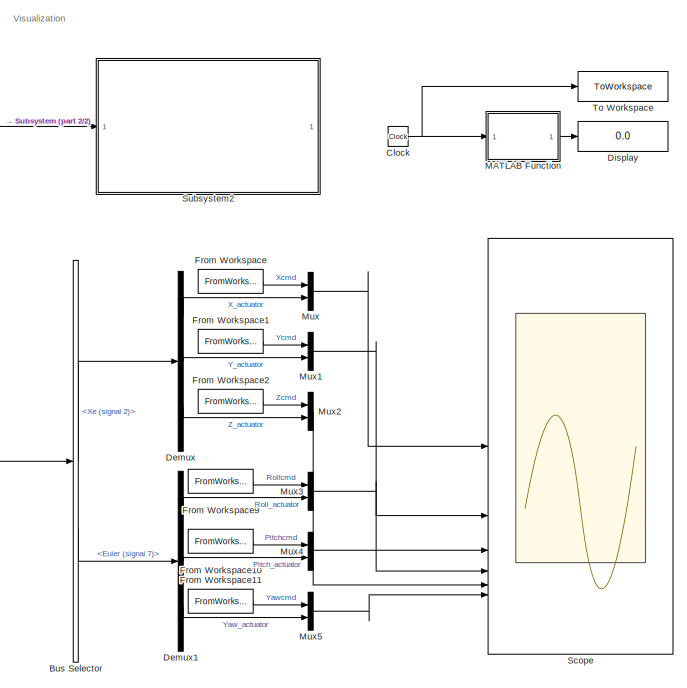
[diagram: root canvas - part 1/2, right side, full height]
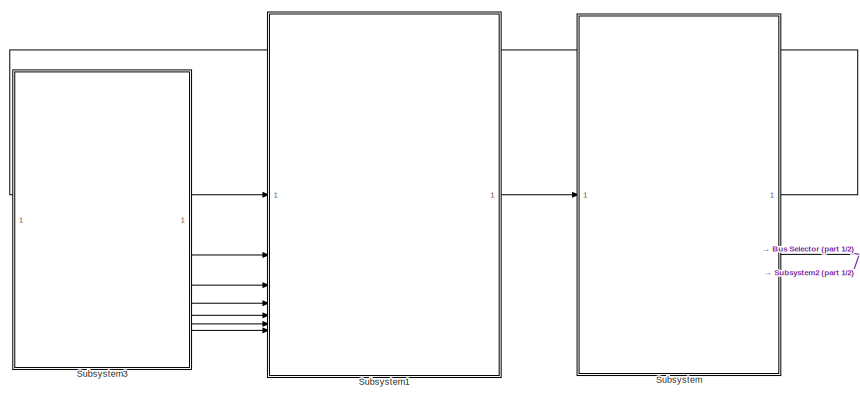
[diagram: root canvas - part 2/2, middle left region]
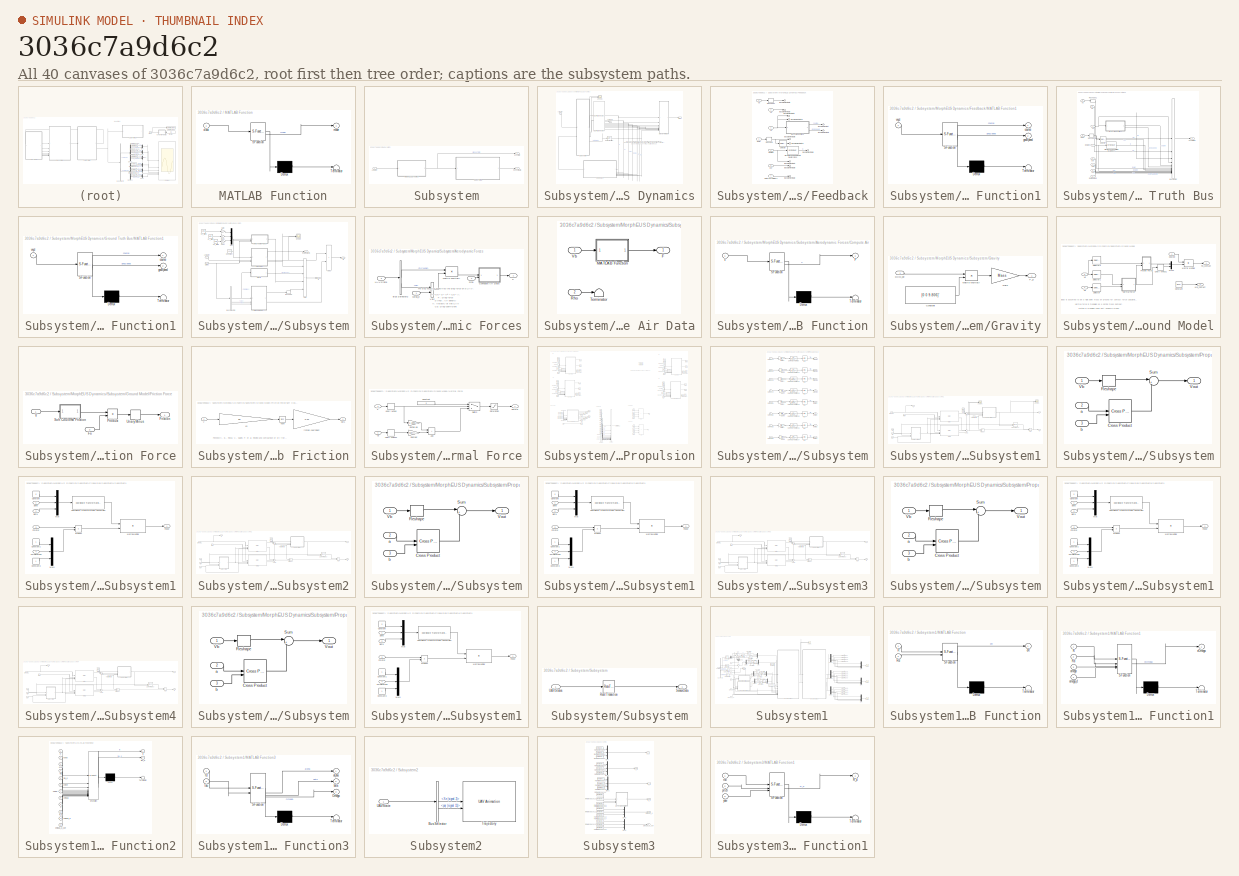
[diagram: thumbnail index - all 40 canvases of the model, root first then tree order]
MODEL slx_3036c7a9d6c2
KIND model
CONFIG AbsTol = auto
CONFIG EnableMultiTasking = off
CONFIG FixedStep = auto
CONFIG MaxStep = auto
CONFIG MinStep = auto
CONFIG RelTol = 1e-3
CONFIG SampleTimeConstraint = Unconstrained
CONFIG SolverName = VariableStepAuto
CONFIG StartTime = 0.0
CONFIG StopTime = Tfinal
BLOCK [BusSelector] Bus Selector
  OutputSignals = Xe (signal 2),Euler (signal 7)
BLOCK [Clock] Clock
BLOCK [Demux] Demux
  Outputs = 3
BLOCK [Demux] Demux1
  Outputs = 3
BLOCK [Display] Display
  Decimation = 1
BLOCK [FromWorkspace] From Workspace
  VariableName = Xcmd
BLOCK [FromWorkspace] From Workspace1
  VariableName = Ycmd
BLOCK [FromWorkspace] From Workspace10
  VariableName = pitchcmd
BLOCK [FromWorkspace] From Workspace11
  VariableName = yawcmd
BLOCK [FromWorkspace] From Workspace2
  VariableName = Zcmd
BLOCK [FromWorkspace] From Workspace9
  VariableName = rollcmd
BLOCK [SubSystem] MATLAB Function
  ErrorFcn = Stateflow.Translate.translate
  PermitHierarchicalResolution = ExplicitOnly
  SFBlockType = MATLAB Function
  TreatAsAtomicUnit = on
BLOCK [Demux] MATLAB Function/ Demux 
  Outputs = 1
BLOCK [S-Function] MATLAB Function/ SFunction 
  EnableBusSupport = off
  FunctionName = sf_sfun
  PortCounts = [1 2]
  SFcnIsStateOwnerBlock = off
  SFunctionDeploymentMode = off
  Tag = Stateflow S-Function 8
BLOCK [Terminator] MATLAB Function/ Terminator 
BLOCK [Inport] MATLAB Function/clock
BLOCK [Outport] MATLAB Function/mode
BLOCK [Mux] Mux
  DisplayOption = bar
  Inputs = 2
BLOCK [Mux] Mux1
  DisplayOption = bar
  Inputs = 2
BLOCK [Mux] Mux2
  DisplayOption = bar
  Inputs = 2
BLOCK [Mux] Mux3
  DisplayOption = bar
  Inputs = 2
BLOCK [Mux] Mux4
  DisplayOption = bar
  Inputs = 2
BLOCK [Mux] Mux5
  DisplayOption = bar
  Inputs = 2
BLOCK [Scope] Scope
  ActiveDisplayString = 6
  ActiveDisplayYMaximum = 3.9267942649879166
  ActiveDisplayYMinimum = -3.9263493767728805
  ContainerLayout = {"WindowBounds":[-8,-8,1936,1048],"gridDimensions":{"w":1,"h":1},"tileCount":1,"tileCoverage":1,"columnWeights":1,"rowWeights":1,"tileOccupancy":{"children":[{"id":"/Scope"},{"id":"/Subsystem1/Scope"},{"id":"/Subsystem1/Scope1"},{"id":"/Subsystem1/Scope2"}]}}  <repeated x4 — deduplicated; at blocks: Scope, Scope1, Scope2>
  Floating = off
  GraphicalSettings = {"Style":{"BackgroundColor":[1,1,1],"AxesColor":[1,1,1],"LabelsColor":[0,0,0],"PreserveColors":false,"Visible":[true,true,true,true,true,true,true,true,true,true,true,true],"LineStyle":["-","-","-","-","-","-","-","-","-","-","-","-"],"LineWidth":[2,2,2,1.5,2,2,2,2,2,2,2,1.5],"BarWidth":[0.9,0.9,0.9,0.9,0.9,0.9,0.9,0.9,0.9,0.9,0.9,0.9],"LineColor":[[1,0,0],"auto",[1,0,0],"auto",[1,0,0],"auto",[1,0...<+4496ch>
  LayoutDimensionsString = [3 2]
  MultipleDisplayCache = [{"MaxYLimMag":2.4999790094298571,"MaxYLimReal":2.4998681571143537,"MinYLimMag":0,"MinYLimReal":-2.4999790094298571,"PlotAsMagnitudePhase":false,"ShowGrid":true,"ShowLegend":true,"Title":"State X","YLabel":"X(m)"},{"MaxYLimMag":4.50040217144426,"MaxYLimReal":4.50040217144426,"MinYLimMag":0,"MinYLimReal":-0.50432637357149857,"PlotAsMagnitudePhase":false,"ShowGrid":true,"ShowLegend":true,"Title":"St...<+900ch>
  NumInputPorts = 6
  ScopeFrameLocation = container
  ShowLegend = on
  ShowTimeAxisLabel = on
  Title = State Yaw
  Visible = on
  WasSavedAsWebScope = on
  WindowPosition = [1.000000,49.000000,1920.000000,1009.000000,]
  YLabel = Yaw(rad)
BLOCK [SubSystem] Subsystem
BLOCK [Inport] Subsystem/Actuator
BLOCK [SubSystem] Subsystem/MorphEUS Dynamics
BLOCK [Reference] Subsystem/MorphEUS Dynamics/6DOF (Euler Angles)  REF=aerolibobsolete/6DOF (Euler Angles)
  SourceBlock = aerolibobsolete/6DOF (Euler Angles)
  SourceType = 6DOF EoM (Body Axis)
BLOCK [Inport] Subsystem/MorphEUS Dynamics/Actuator
BLOCK [SubSystem] Subsystem/MorphEUS Dynamics/Feedback
BLOCK [Outport] Subsystem/MorphEUS Dynamics/Feedback/Bus Element Out
BLOCK [Outport] Subsystem/MorphEUS Dynamics/Feedback/Bus Element Out1
BLOCK [Outport] Subsystem/MorphEUS Dynamics/Feedback/Bus Element Out13
BLOCK [Outport] Subsystem/MorphEUS Dynamics/Feedback/Bus Element Out14
BLOCK [Outport] Subsystem/MorphEUS Dynamics/Feedback/Bus Element Out2
BLOCK [Outport] Subsystem/MorphEUS Dynamics/Feedback/Bus Element Out3
BLOCK [Outport] Subsystem/MorphEUS Dynamics/Feedback/Bus Element Out4
BLOCK [Outport] Subsystem/MorphEUS Dynamics/Feedback/Bus Element Out5
BLOCK [Outport] Subsystem/MorphEUS Dynamics/Feedback/Bus Element Out6
BLOCK [Outport] Subsystem/MorphEUS Dynamics/Feedback/Bus Element Out7
BLOCK [Outport] Subsystem/MorphEUS Dynamics/Feedback/Bus Element Out8
BLOCK [Outport] Subsystem/MorphEUS Dynamics/Feedback/Bus Element Out9
BLOCK [Inport] Subsystem/MorphEUS Dynamics/Feedback/DCMbe
  Port = 4
BLOCK [Dcm2Quat] Subsystem/MorphEUS Dynamics/Feedback/Direction Cosine Matrix to Quaternions
BLOCK [Inport] Subsystem/MorphEUS Dynamics/Feedback/Euler
  Port = 3
BLOCK [SubSystem] Subsystem/MorphEUS Dynamics/Feedback/MATLAB Function1
  ErrorFcn = Stateflow.Translate.translate
  PermitHierarchicalResolution = ExplicitOnly
  SFBlockType = MATLAB Function
  TreatAsAtomicUnit = on
BLOCK [Demux] Subsystem/MorphEUS Dynamics/Feedback/MATLAB Function1/ Demux 
  Outputs = 1
BLOCK [S-Function] Subsystem/MorphEUS Dynamics/Feedback/MATLAB Function1/ SFunction 
  EnableBusSupport = off
  FunctionName = sf_sfun
  PortCounts = [1 3]
  SFcnIsStateOwnerBlock = off
  SFunctionDeploymentMode = off
  Tag = Stateflow S-Function 1
BLOCK [Terminator] Subsystem/MorphEUS Dynamics/Feedback/MATLAB Function1/ Terminator 
BLOCK [Outport] Subsystem/MorphEUS Dynamics/Feedback/MATLAB Function1/course
BLOCK [Outport] Subsystem/MorphEUS Dynamics/Feedback/MATLAB Function1/gndSpeed
  Port = 2
BLOCK [Inport] Subsystem/MorphEUS Dynamics/Feedback/MATLAB Function1/vxyz
BLOCK [Reshape] Subsystem/MorphEUS Dynamics/Feedback/Reshape
  OutputDimensionality = Column vector (2-D)
BLOCK [Reshape] Subsystem/MorphEUS Dynamics/Feedback/Reshape1
  OutputDimensionality = Row vector (2-D)
BLOCK [Inport] Subsystem/MorphEUS Dynamics/Feedback/RotorParameters
  Port = 7
BLOCK [Selector] Subsystem/MorphEUS Dynamics/Feedback/Selector
  IndexOptions = Index vector (dialog)
  Indices = [3 2 1]
  InputPortWidth = 3
  OutputSizes = 1
BLOCK [Inport] Subsystem/MorphEUS Dynamics/Feedback/Vb
  Port = 5
BLOCK [Inport] Subsystem/MorphEUS Dynamics/Feedback/Ve
BLOCK [Inport] Subsystem/MorphEUS Dynamics/Feedback/Xe
  Port = 2
BLOCK [Inport] Subsystem/MorphEUS Dynamics/Feedback/pqr
  Port = 6
BLOCK [SubSystem] Subsystem/MorphEUS Dynamics/Ground Truth Bus
BLOCK [Inport] Subsystem/MorphEUS Dynamics/Ground Truth Bus/Abb
  Port = 7
BLOCK [Inport] Subsystem/MorphEUS Dynamics/Ground Truth Bus/Abe
  Port = 8
BLOCK [BusCreator] Subsystem/MorphEUS Dynamics/Ground Truth Bus/Bus Creator
  DisplayOption = bar
  InheritFromInputs = on
  Inputs = 14
BLOCK [Inport] Subsystem/MorphEUS Dynamics/Ground Truth Bus/DCMbe
  Port = 4
BLOCK [Dcm2Quat] Subsystem/MorphEUS Dynamics/Ground Truth Bus/Direction Cosine Matrix to Quaternions
BLOCK [Inport] Subsystem/MorphEUS Dynamics/Ground Truth Bus/Euler
  Port = 3
BLOCK [SubSystem] Subsystem/MorphEUS Dynamics/Ground Truth Bus/MATLAB Function1
  ErrorFcn = Stateflow.Translate.translate
  PermitHierarchicalResolution = ExplicitOnly
  SFBlockType = MATLAB Function
  TreatAsAtomicUnit = on
BLOCK [Demux] Subsystem/MorphEUS Dynamics/Ground Truth Bus/MATLAB Function1/ Demux 
  Outputs = 1
BLOCK [S-Function] Subsystem/MorphEUS Dynamics/Ground Truth Bus/MATLAB Function1/ SFunction 
  EnableBusSupport = off
  FunctionName = sf_sfun
  PortCounts = [1 3]
  SFcnIsStateOwnerBlock = off
  SFunctionDeploymentMode = off
  Tag = Stateflow S-Function 3
BLOCK [Terminator] Subsystem/MorphEUS Dynamics/Ground Truth Bus/MATLAB Function1/ Terminator 
BLOCK [Outport] Subsystem/MorphEUS Dynamics/Ground Truth Bus/MATLAB Function1/course
BLOCK [Outport] Subsystem/MorphEUS Dynamics/Ground Truth Bus/MATLAB Function1/gndSpeed
  Port = 2
BLOCK [Inport] Subsystem/MorphEUS Dynamics/Ground Truth Bus/MATLAB Function1/vxyz
BLOCK [Reshape] Subsystem/MorphEUS Dynamics/Ground Truth Bus/Reshape
  OutputDimensionality = Column vector (2-D)
BLOCK [Reshape] Subsystem/MorphEUS Dynamics/Ground Truth Bus/Reshape1
  OutputDimensionality = Row vector (2-D)
BLOCK [Inport] Subsystem/MorphEUS Dynamics/Ground Truth Bus/RotorParams
  Port = 9
BLOCK [Selector] Subsystem/MorphEUS Dynamics/Ground Truth Bus/Selector
  IndexOptions = Index vector (dialog)
  Indices = [3 2 1]
  InputPortWidth = 3
  OutputSizes = 1
BLOCK [Outport] Subsystem/MorphEUS Dynamics/Ground Truth Bus/UAV States
BLOCK [Inport] Subsystem/MorphEUS Dynamics/Ground Truth Bus/Vb
  Port = 5
BLOCK [Inport] Subsystem/MorphEUS Dynamics/Ground Truth Bus/Ve
BLOCK [Inport] Subsystem/MorphEUS Dynamics/Ground Truth Bus/Xe
  Port = 2
BLOCK [Inport] Subsystem/MorphEUS Dynamics/Ground Truth Bus/pqr
  Port = 6
BLOCK [RateTransition] Subsystem/MorphEUS Dynamics/Rate Transition
  OutPortSampleTime = tss
BLOCK [Scope] Subsystem/MorphEUS Dynamics/Scope3
  ActiveDisplayYMaximum = 56.313042282221495
  ActiveDisplayYMinimum = -22.322186564104424
  DataLoggingVariableName = ScopeData5
  Floating = off
  GraphicalSettings = {"Style":{"BackgroundColor":[0.12941176470588237,0.12941176470588237,0.12941176470588237],"AxesColor":[0.07058823529411765,0.07058823529411765,0.07058823529411765],"LabelsColor":[0.8509803921568627,0.8509803921568627,0.8509803921568627],"PreserveColors":false,"Visible":[true,true,true,true,true,true],"LineStyle":["-","-","-","-","-","-"],"LineWidth":[1.5,1.5,1.5,1.5,1.5,1.5],"BarWidth":[0.9,0.9,0....<+2962ch>
  LayoutDimensionsString = [2,1]
  MultipleDisplayCache = [{"MaxYLimMag":56.313042282221495,"MaxYLimReal":56.313042282221495,"MinYLimMag":0,"MinYLimReal":-22.322186564104424,"PlotAsMagnitudePhase":false,"ShowGrid":true,"ShowLegend":false,"Title":"%<SignalLabel>","YLabel":""},{"MaxYLimMag":0.7651287570324663,"MaxYLimReal":0.7651287570324663,"MinYLimMag":0,"MinYLimReal":-0.15756800250020014,"PlotAsMagnitudePhase":false,"ShowGrid":true,"ShowLegend":false,"T...<+36ch>
  NumInputPorts = 2
  ScopeFrameLocation = window
  WasSavedAsWebScope = on
  WindowPosition = [680.000000,330.000000,560.000000,420.000000,]
BLOCK [Outport] Subsystem/MorphEUS Dynamics/States
BLOCK [SubSystem] Subsystem/MorphEUS Dynamics/Subsystem
BLOCK [Inport] Subsystem/MorphEUS Dynamics/Subsystem/Actuator
BLOCK [Sum] Subsystem/MorphEUS Dynamics/Subsystem/Add
  IconShape = rectangular
  Inputs = ++++
BLOCK [Sum] Subsystem/MorphEUS Dynamics/Subsystem/Add1
  IconShape = rectangular
BLOCK [SubSystem] Subsystem/MorphEUS Dynamics/Subsystem/Aerodynamic Forces
BLOCK [BusSelector] Subsystem/MorphEUS Dynamics/Subsystem/Aerodynamic Forces/Bus Selector2
  OutputSignals = DCMbe,Ve
BLOCK [SubSystem] Subsystem/MorphEUS Dynamics/Subsystem/Aerodynamic Forces/Compute Air Data
  TreatAsAtomicUnit = on
  VariantControl = use_aerospace_blocks == 1
BLOCK [Outport] Subsystem/MorphEUS Dynamics/Subsystem/Aerodynamic Forces/Compute Air Data/F
BLOCK [SubSystem] Subsystem/MorphEUS Dynamics/Subsystem/Aerodynamic Forces/Compute Air Data/MATLAB Function
  ErrorFcn = Stateflow.Translate.translate
  PermitHierarchicalResolution = ExplicitOnly
  SFBlockType = MATLAB Function
  TreatAsAtomicUnit = on
BLOCK [Demux] Subsystem/MorphEUS Dynamics/Subsystem/Aerodynamic Forces/Compute Air Data/MATLAB Function/ Demux 
  Outputs = 1
BLOCK [S-Function] Subsystem/MorphEUS Dynamics/Subsystem/Aerodynamic Forces/Compute Air Data/MATLAB Function/ SFunction 
  EnableBusSupport = off
  FunctionName = sf_sfun
  PortCounts = [1 2]
  SFcnIsStateOwnerBlock = off
  SFunctionDeploymentMode = off
  Tag = Stateflow S-Function 2
BLOCK [Terminator] Subsystem/MorphEUS Dynamics/Subsystem/Aerodynamic Forces/Compute Air Data/MATLAB Function/ Terminator 
BLOCK [Outport] Subsystem/MorphEUS Dynamics/Subsystem/Aerodynamic Forces/Compute Air Data/MATLAB Function/F
BLOCK [Inport] Subsystem/MorphEUS Dynamics/Subsystem/Aerodynamic Forces/Compute Air Data/MATLAB Function/v
BLOCK [Inport] Subsystem/MorphEUS Dynamics/Subsystem/Aerodynamic Forces/Compute Air Data/Rho
  Port = 2
BLOCK [Terminator] Subsystem/MorphEUS Dynamics/Subsystem/Aerodynamic Forces/Compute Air Data/Terminator
BLOCK [Inport] Subsystem/MorphEUS Dynamics/Subsystem/Aerodynamic Forces/Compute Air Data/Vb
  PortDimensions = 3
  VarSizeSig = No
BLOCK [Outport] Subsystem/MorphEUS Dynamics/Subsystem/Aerodynamic Forces/F
BLOCK [Product] Subsystem/MorphEUS Dynamics/Subsystem/Aerodynamic Forces/Matrix Multiply
  Multiplication = Matrix(*)
BLOCK [Inport] Subsystem/MorphEUS Dynamics/Subsystem/Aerodynamic Forces/Rho
  Port = 2
BLOCK [Inport] Subsystem/MorphEUS Dynamics/Subsystem/Aerodynamic Forces/UAVState
  Port = 3
BLOCK [Sum] Subsystem/MorphEUS Dynamics/Subsystem/Aerodynamic Forces/Vair
  IconShape = rectangular
  InputSameDT = on
  Inputs = +-
  OutDataTypeStr = Inherit: Same as first input
  SaturateOnIntegerOverflow = on
BLOCK [Inport] Subsystem/MorphEUS Dynamics/Subsystem/Aerodynamic Forces/Wind_e
BLOCK [BusSelector] Subsystem/MorphEUS Dynamics/Subsystem/Bus Selector1
  OutputSignals = DCMbe,Xe,Ve
BLOCK [Constant] Subsystem/MorphEUS Dynamics/Subsystem/Constant
  Value = 1.225
BLOCK [Outport] Subsystem/MorphEUS Dynamics/Subsystem/F
BLOCK [Gain] Subsystem/MorphEUS Dynamics/Subsystem/Gain
  Gain = 0
BLOCK [Gain] Subsystem/MorphEUS Dynamics/Subsystem/Gain1
  Gain = 0
BLOCK [Gain] Subsystem/MorphEUS Dynamics/Subsystem/Gain2
  Gain = 0
BLOCK [SubSystem] Subsystem/MorphEUS Dynamics/Subsystem/Gravity
BLOCK [Constant] Subsystem/MorphEUS Dynamics/Subsystem/Gravity/Constant
  Value = [0 0 9.806]'
BLOCK [Inport] Subsystem/MorphEUS Dynamics/Subsystem/Gravity/DCM_be
BLOCK [Outport] Subsystem/MorphEUS Dynamics/Subsystem/Gravity/F_g
BLOCK [Gain] Subsystem/MorphEUS Dynamics/Subsystem/Gravity/Gain
  Gain = Mass
BLOCK [Product] Subsystem/MorphEUS Dynamics/Subsystem/Gravity/Matrix Multiply
  Multiplication = Matrix(*)
BLOCK [SubSystem] Subsystem/MorphEUS Dynamics/Subsystem/Ground Model
  VariantControl = Groundon==1
BLOCK [Constant] Subsystem/MorphEUS Dynamics/Subsystem/Ground Model/Constant
  SampleTime = -1
  Value = [0 0 0]
BLOCK [Inport] Subsystem/MorphEUS Dynamics/Subsystem/Ground Model/DCMbe
BLOCK [Outport] Subsystem/MorphEUS Dynamics/Subsystem/Ground Model/Fb_contact
BLOCK [SubSystem] Subsystem/MorphEUS Dynamics/Subsystem/Ground Model/Friction Force
BLOCK [Inport] Subsystem/MorphEUS Dynamics/Subsystem/Ground Model/Friction Force/Fn
  Port = 2
BLOCK [Outport] Subsystem/MorphEUS Dynamics/Subsystem/Ground Model/Friction Force/Friction
BLOCK [Product] Subsystem/MorphEUS Dynamics/Subsystem/Ground Model/Friction Force/Product
BLOCK [SubSystem] Subsystem/MorphEUS Dynamics/Subsystem/Ground Model/Friction Force/Soft Coulomb Friction
BLOCK [Outport] Subsystem/MorphEUS Dynamics/Subsystem/Ground Model/Friction Force/Soft Coulomb Friction/Out1
BLOCK [Trigonometry] Subsystem/MorphEUS Dynamics/Subsystem/Ground Model/Friction Force/Soft Coulomb Friction/Tanh
  Operator = tanh
BLOCK [Inport] Subsystem/MorphEUS Dynamics/Subsystem/Ground Model/Friction Force/Soft Coulomb Friction/V
BLOCK [Gain] Subsystem/MorphEUS Dynamics/Subsystem/Ground Model/Friction Force/Soft Coulomb Friction/friction coefficient
  Gain = 0.24
BLOCK [Gain] Subsystem/MorphEUS Dynamics/Subsystem/Ground Model/Friction Force/Soft Coulomb Friction/vd
  Gain = 50
BLOCK [UnaryMinus] Subsystem/MorphEUS Dynamics/Subsystem/Ground Model/Friction Force/Unary Minus
BLOCK [Inport] Subsystem/MorphEUS Dynamics/Subsystem/Ground Model/Friction Force/V
BLOCK [Product] Subsystem/MorphEUS Dynamics/Subsystem/Ground Model/Matrix Multiply
  Multiplication = Matrix(*)
BLOCK [Outport] Subsystem/MorphEUS Dynamics/Subsystem/Ground Model/Mb_contact
  Port = 2
BLOCK [Mux] Subsystem/MorphEUS Dynamics/Subsystem/Ground Model/Mux1
  DisplayOption = bar
  Inputs = 2
BLOCK [SubSystem] Subsystem/MorphEUS Dynamics/Subsystem/Ground Model/Normal Force
BLOCK [Sum] Subsystem/MorphEUS Dynamics/Subsystem/Ground Model/Normal Force/Add
  IconShape = rectangular
BLOCK [Constant] Subsystem/MorphEUS Dynamics/Subsystem/Ground Model/Normal Force/Constant
  SampleTime = -1
  Value = 0
BLOCK [Gain] Subsystem/MorphEUS Dynamics/Subsystem/Ground Model/Normal Force/Damper
  Gain = -sqrt((1.2893e+05)*Mass)
BLOCK [Outport] Subsystem/MorphEUS Dynamics/Subsystem/Ground Model/Normal Force/Normal
BLOCK [Saturate] Subsystem/MorphEUS Dynamics/Subsystem/Ground Model/Normal Force/Saturation
  LowerLimit = 0
  UpperLimit = inf
  ZeroCross = off
BLOCK [Gain] Subsystem/MorphEUS Dynamics/Subsystem/Ground Model/Normal Force/Spring Kp
  Gain = -1.2893e+05
BLOCK [Switch] Subsystem/MorphEUS Dynamics/Subsystem/Ground Model/Normal Force/Switch
  Criteria = u2 > Threshold
  InputSameDT = off
  SaturateOnIntegerOverflow = off
BLOCK [UnaryMinus] Subsystem/MorphEUS Dynamics/Subsystem/Ground Model/Normal Force/Unary Minus
BLOCK [UnaryMinus] Subsystem/MorphEUS Dynamics/Subsystem/Ground Model/Normal Force/Unary Minus1
BLOCK [Inport] Subsystem/MorphEUS Dynamics/Subsystem/Ground Model/Normal Force/Vz
BLOCK [Inport] Subsystem/MorphEUS Dynamics/Subsystem/Ground Model/Normal Force/Z
  Port = 2
BLOCK [Selector] Subsystem/MorphEUS Dynamics/Subsystem/Ground Model/Selector
  IndexOptions = Index vector (dialog)
  Indices = [3]
  InputPortWidth = 3
  OutputSizes = 1
BLOCK [Selector] Subsystem/MorphEUS Dynamics/Subsystem/Ground Model/Selector1
  IndexOptions = Index vector (dialog)
  Indices = [3]
  InputPortWidth = 3
  OutputSizes = 1
BLOCK [Selector] Subsystem/MorphEUS Dynamics/Subsystem/Ground Model/Selector2
  IndexOptions = Index vector (dialog)
  Indices = [1,2]
  InputPortWidth = 3
  OutputSizes = 1
BLOCK [UnaryMinus] Subsystem/MorphEUS Dynamics/Subsystem/Ground Model/Unary Minus1
BLOCK [Inport] Subsystem/MorphEUS Dynamics/Subsystem/Ground Model/Ve
  Port = 3
BLOCK [Inport] Subsystem/MorphEUS Dynamics/Subsystem/Ground Model/Xe
  Port = 2
BLOCK [Outport] Subsystem/MorphEUS Dynamics/Subsystem/M
  Port = 2
BLOCK [Mux] Subsystem/MorphEUS Dynamics/Subsystem/Mux
  DisplayOption = bar
  Inputs = 3
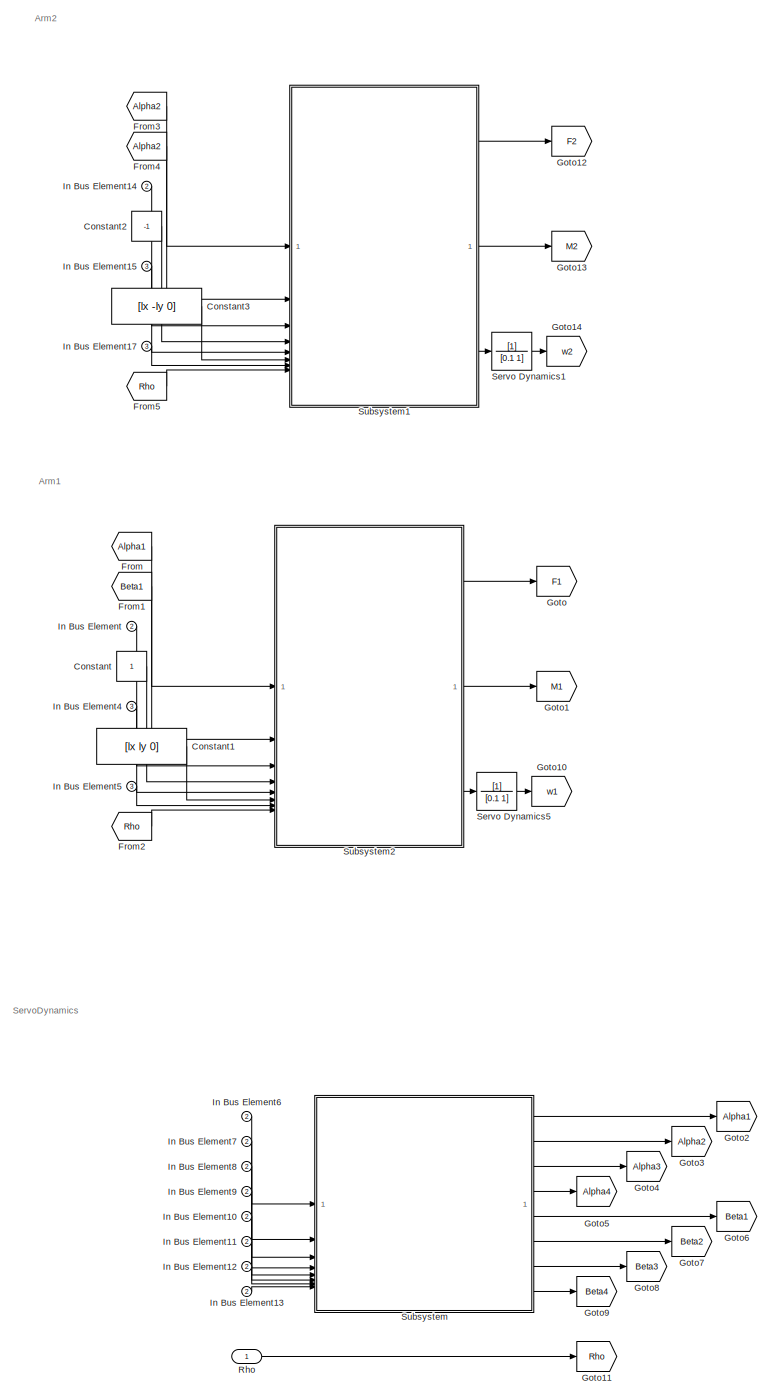
[diagram: Subsystem/MorphEUS Dynamics/Subsystem/Propulsion - part 1/3, left side, full height]
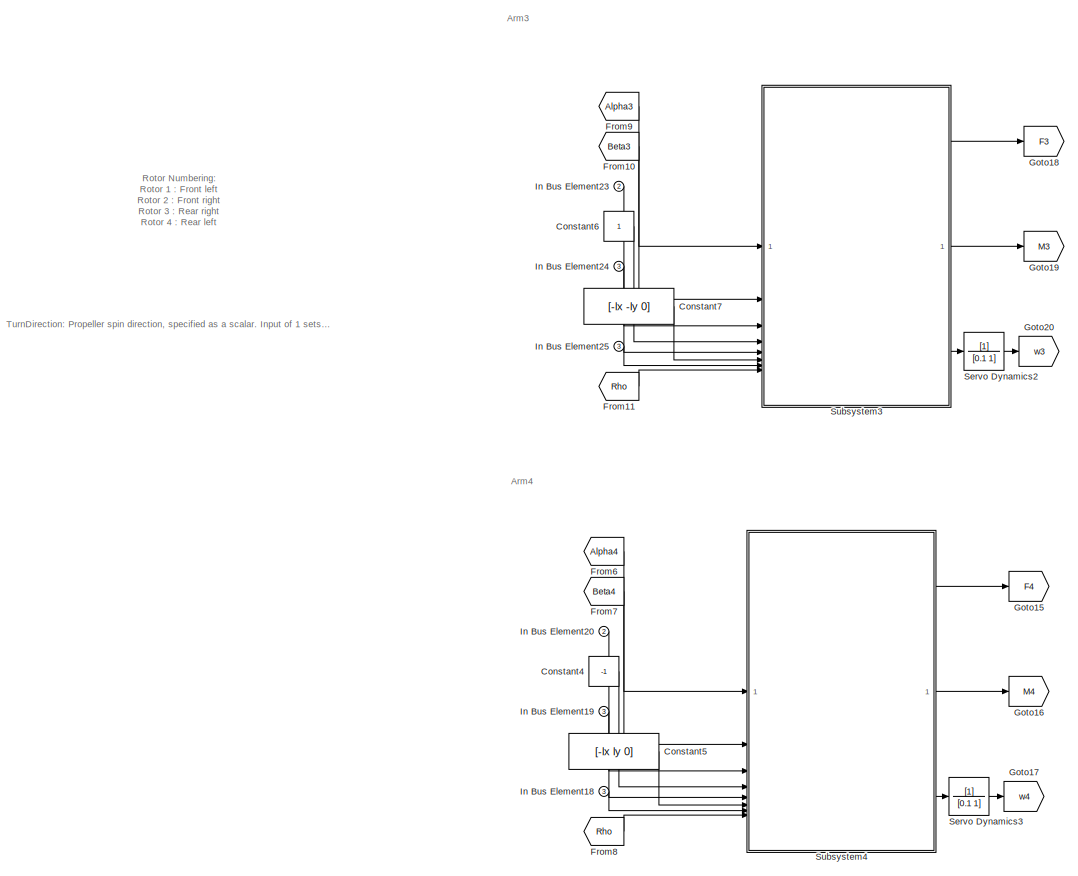
[diagram: Subsystem/MorphEUS Dynamics/Subsystem/Propulsion - part 2/3, top right region]
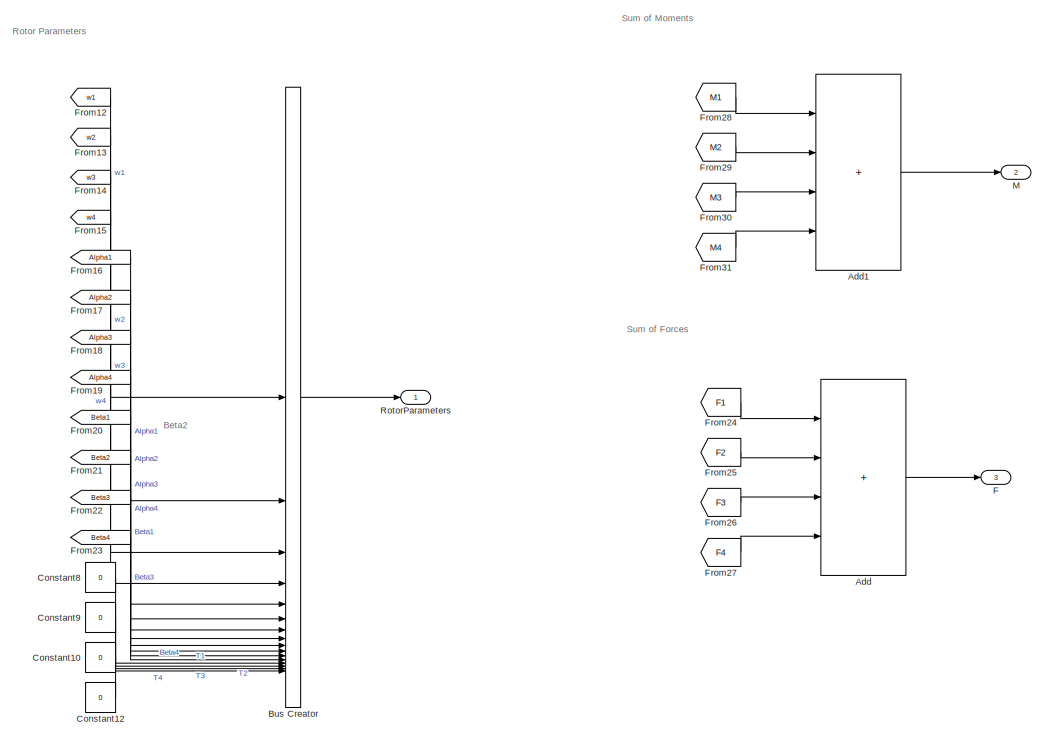
[diagram: Subsystem/MorphEUS Dynamics/Subsystem/Propulsion - part 3/3, bottom center region]
BLOCK [SubSystem] Subsystem/MorphEUS Dynamics/Subsystem/Propulsion
BLOCK [Sum] Subsystem/MorphEUS Dynamics/Subsystem/Propulsion/Add
  IconShape = rectangular
  Inputs = ++++
BLOCK [Sum] Subsystem/MorphEUS Dynamics/Subsystem/Propulsion/Add1
  IconShape = rectangular
  Inputs = ++++
BLOCK [BusCreator] Subsystem/MorphEUS Dynamics/Subsystem/Propulsion/Bus Creator
  DisplayOption = bar
  InheritFromInputs = on
  Inputs = 16
BLOCK [Constant] Subsystem/MorphEUS Dynamics/Subsystem/Propulsion/Constant
BLOCK [Constant] Subsystem/MorphEUS Dynamics/Subsystem/Propulsion/Constant1
  Value = [lx ly 0]
BLOCK [Constant] Subsystem/MorphEUS Dynamics/Subsystem/Propulsion/Constant10
  Value = 0
BLOCK [Constant] Subsystem/MorphEUS Dynamics/Subsystem/Propulsion/Constant12
  Value = 0
BLOCK [Constant] Subsystem/MorphEUS Dynamics/Subsystem/Propulsion/Constant2
  Value = -1
BLOCK [Constant] Subsystem/MorphEUS Dynamics/Subsystem/Propulsion/Constant3
  Value = [lx -ly 0]
BLOCK [Constant] Subsystem/MorphEUS Dynamics/Subsystem/Propulsion/Constant4
  Value = -1
BLOCK [Constant] Subsystem/MorphEUS Dynamics/Subsystem/Propulsion/Constant5
  Value = [-lx ly 0]
BLOCK [Constant] Subsystem/MorphEUS Dynamics/Subsystem/Propulsion/Constant6
BLOCK [Constant] Subsystem/MorphEUS Dynamics/Subsystem/Propulsion/Constant7
  Value = [-lx -ly 0]
BLOCK [Constant] Subsystem/MorphEUS Dynamics/Subsystem/Propulsion/Constant8
  Value = 0
BLOCK [Constant] Subsystem/MorphEUS Dynamics/Subsystem/Propulsion/Constant9
  Value = 0
BLOCK [Outport] Subsystem/MorphEUS Dynamics/Subsystem/Propulsion/F
  Port = 3
BLOCK [From] Subsystem/MorphEUS Dynamics/Subsystem/Propulsion/From
  GotoTag = Alpha1
BLOCK [From] Subsystem/MorphEUS Dynamics/Subsystem/Propulsion/From1
  GotoTag = Beta1
BLOCK [From] Subsystem/MorphEUS Dynamics/Subsystem/Propulsion/From10
  GotoTag = Beta3
BLOCK [From] Subsystem/MorphEUS Dynamics/Subsystem/Propulsion/From11
  GotoTag = Rho
BLOCK [From] Subsystem/MorphEUS Dynamics/Subsystem/Propulsion/From12
  GotoTag = w1
BLOCK [From] Subsystem/MorphEUS Dynamics/Subsystem/Propulsion/From13
  GotoTag = w2
BLOCK [From] Subsystem/MorphEUS Dynamics/Subsystem/Propulsion/From14
  GotoTag = w3
BLOCK [From] Subsystem/MorphEUS Dynamics/Subsystem/Propulsion/From15
  GotoTag = w4
BLOCK [From] Subsystem/MorphEUS Dynamics/Subsystem/Propulsion/From16
  GotoTag = Alpha1
BLOCK [From] Subsystem/MorphEUS Dynamics/Subsystem/Propulsion/From17
  GotoTag = Alpha2
BLOCK [From] Subsystem/MorphEUS Dynamics/Subsystem/Propulsion/From18
  GotoTag = Alpha3
BLOCK [From] Subsystem/MorphEUS Dynamics/Subsystem/Propulsion/From19
  GotoTag = Alpha4
BLOCK [From] Subsystem/MorphEUS Dynamics/Subsystem/Propulsion/From2
  GotoTag = Rho
BLOCK [From] Subsystem/MorphEUS Dynamics/Subsystem/Propulsion/From20
  GotoTag = Beta1
BLOCK [From] Subsystem/MorphEUS Dynamics/Subsystem/Propulsion/From21
  GotoTag = Beta2
BLOCK [From] Subsystem/MorphEUS Dynamics/Subsystem/Propulsion/From22
  GotoTag = Beta3
BLOCK [From] Subsystem/MorphEUS Dynamics/Subsystem/Propulsion/From23
  GotoTag = Beta4
BLOCK [From] Subsystem/MorphEUS Dynamics/Subsystem/Propulsion/From24
  GotoTag = F1
BLOCK [From] Subsystem/MorphEUS Dynamics/Subsystem/Propulsion/From25
  GotoTag = F2
BLOCK [From] Subsystem/MorphEUS Dynamics/Subsystem/Propulsion/From26
  GotoTag = F3
BLOCK [From] Subsystem/MorphEUS Dynamics/Subsystem/Propulsion/From27
  GotoTag = F4
BLOCK [From] Subsystem/MorphEUS Dynamics/Subsystem/Propulsion/From28
  GotoTag = M1
BLOCK [From] Subsystem/MorphEUS Dynamics/Subsystem/Propulsion/From29
  GotoTag = M2
BLOCK [From] Subsystem/MorphEUS Dynamics/Subsystem/Propulsion/From3
  GotoTag = Alpha2
BLOCK [From] Subsystem/MorphEUS Dynamics/Subsystem/Propulsion/From30
  GotoTag = M3
BLOCK [From] Subsystem/MorphEUS Dynamics/Subsystem/Propulsion/From31
  GotoTag = M4
BLOCK [From] Subsystem/MorphEUS Dynamics/Subsystem/Propulsion/From4
  GotoTag = Alpha2
BLOCK [From] Subsystem/MorphEUS Dynamics/Subsystem/Propulsion/From5
  GotoTag = Rho
BLOCK [From] Subsystem/MorphEUS Dynamics/Subsystem/Propulsion/From6
  GotoTag = Alpha4
BLOCK [From] Subsystem/MorphEUS Dynamics/Subsystem/Propulsion/From7
  GotoTag = Beta4
BLOCK [From] Subsystem/MorphEUS Dynamics/Subsystem/Propulsion/From8
  GotoTag = Rho
BLOCK [From] Subsystem/MorphEUS Dynamics/Subsystem/Propulsion/From9
  GotoTag = Alpha3
BLOCK [Goto] Subsystem/MorphEUS Dynamics/Subsystem/Propulsion/Goto
  GotoTag = F1
BLOCK [Goto] Subsystem/MorphEUS Dynamics/Subsystem/Propulsion/Goto1
  GotoTag = M1
BLOCK [Goto] Subsystem/MorphEUS Dynamics/Subsystem/Propulsion/Goto10
  GotoTag = w1
BLOCK [Goto] Subsystem/MorphEUS Dynamics/Subsystem/Propulsion/Goto11
  GotoTag = Rho
BLOCK [Goto] Subsystem/MorphEUS Dynamics/Subsystem/Propulsion/Goto12
  GotoTag = F2
BLOCK [Goto] Subsystem/MorphEUS Dynamics/Subsystem/Propulsion/Goto13
  GotoTag = M2
BLOCK [Goto] Subsystem/MorphEUS Dynamics/Subsystem/Propulsion/Goto14
  GotoTag = w2
BLOCK [Goto] Subsystem/MorphEUS Dynamics/Subsystem/Propulsion/Goto15
  GotoTag = F4
BLOCK [Goto] Subsystem/MorphEUS Dynamics/Subsystem/Propulsion/Goto16
  GotoTag = M4
BLOCK [Goto] Subsystem/MorphEUS Dynamics/Subsystem/Propulsion/Goto17
  GotoTag = w4
BLOCK [Goto] Subsystem/MorphEUS Dynamics/Subsystem/Propulsion/Goto18
  GotoTag = F3
BLOCK [Goto] Subsystem/MorphEUS Dynamics/Subsystem/Propulsion/Goto19
  GotoTag = M3
BLOCK [Goto] Subsystem/MorphEUS Dynamics/Subsystem/Propulsion/Goto2
  GotoTag = Alpha1
BLOCK [Goto] Subsystem/MorphEUS Dynamics/Subsystem/Propulsion/Goto20
  GotoTag = w3
BLOCK [Goto] Subsystem/MorphEUS Dynamics/Subsystem/Propulsion/Goto3
  GotoTag = Alpha2
BLOCK [Goto] Subsystem/MorphEUS Dynamics/Subsystem/Propulsion/Goto4
  GotoTag = Alpha3
BLOCK [Goto] Subsystem/MorphEUS Dynamics/Subsystem/Propulsion/Goto5
  GotoTag = Alpha4
BLOCK [Goto] Subsystem/MorphEUS Dynamics/Subsystem/Propulsion/Goto6
  GotoTag = Beta1
BLOCK [Goto] Subsystem/MorphEUS Dynamics/Subsystem/Propulsion/Goto7
  GotoTag = Beta2
BLOCK [Goto] Subsystem/MorphEUS Dynamics/Subsystem/Propulsion/Goto8
  GotoTag = Beta3
BLOCK [Goto] Subsystem/MorphEUS Dynamics/Subsystem/Propulsion/Goto9
  GotoTag = Beta4
BLOCK [Inport] Subsystem/MorphEUS Dynamics/Subsystem/Propulsion/In Bus Element
  Port = 2
BLOCK [Inport] Subsystem/MorphEUS Dynamics/Subsystem/Propulsion/In Bus Element10
  Port = 2
BLOCK [Inport] Subsystem/MorphEUS Dynamics/Subsystem/Propulsion/In Bus Element11
  Port = 2
BLOCK [Inport] Subsystem/MorphEUS Dynamics/Subsystem/Propulsion/In Bus Element12
  Port = 2
BLOCK [Inport] Subsystem/MorphEUS Dynamics/Subsystem/Propulsion/In Bus Element13
  Port = 2
BLOCK [Inport] Subsystem/MorphEUS Dynamics/Subsystem/Propulsion/In Bus Element14
  Port = 2
BLOCK [Inport] Subsystem/MorphEUS Dynamics/Subsystem/Propulsion/In Bus Element15
  Port = 3
BLOCK [Inport] Subsystem/MorphEUS Dynamics/Subsystem/Propulsion/In Bus Element17
  Port = 3
BLOCK [Inport] Subsystem/MorphEUS Dynamics/Subsystem/Propulsion/In Bus Element18
  Port = 3
BLOCK [Inport] Subsystem/MorphEUS Dynamics/Subsystem/Propulsion/In Bus Element19
  Port = 3
BLOCK [Inport] Subsystem/MorphEUS Dynamics/Subsystem/Propulsion/In Bus Element20
  Port = 2
BLOCK [Inport] Subsystem/MorphEUS Dynamics/Subsystem/Propulsion/In Bus Element23
  Port = 2
BLOCK [Inport] Subsystem/MorphEUS Dynamics/Subsystem/Propulsion/In Bus Element24
  Port = 3
BLOCK [Inport] Subsystem/MorphEUS Dynamics/Subsystem/Propulsion/In Bus Element25
  Port = 3
BLOCK [Inport] Subsystem/MorphEUS Dynamics/Subsystem/Propulsion/In Bus Element4
  Port = 3
BLOCK [Inport] Subsystem/MorphEUS Dynamics/Subsystem/Propulsion/In Bus Element5
  Port = 3
BLOCK [Inport] Subsystem/MorphEUS Dynamics/Subsystem/Propulsion/In Bus Element6
  Port = 2
BLOCK [Inport] Subsystem/MorphEUS Dynamics/Subsystem/Propulsion/In Bus Element7
  Port = 2
BLOCK [Inport] Subsystem/MorphEUS Dynamics/Subsystem/Propulsion/In Bus Element8
  Port = 2
BLOCK [Inport] Subsystem/MorphEUS Dynamics/Subsystem/Propulsion/In Bus Element9
  Port = 2
BLOCK [Outport] Subsystem/MorphEUS Dynamics/Subsystem/Propulsion/M
  Port = 2
BLOCK [Inport] Subsystem/MorphEUS Dynamics/Subsystem/Propulsion/Rho
BLOCK [Outport] Subsystem/MorphEUS Dynamics/Subsystem/Propulsion/RotorParameters
BLOCK [TransferFcn] Subsystem/MorphEUS Dynamics/Subsystem/Propulsion/Servo Dynamics1
  Denominator = [0.1 1]
BLOCK [TransferFcn] Subsystem/MorphEUS Dynamics/Subsystem/Propulsion/Servo Dynamics2
  Denominator = [0.1 1]
BLOCK [TransferFcn] Subsystem/MorphEUS Dynamics/Subsystem/Propulsion/Servo Dynamics3
  Denominator = [0.1 1]
BLOCK [TransferFcn] Subsystem/MorphEUS Dynamics/Subsystem/Propulsion/Servo Dynamics5
  Denominator = [0.1 1]
BLOCK [SubSystem] Subsystem/MorphEUS Dynamics/Subsystem/Propulsion/Subsystem
BLOCK [Outport] Subsystem/MorphEUS Dynamics/Subsystem/Propulsion/Subsystem/Alpha1
BLOCK [Outport] Subsystem/MorphEUS Dynamics/Subsystem/Propulsion/Subsystem/Alpha2
  Port = 2
BLOCK [Outport] Subsystem/MorphEUS Dynamics/Subsystem/Propulsion/Subsystem/Alpha3
  Port = 3
BLOCK [Outport] Subsystem/MorphEUS Dynamics/Subsystem/Propulsion/Subsystem/Alpha4
  Port = 4
BLOCK [Outport] Subsystem/MorphEUS Dynamics/Subsystem/Propulsion/Subsystem/Beta1
  Port = 5
BLOCK [Outport] Subsystem/MorphEUS Dynamics/Subsystem/Propulsion/Subsystem/Beta2
  Port = 6
BLOCK [Outport] Subsystem/MorphEUS Dynamics/Subsystem/Propulsion/Subsystem/Beta3
  Port = 7
BLOCK [Outport] Subsystem/MorphEUS Dynamics/Subsystem/Propulsion/Subsystem/Beta4
  Port = 8
BLOCK [Gain] Subsystem/MorphEUS Dynamics/Subsystem/Propulsion/Subsystem/Gain1
  Gain = pi/2
BLOCK [Gain] Subsystem/MorphEUS Dynamics/Subsystem/Propulsion/Subsystem/Gain2
  Gain = pi/2
BLOCK [Gain] Subsystem/MorphEUS Dynamics/Subsystem/Propulsion/Subsystem/Gain3
  Gain = pi/2
BLOCK [Gain] Subsystem/MorphEUS Dynamics/Subsystem/Propulsion/Subsystem/Gain4
  Gain = pi/2
BLOCK [Gain] Subsystem/MorphEUS Dynamics/Subsystem/Propulsion/Subsystem/Gain5
  Gain = pi/2
BLOCK [Gain] Subsystem/MorphEUS Dynamics/Subsystem/Propulsion/Subsystem/Gain6
  Gain = pi/2
BLOCK [Gain] Subsystem/MorphEUS Dynamics/Subsystem/Propulsion/Subsystem/Gain7
  Gain = pi/2
BLOCK [Gain] Subsystem/MorphEUS Dynamics/Subsystem/Propulsion/Subsystem/Gain8
  Gain = pi/2
BLOCK [InitialCondition] Subsystem/MorphEUS Dynamics/Subsystem/Propulsion/Subsystem/IC
  Value = 0
BLOCK [InitialCondition] Subsystem/MorphEUS Dynamics/Subsystem/Propulsion/Subsystem/IC1
  Value = 0
BLOCK [InitialCondition] Subsystem/MorphEUS Dynamics/Subsystem/Propulsion/Subsystem/IC2
  Value = 0
BLOCK [InitialCondition] Subsystem/MorphEUS Dynamics/Subsystem/Propulsion/Subsystem/IC3
  Value = 0
BLOCK [InitialCondition] Subsystem/MorphEUS Dynamics/Subsystem/Propulsion/Subsystem/IC4
  Value = 0
BLOCK [InitialCondition] Subsystem/MorphEUS Dynamics/Subsystem/Propulsion/Subsystem/IC5
  Value = 0
BLOCK [InitialCondition] Subsystem/MorphEUS Dynamics/Subsystem/Propulsion/Subsystem/IC6
  Value = 0
BLOCK [InitialCondition] Subsystem/MorphEUS Dynamics/Subsystem/Propulsion/Subsystem/IC7
  Value = 0
BLOCK [TransferFcn] Subsystem/MorphEUS Dynamics/Subsystem/Propulsion/Subsystem/Servo Dynamics
  Denominator = [0.1 1]
BLOCK [TransferFcn] Subsystem/MorphEUS Dynamics/Subsystem/Propulsion/Subsystem/Servo Dynamics1
  Denominator = [0.1 1]
BLOCK [TransferFcn] Subsystem/MorphEUS Dynamics/Subsystem/Propulsion/Subsystem/Servo Dynamics2
  Denominator = [0.1 1]
BLOCK [TransferFcn] Subsystem/MorphEUS Dynamics/Subsystem/Propulsion/Subsystem/Servo Dynamics3
  Denominator = [0.1 1]
BLOCK [TransferFcn] Subsystem/MorphEUS Dynamics/Subsystem/Propulsion/Subsystem/Servo Dynamics4
  Denominator = [0.1 1]
BLOCK [TransferFcn] Subsystem/MorphEUS Dynamics/Subsystem/Propulsion/Subsystem/Servo Dynamics5
  Denominator = [0.1 1]
BLOCK [TransferFcn] Subsystem/MorphEUS Dynamics/Subsystem/Propulsion/Subsystem/Servo Dynamics6
  Denominator = [0.1 1]
BLOCK [TransferFcn] Subsystem/MorphEUS Dynamics/Subsystem/Propulsion/Subsystem/Servo Dynamics7
  Denominator = [0.1 1]
BLOCK [Inport] Subsystem/MorphEUS Dynamics/Subsystem/Propulsion/Subsystem/ServoA1
BLOCK [Inport] Subsystem/MorphEUS Dynamics/Subsystem/Propulsion/Subsystem/ServoA2
  Port = 2
BLOCK [Inport] Subsystem/MorphEUS Dynamics/Subsystem/Propulsion/Subsystem/ServoA3
  Port = 3
BLOCK [Inport] Subsystem/MorphEUS Dynamics/Subsystem/Propulsion/Subsystem/ServoA4
  Port = 4
BLOCK [Inport] Subsystem/MorphEUS Dynamics/Subsystem/Propulsion/Subsystem/ServoB1
  Port = 5
BLOCK [Inport] Subsystem/MorphEUS Dynamics/Subsystem/Propulsion/Subsystem/ServoB2
  Port = 6
BLOCK [Inport] Subsystem/MorphEUS Dynamics/Subsystem/Propulsion/Subsystem/ServoB3
  Port = 7
BLOCK [Inport] Subsystem/MorphEUS Dynamics/Subsystem/Propulsion/Subsystem/ServoB4
  Port = 8
BLOCK [SubSystem] Subsystem/MorphEUS Dynamics/Subsystem/Propulsion/Subsystem1
BLOCK [Sum] Subsystem/MorphEUS Dynamics/Subsystem/Propulsion/Subsystem1/Add
  IconShape = rectangular
BLOCK [Inport] Subsystem/MorphEUS Dynamics/Subsystem/Propulsion/Subsystem1/Alpha
BLOCK [Inport] Subsystem/MorphEUS Dynamics/Subsystem/Propulsion/Subsystem1/Arm
  Port = 6
BLOCK [Inport] Subsystem/MorphEUS Dynamics/Subsystem/Propulsion/Subsystem1/Beta 
  Port = 2
BLOCK [Reference] Subsystem/MorphEUS Dynamics/Subsystem/Propulsion/Subsystem1/Cross Product  REF=matrix_library/Cross Product
  LibrarySourceBlock = simulink/Matrix\nOperations/Cross Product
  SourceBlock = matrix_library/Cross Product
  SourceType = CrossProduct
BLOCK [Outport] Subsystem/MorphEUS Dynamics/Subsystem/Propulsion/Subsystem1/F
BLOCK [Outport] Subsystem/MorphEUS Dynamics/Subsystem/Propulsion/Subsystem1/M
  Port = 2
BLOCK [Inport] Subsystem/MorphEUS Dynamics/Subsystem/Propulsion/Subsystem1/Omega1
  Port = 3
BLOCK [Product] Subsystem/MorphEUS Dynamics/Subsystem/Propulsion/Subsystem1/Product
BLOCK [Inport] Subsystem/MorphEUS Dynamics/Subsystem/Propulsion/Subsystem1/Rho
  Port = 8
BLOCK [Rotor] Subsystem/MorphEUS Dynamics/Subsystem/Propulsion/Subsystem1/Rotor
  CQ = Cq
  CT = Ct
  Nb = 3
  modelMode = With flap effects
  radius = 0.1016
BLOCK [Rotor] Subsystem/MorphEUS Dynamics/Subsystem/Propulsion/Subsystem1/Rotor1
  CQ = Cq
  CT = Ct
  Nb = 3
  modelMode = With flap effects
  radius = 0.1016
BLOCK [Scope] Subsystem/MorphEUS Dynamics/Subsystem/Propulsion/Subsystem1/Scope1
  ActiveDisplayYMaximum = 441.60601467017381
  ActiveDisplayYMinimum = -81.492397193731165
  DataLoggingVariableName = ScopeData7
  Floating = off
  GraphicalSettings = {"Style":{"BackgroundColor":[0.12941176470588237,0.12941176470588237,0.12941176470588237],"AxesColor":[0.07058823529411765,0.07058823529411765,0.07058823529411765],"LabelsColor":[0.8509803921568627,0.8509803921568627,0.8509803921568627],"PreserveColors":false,"Visible":[true,true,true,true,true,true],"LineStyle":["-","-","-","-","-","-"],"LineWidth":[1.5,1.5,1.5,1.5,1.5,1.5],"BarWidth":[0.9,0.9,0....<+2960ch>
  LayoutDimensionsString = [2,1]
  MultipleDisplayCache = [{"MaxYLimMag":10,"MaxYLimReal":441.60601467017381,"MinYLimMag":0,"MinYLimReal":-81.492397193731165,"PlotAsMagnitudePhase":false,"ShowGrid":true,"ShowLegend":false,"Title":"%<SignalLabel>","YLabel":""},{"MaxYLimMag":10,"MaxYLimReal":10,"MinYLimMag":0,"MinYLimReal":-10,"PlotAsMagnitudePhase":false,"ShowGrid":true,"ShowLegend":false,"Title":"%<SignalLabel>","YLabel":""}]
  NumInputPorts = 2
  ScopeFrameLocation = window
  WasSavedAsWebScope = on
  WindowPosition = [680.000000,330.000000,560.000000,420.000000,]
BLOCK [Scope] Subsystem/MorphEUS Dynamics/Subsystem/Propulsion/Subsystem1/Scope3
  ActiveDisplayYMaximum = 0.28912180524433123
  ActiveDisplayYMinimum = -0.22545658245074657
  DataLoggingVariableName = ScopeData6
  Floating = off
  GraphicalSettings = {"AxesScalingProperties":{"AlignXAxis":"Center","AlignYAxis":"Center","AutoScaleXAxisLimits":false,"AxesScaling":"Manual","AxesScalingNumUpdates":10,"ExpandOnly":true,"ScaleAxesLimitsAtStop":false,"XAxisDataRange":100,"YAxisDataRange":80},"DisplayProperties":{"ColorOrder":["auto","auto","auto","auto","auto","auto","auto","auto","auto","auto","auto","auto","auto","auto","auto","auto","auto","auto",...<+2857ch>
  LayoutDimensionsString = [2,1]
  MultipleDisplayCache = [{"MaxYLimMag":0.083959256467358578,"MaxYLimReal":0.28912180524433123,"MinYLimMag":0,"MinYLimReal":-0.22545658245074657,"PlotAsMagnitudePhase":false,"ShowGrid":true,"ShowLegend":true,"Title":"%<SignalLabel>","YLabel":""},{"MaxYLimMag":1,"MaxYLimReal":0.99737274220032834,"MinYLimMag":0,"MinYLimReal":-1.0026272577996718,"PlotAsMagnitudePhase":false,"ShowGrid":true,"ShowLegend":true,"Title":"%<Signal...<+21ch>
  NumInputPorts = 2
  ScopeFrameLocation = window
  ShowLegend = on
  WasSavedAsWebScope = on
  WindowPosition = [970.000000,425.000000,560.000000,420.000000,]
BLOCK [SubSystem] Subsystem/MorphEUS Dynamics/Subsystem/Propulsion/Subsystem1/Subsystem
BLOCK [Reference] Subsystem/MorphEUS Dynamics/Subsystem/Propulsion/Subsystem1/Subsystem/Cross Product  REF=matrix_library/Cross Product
  LibrarySourceBlock = simulink/Matrix\nOperations/Cross Product
  SourceBlock = matrix_library/Cross Product
  SourceType = CrossProduct
BLOCK [Reshape] Subsystem/MorphEUS Dynamics/Subsystem/Propulsion/Subsystem1/Subsystem/Reshape
  OutputDimensionality = Column vector (2-D)
BLOCK [Sum] Subsystem/MorphEUS Dynamics/Subsystem/Propulsion/Subsystem1/Subsystem/Sum
  Inputs = |++
BLOCK [Inport] Subsystem/MorphEUS Dynamics/Subsystem/Propulsion/Subsystem1/Subsystem/Vb
BLOCK [Outport] Subsystem/MorphEUS Dynamics/Subsystem/Propulsion/Subsystem1/Subsystem/Vout
BLOCK [Inport] Subsystem/MorphEUS Dynamics/Subsystem/Propulsion/Subsystem1/Subsystem/a
  Port = 2
BLOCK [Inport] Subsystem/MorphEUS Dynamics/Subsystem/Propulsion/Subsystem1/Subsystem/b
  Port = 3
BLOCK [SubSystem] Subsystem/MorphEUS Dynamics/Subsystem/Propulsion/Subsystem1/Subsystem1
BLOCK [Inport] Subsystem/MorphEUS Dynamics/Subsystem/Propulsion/Subsystem1/Subsystem1/Alpha
BLOCK [Inport] Subsystem/MorphEUS Dynamics/Subsystem/Propulsion/Subsystem1/Subsystem1/Beta
  Port = 2
BLOCK [Constant] Subsystem/MorphEUS Dynamics/Subsystem/Propulsion/Subsystem1/Subsystem1/Constant
  Value = 0
BLOCK [Constant] Subsystem/MorphEUS Dynamics/Subsystem/Propulsion/Subsystem1/Subsystem1/Constant1
BLOCK [Constant] Subsystem/MorphEUS Dynamics/Subsystem/Propulsion/Subsystem1/Subsystem1/Constant3
BLOCK [Reference] Subsystem/MorphEUS Dynamics/Subsystem/Propulsion/Subsystem1/Subsystem1/Coordinate Transformation Conversion  REF=robotcorelib/Coordinate Transformation Conversion
  LibrarySourceBlock = uavutilslib/Coordinate Transformation Conversion
  SourceBlock = robotcorelib/Coordinate Transformation Conversion
  SourceType = robotics.slcore.internal.block.CoordinateTransformationConversion
BLOCK [Outport] Subsystem/MorphEUS Dynamics/Subsystem/Propulsion/Subsystem1/Subsystem1/Fbody
BLOCK [Inport] Subsystem/MorphEUS Dynamics/Subsystem/Propulsion/Subsystem1/Subsystem1/Fmotor
  Port = 3
BLOCK [Product] Subsystem/MorphEUS Dynamics/Subsystem/Propulsion/Subsystem1/Subsystem1/MatrixMultiply
  Multiplication = Matrix(*)
BLOCK [Mux] Subsystem/MorphEUS Dynamics/Subsystem/Propulsion/Subsystem1/Subsystem1/Mux
  DisplayOption = bar
  Inputs = 3
BLOCK [Mux] Subsystem/MorphEUS Dynamics/Subsystem/Propulsion/Subsystem1/Subsystem1/Mux1
  DisplayOption = bar
  Inputs = 3
BLOCK [Product] Subsystem/MorphEUS Dynamics/Subsystem/Propulsion/Subsystem1/Subsystem1/Product
BLOCK [Inport] Subsystem/MorphEUS Dynamics/Subsystem/Propulsion/Subsystem1/Subsystem1/TurnDirection
  Port = 4
BLOCK [Sum] Subsystem/MorphEUS Dynamics/Subsystem/Propulsion/Subsystem1/Sum
  Inputs = |++
BLOCK [Sum] Subsystem/MorphEUS Dynamics/Subsystem/Propulsion/Subsystem1/Sum1
  Inputs = |+-
BLOCK [Inport] Subsystem/MorphEUS Dynamics/Subsystem/Propulsion/Subsystem1/TurnDirection
  Port = 4
BLOCK [Inport] Subsystem/MorphEUS Dynamics/Subsystem/Propulsion/Subsystem1/Vb
  Port = 5
BLOCK [Inport] Subsystem/MorphEUS Dynamics/Subsystem/Propulsion/Subsystem1/pqr
  Port = 7
BLOCK [Outport] Subsystem/MorphEUS Dynamics/Subsystem/Propulsion/Subsystem1/w
  Port = 3
BLOCK [SubSystem] Subsystem/MorphEUS Dynamics/Subsystem/Propulsion/Subsystem2
BLOCK [Sum] Subsystem/MorphEUS Dynamics/Subsystem/Propulsion/Subsystem2/Add
  IconShape = rectangular
BLOCK [Inport] Subsystem/MorphEUS Dynamics/Subsystem/Propulsion/Subsystem2/Alpha
BLOCK [Inport] Subsystem/MorphEUS Dynamics/Subsystem/Propulsion/Subsystem2/Arm
  Port = 6
BLOCK [Inport] Subsystem/MorphEUS Dynamics/Subsystem/Propulsion/Subsystem2/Beta 
  Port = 2
BLOCK [Reference] Subsystem/MorphEUS Dynamics/Subsystem/Propulsion/Subsystem2/Cross Product  REF=matrix_library/Cross Product
  LibrarySourceBlock = simulink/Matrix\nOperations/Cross Product
  SourceBlock = matrix_library/Cross Product
  SourceType = CrossProduct
BLOCK [Outport] Subsystem/MorphEUS Dynamics/Subsystem/Propulsion/Subsystem2/F
BLOCK [Outport] Subsystem/MorphEUS Dynamics/Subsystem/Propulsion/Subsystem2/M
  Port = 2
BLOCK [Inport] Subsystem/MorphEUS Dynamics/Subsystem/Propulsion/Subsystem2/Omega1
  Port = 3
BLOCK [Product] Subsystem/MorphEUS Dynamics/Subsystem/Propulsion/Subsystem2/Product
BLOCK [Inport] Subsystem/MorphEUS Dynamics/Subsystem/Propulsion/Subsystem2/Rho
  Port = 8
BLOCK [Rotor] Subsystem/MorphEUS Dynamics/Subsystem/Propulsion/Subsystem2/Rotor
  CQ = Cq
  CT = Ct
  Nb = 3
  modelMode = With flap effects
  radius = 0.1016
BLOCK [Rotor] Subsystem/MorphEUS Dynamics/Subsystem/Propulsion/Subsystem2/Rotor1
  CQ = Cq
  CT = Ct
  Nb = 3
  modelMode = With flap effects
  radius = 0.1016
BLOCK [SubSystem] Subsystem/MorphEUS Dynamics/Subsystem/Propulsion/Subsystem2/Subsystem
BLOCK [Reference] Subsystem/MorphEUS Dynamics/Subsystem/Propulsion/Subsystem2/Subsystem/Cross Product  REF=matrix_library/Cross Product
  LibrarySourceBlock = simulink/Matrix\nOperations/Cross Product
  SourceBlock = matrix_library/Cross Product
  SourceType = CrossProduct
BLOCK [Reshape] Subsystem/MorphEUS Dynamics/Subsystem/Propulsion/Subsystem2/Subsystem/Reshape
  OutputDimensionality = Column vector (2-D)
BLOCK [Sum] Subsystem/MorphEUS Dynamics/Subsystem/Propulsion/Subsystem2/Subsystem/Sum
  Inputs = |++
BLOCK [Inport] Subsystem/MorphEUS Dynamics/Subsystem/Propulsion/Subsystem2/Subsystem/Vb
BLOCK [Outport] Subsystem/MorphEUS Dynamics/Subsystem/Propulsion/Subsystem2/Subsystem/Vout
BLOCK [Inport] Subsystem/MorphEUS Dynamics/Subsystem/Propulsion/Subsystem2/Subsystem/a
  Port = 2
BLOCK [Inport] Subsystem/MorphEUS Dynamics/Subsystem/Propulsion/Subsystem2/Subsystem/b
  Port = 3
BLOCK [SubSystem] Subsystem/MorphEUS Dynamics/Subsystem/Propulsion/Subsystem2/Subsystem1
BLOCK [Inport] Subsystem/MorphEUS Dynamics/Subsystem/Propulsion/Subsystem2/Subsystem1/Alpha
BLOCK [Inport] Subsystem/MorphEUS Dynamics/Subsystem/Propulsion/Subsystem2/Subsystem1/Beta
  Port = 2
BLOCK [Constant] Subsystem/MorphEUS Dynamics/Subsystem/Propulsion/Subsystem2/Subsystem1/Constant
  Value = 0
BLOCK [Constant] Subsystem/MorphEUS Dynamics/Subsystem/Propulsion/Subsystem2/Subsystem1/Constant1
BLOCK [Constant] Subsystem/MorphEUS Dynamics/Subsystem/Propulsion/Subsystem2/Subsystem1/Constant3
BLOCK [Reference] Subsystem/MorphEUS Dynamics/Subsystem/Propulsion/Subsystem2/Subsystem1/Coordinate Transformation Conversion  REF=robotcorelib/Coordinate Transformation Conversion
  LibrarySourceBlock = uavutilslib/Coordinate Transformation Conversion
  SourceBlock = robotcorelib/Coordinate Transformation Conversion
  SourceType = robotics.slcore.internal.block.CoordinateTransformationConversion
BLOCK [Outport] Subsystem/MorphEUS Dynamics/Subsystem/Propulsion/Subsystem2/Subsystem1/Fbody
BLOCK [Inport] Subsystem/MorphEUS Dynamics/Subsystem/Propulsion/Subsystem2/Subsystem1/Fmotor
  Port = 3
BLOCK [Product] Subsystem/MorphEUS Dynamics/Subsystem/Propulsion/Subsystem2/Subsystem1/MatrixMultiply
  Multiplication = Matrix(*)
BLOCK [Mux] Subsystem/MorphEUS Dynamics/Subsystem/Propulsion/Subsystem2/Subsystem1/Mux
  DisplayOption = bar
  Inputs = 3
BLOCK [Mux] Subsystem/MorphEUS Dynamics/Subsystem/Propulsion/Subsystem2/Subsystem1/Mux1
  DisplayOption = bar
  Inputs = 3
BLOCK [Product] Subsystem/MorphEUS Dynamics/Subsystem/Propulsion/Subsystem2/Subsystem1/Product
BLOCK [Inport] Subsystem/MorphEUS Dynamics/Subsystem/Propulsion/Subsystem2/Subsystem1/TurnDirection
  Port = 4
BLOCK [Sum] Subsystem/MorphEUS Dynamics/Subsystem/Propulsion/Subsystem2/Sum
  Inputs = |++
BLOCK [Sum] Subsystem/MorphEUS Dynamics/Subsystem/Propulsion/Subsystem2/Sum1
  Inputs = |+-
BLOCK [Inport] Subsystem/MorphEUS Dynamics/Subsystem/Propulsion/Subsystem2/TurnDirection
  Port = 4
BLOCK [Inport] Subsystem/MorphEUS Dynamics/Subsystem/Propulsion/Subsystem2/Vb
  Port = 5
BLOCK [Inport] Subsystem/MorphEUS Dynamics/Subsystem/Propulsion/Subsystem2/pqr
  Port = 7
BLOCK [Outport] Subsystem/MorphEUS Dynamics/Subsystem/Propulsion/Subsystem2/w
  Port = 3
BLOCK [SubSystem] Subsystem/MorphEUS Dynamics/Subsystem/Propulsion/Subsystem3
BLOCK [Sum] Subsystem/MorphEUS Dynamics/Subsystem/Propulsion/Subsystem3/Add
  IconShape = rectangular
BLOCK [Inport] Subsystem/MorphEUS Dynamics/Subsystem/Propulsion/Subsystem3/Alpha
BLOCK [Inport] Subsystem/MorphEUS Dynamics/Subsystem/Propulsion/Subsystem3/Arm
  Port = 6
BLOCK [Inport] Subsystem/MorphEUS Dynamics/Subsystem/Propulsion/Subsystem3/Beta 
  Port = 2
BLOCK [Reference] Subsystem/MorphEUS Dynamics/Subsystem/Propulsion/Subsystem3/Cross Product  REF=matrix_library/Cross Product
  LibrarySourceBlock = simulink/Matrix\nOperations/Cross Product
  SourceBlock = matrix_library/Cross Product
  SourceType = CrossProduct
BLOCK [Outport] Subsystem/MorphEUS Dynamics/Subsystem/Propulsion/Subsystem3/F
BLOCK [Outport] Subsystem/MorphEUS Dynamics/Subsystem/Propulsion/Subsystem3/M
  Port = 2
BLOCK [Inport] Subsystem/MorphEUS Dynamics/Subsystem/Propulsion/Subsystem3/Omega1
  Port = 3
BLOCK [Product] Subsystem/MorphEUS Dynamics/Subsystem/Propulsion/Subsystem3/Product
BLOCK [Inport] Subsystem/MorphEUS Dynamics/Subsystem/Propulsion/Subsystem3/Rho
  Port = 8
BLOCK [Rotor] Subsystem/MorphEUS Dynamics/Subsystem/Propulsion/Subsystem3/Rotor
  CQ = Cq
  CT = Ct
  Nb = 3
  modelMode = With flap effects
  radius = 0.1016
BLOCK [Rotor] Subsystem/MorphEUS Dynamics/Subsystem/Propulsion/Subsystem3/Rotor1
  CQ = Cq
  CT = Ct
  Nb = 3
  modelMode = With flap effects
  radius = 0.1016
BLOCK [SubSystem] Subsystem/MorphEUS Dynamics/Subsystem/Propulsion/Subsystem3/Subsystem
BLOCK [Reference] Subsystem/MorphEUS Dynamics/Subsystem/Propulsion/Subsystem3/Subsystem/Cross Product  REF=matrix_library/Cross Product
  LibrarySourceBlock = simulink/Matrix\nOperations/Cross Product
  SourceBlock = matrix_library/Cross Product
  SourceType = CrossProduct
BLOCK [Reshape] Subsystem/MorphEUS Dynamics/Subsystem/Propulsion/Subsystem3/Subsystem/Reshape
  OutputDimensionality = Column vector (2-D)
BLOCK [Sum] Subsystem/MorphEUS Dynamics/Subsystem/Propulsion/Subsystem3/Subsystem/Sum
  Inputs = |++
BLOCK [Inport] Subsystem/MorphEUS Dynamics/Subsystem/Propulsion/Subsystem3/Subsystem/Vb
BLOCK [Outport] Subsystem/MorphEUS Dynamics/Subsystem/Propulsion/Subsystem3/Subsystem/Vout
BLOCK [Inport] Subsystem/MorphEUS Dynamics/Subsystem/Propulsion/Subsystem3/Subsystem/a
  Port = 2
BLOCK [Inport] Subsystem/MorphEUS Dynamics/Subsystem/Propulsion/Subsystem3/Subsystem/b
  Port = 3
BLOCK [SubSystem] Subsystem/MorphEUS Dynamics/Subsystem/Propulsion/Subsystem3/Subsystem1
BLOCK [Inport] Subsystem/MorphEUS Dynamics/Subsystem/Propulsion/Subsystem3/Subsystem1/Alpha
BLOCK [Inport] Subsystem/MorphEUS Dynamics/Subsystem/Propulsion/Subsystem3/Subsystem1/Beta
  Port = 2
BLOCK [Constant] Subsystem/MorphEUS Dynamics/Subsystem/Propulsion/Subsystem3/Subsystem1/Constant
  Value = 0
BLOCK [Constant] Subsystem/MorphEUS Dynamics/Subsystem/Propulsion/Subsystem3/Subsystem1/Constant1
BLOCK [Constant] Subsystem/MorphEUS Dynamics/Subsystem/Propulsion/Subsystem3/Subsystem1/Constant3
BLOCK [Reference] Subsystem/MorphEUS Dynamics/Subsystem/Propulsion/Subsystem3/Subsystem1/Coordinate Transformation Conversion  REF=robotcorelib/Coordinate Transformation Conversion
  LibrarySourceBlock = uavutilslib/Coordinate Transformation Conversion
  SourceBlock = robotcorelib/Coordinate Transformation Conversion
  SourceType = robotics.slcore.internal.block.CoordinateTransformationConversion
BLOCK [Outport] Subsystem/MorphEUS Dynamics/Subsystem/Propulsion/Subsystem3/Subsystem1/Fbody
BLOCK [Inport] Subsystem/MorphEUS Dynamics/Subsystem/Propulsion/Subsystem3/Subsystem1/Fmotor
  Port = 3
BLOCK [Product] Subsystem/MorphEUS Dynamics/Subsystem/Propulsion/Subsystem3/Subsystem1/MatrixMultiply
  Multiplication = Matrix(*)
BLOCK [Mux] Subsystem/MorphEUS Dynamics/Subsystem/Propulsion/Subsystem3/Subsystem1/Mux
  DisplayOption = bar
  Inputs = 3
BLOCK [Mux] Subsystem/MorphEUS Dynamics/Subsystem/Propulsion/Subsystem3/Subsystem1/Mux1
  DisplayOption = bar
  Inputs = 3
BLOCK [Product] Subsystem/MorphEUS Dynamics/Subsystem/Propulsion/Subsystem3/Subsystem1/Product
BLOCK [Inport] Subsystem/MorphEUS Dynamics/Subsystem/Propulsion/Subsystem3/Subsystem1/TurnDirection
  Port = 4
BLOCK [Sum] Subsystem/MorphEUS Dynamics/Subsystem/Propulsion/Subsystem3/Sum
  Inputs = |++
BLOCK [Sum] Subsystem/MorphEUS Dynamics/Subsystem/Propulsion/Subsystem3/Sum1
  Inputs = |+-
BLOCK [Inport] Subsystem/MorphEUS Dynamics/Subsystem/Propulsion/Subsystem3/TurnDirection
  Port = 4
BLOCK [Inport] Subsystem/MorphEUS Dynamics/Subsystem/Propulsion/Subsystem3/Vb
  Port = 5
BLOCK [Inport] Subsystem/MorphEUS Dynamics/Subsystem/Propulsion/Subsystem3/pqr
  Port = 7
BLOCK [Outport] Subsystem/MorphEUS Dynamics/Subsystem/Propulsion/Subsystem3/w
  Port = 3
BLOCK [SubSystem] Subsystem/MorphEUS Dynamics/Subsystem/Propulsion/Subsystem4
BLOCK [Sum] Subsystem/MorphEUS Dynamics/Subsystem/Propulsion/Subsystem4/Add
  IconShape = rectangular
BLOCK [Inport] Subsystem/MorphEUS Dynamics/Subsystem/Propulsion/Subsystem4/Alpha
BLOCK [Inport] Subsystem/MorphEUS Dynamics/Subsystem/Propulsion/Subsystem4/Arm
  Port = 6
BLOCK [Inport] Subsystem/MorphEUS Dynamics/Subsystem/Propulsion/Subsystem4/Beta 
  Port = 2
BLOCK [Reference] Subsystem/MorphEUS Dynamics/Subsystem/Propulsion/Subsystem4/Cross Product  REF=matrix_library/Cross Product
  LibrarySourceBlock = simulink/Matrix\nOperations/Cross Product
  SourceBlock = matrix_library/Cross Product
  SourceType = CrossProduct
BLOCK [Outport] Subsystem/MorphEUS Dynamics/Subsystem/Propulsion/Subsystem4/F
BLOCK [Outport] Subsystem/MorphEUS Dynamics/Subsystem/Propulsion/Subsystem4/M
  Port = 2
BLOCK [Inport] Subsystem/MorphEUS Dynamics/Subsystem/Propulsion/Subsystem4/Omega1
  Port = 3
BLOCK [Product] Subsystem/MorphEUS Dynamics/Subsystem/Propulsion/Subsystem4/Product
BLOCK [Inport] Subsystem/MorphEUS Dynamics/Subsystem/Propulsion/Subsystem4/Rho
  Port = 8
BLOCK [Rotor] Subsystem/MorphEUS Dynamics/Subsystem/Propulsion/Subsystem4/Rotor
  CQ = Cq
  CT = Ct
  Nb = 3
  modelMode = With flap effects
  radius = 0.1016
BLOCK [Rotor] Subsystem/MorphEUS Dynamics/Subsystem/Propulsion/Subsystem4/Rotor1
  CQ = Cq
  CT = Ct
  Nb = 3
  modelMode = With flap effects
  radius = 0.1016
BLOCK [SubSystem] Subsystem/MorphEUS Dynamics/Subsystem/Propulsion/Subsystem4/Subsystem
BLOCK [Reference] Subsystem/MorphEUS Dynamics/Subsystem/Propulsion/Subsystem4/Subsystem/Cross Product  REF=matrix_library/Cross Product
  LibrarySourceBlock = simulink/Matrix\nOperations/Cross Product
  SourceBlock = matrix_library/Cross Product
  SourceType = CrossProduct
BLOCK [Reshape] Subsystem/MorphEUS Dynamics/Subsystem/Propulsion/Subsystem4/Subsystem/Reshape
  OutputDimensionality = Column vector (2-D)
BLOCK [Sum] Subsystem/MorphEUS Dynamics/Subsystem/Propulsion/Subsystem4/Subsystem/Sum
  Inputs = |++
BLOCK [Inport] Subsystem/MorphEUS Dynamics/Subsystem/Propulsion/Subsystem4/Subsystem/Vb
BLOCK [Outport] Subsystem/MorphEUS Dynamics/Subsystem/Propulsion/Subsystem4/Subsystem/Vout
BLOCK [Inport] Subsystem/MorphEUS Dynamics/Subsystem/Propulsion/Subsystem4/Subsystem/a
  Port = 2
BLOCK [Inport] Subsystem/MorphEUS Dynamics/Subsystem/Propulsion/Subsystem4/Subsystem/b
  Port = 3
BLOCK [SubSystem] Subsystem/MorphEUS Dynamics/Subsystem/Propulsion/Subsystem4/Subsystem1
BLOCK [Inport] Subsystem/MorphEUS Dynamics/Subsystem/Propulsion/Subsystem4/Subsystem1/Alpha
BLOCK [Inport] Subsystem/MorphEUS Dynamics/Subsystem/Propulsion/Subsystem4/Subsystem1/Beta
  Port = 2
BLOCK [Constant] Subsystem/MorphEUS Dynamics/Subsystem/Propulsion/Subsystem4/Subsystem1/Constant
  Value = 0
BLOCK [Constant] Subsystem/MorphEUS Dynamics/Subsystem/Propulsion/Subsystem4/Subsystem1/Constant1
BLOCK [Constant] Subsystem/MorphEUS Dynamics/Subsystem/Propulsion/Subsystem4/Subsystem1/Constant3
BLOCK [Reference] Subsystem/MorphEUS Dynamics/Subsystem/Propulsion/Subsystem4/Subsystem1/Coordinate Transformation Conversion  REF=robotcorelib/Coordinate Transformation Conversion
  LibrarySourceBlock = uavutilslib/Coordinate Transformation Conversion
  SourceBlock = robotcorelib/Coordinate Transformation Conversion
  SourceType = robotics.slcore.internal.block.CoordinateTransformationConversion
BLOCK [Outport] Subsystem/MorphEUS Dynamics/Subsystem/Propulsion/Subsystem4/Subsystem1/Fbody
BLOCK [Inport] Subsystem/MorphEUS Dynamics/Subsystem/Propulsion/Subsystem4/Subsystem1/Fmotor
  Port = 3
BLOCK [Product] Subsystem/MorphEUS Dynamics/Subsystem/Propulsion/Subsystem4/Subsystem1/MatrixMultiply
  Multiplication = Matrix(*)
BLOCK [Mux] Subsystem/MorphEUS Dynamics/Subsystem/Propulsion/Subsystem4/Subsystem1/Mux
  DisplayOption = bar
  Inputs = 3
BLOCK [Mux] Subsystem/MorphEUS Dynamics/Subsystem/Propulsion/Subsystem4/Subsystem1/Mux1
  DisplayOption = bar
  Inputs = 3
BLOCK [Product] Subsystem/MorphEUS Dynamics/Subsystem/Propulsion/Subsystem4/Subsystem1/Product
BLOCK [Inport] Subsystem/MorphEUS Dynamics/Subsystem/Propulsion/Subsystem4/Subsystem1/TurnDirection
  Port = 4
BLOCK [Sum] Subsystem/MorphEUS Dynamics/Subsystem/Propulsion/Subsystem4/Sum
  Inputs = |++
BLOCK [Sum] Subsystem/MorphEUS Dynamics/Subsystem/Propulsion/Subsystem4/Sum1
  Inputs = |+-
BLOCK [Inport] Subsystem/MorphEUS Dynamics/Subsystem/Propulsion/Subsystem4/TurnDirection
  Port = 4
BLOCK [Inport] Subsystem/MorphEUS Dynamics/Subsystem/Propulsion/Subsystem4/Vb
  Port = 5
BLOCK [Inport] Subsystem/MorphEUS Dynamics/Subsystem/Propulsion/Subsystem4/pqr
  Port = 7
BLOCK [Outport] Subsystem/MorphEUS Dynamics/Subsystem/Propulsion/Subsystem4/w
  Port = 3
BLOCK [Reshape] Subsystem/MorphEUS Dynamics/Subsystem/Reshape
BLOCK [Outport] Subsystem/MorphEUS Dynamics/Subsystem/RotorParams
  Port = 3
BLOCK [Scope] Subsystem/MorphEUS Dynamics/Subsystem/Scope
  ActiveDisplayYMaximum = 2.1504271907679264
  ActiveDisplayYMinimum = -5.0296695057376954
  DataLoggingVariableName = ScopeData8
  Floating = off
  GraphicalSettings = {"Style":{"BackgroundColor":[0.12941176470588237,0.12941176470588237,0.12941176470588237],"AxesColor":[0.07058823529411765,0.07058823529411765,0.07058823529411765],"LabelsColor":[0.8509803921568627,0.8509803921568627,0.8509803921568627],"PreserveColors":false,"Visible":[true,true,true,true,true,true],"LineStyle":["-","-","-","-","-","-"],"LineWidth":[1.5,1.5,1.5,1.5,1.5,1.5],"BarWidth":[0.9,0.9,0....<+2973ch>
  LayoutDimensionsString = [2,1]
  MultipleDisplayCache = [{"MaxYLimMag":5.0296695057376954,"MaxYLimReal":2.1504271907679264,"MinYLimMag":0,"MinYLimReal":-5.0296695057376954,"PlotAsMagnitudePhase":false,"ShowGrid":true,"ShowLegend":true,"Title":"%<SignalLabel>","YLabel":""},{"MaxYLimMag":0.7651287570324663,"MaxYLimReal":0.7651287570324663,"MinYLimMag":0,"MinYLimReal":-0.15756800250020014,"PlotAsMagnitudePhase":false,"ShowGrid":true,"ShowLegend":true,"Tit...<+34ch>
  NumInputPorts = 2
  ScopeFrameLocation = window
  ShowLegend = on
  WasSavedAsWebScope = on
  WindowPosition = [680.000000,330.000000,560.000000,420.000000,]
BLOCK [Inport] Subsystem/MorphEUS Dynamics/Subsystem/States
  Port = 2
BLOCK [UniformRandomNumber] Subsystem/MorphEUS Dynamics/Subsystem/Vx_Wind
  SampleTime = 0.1
BLOCK [UniformRandomNumber] Subsystem/MorphEUS Dynamics/Subsystem/Vy_Wind
  SampleTime = 0.1
BLOCK [UniformRandomNumber] Subsystem/MorphEUS Dynamics/Subsystem/Vz_Wind
  SampleTime = 0.1
BLOCK [Terminator] Subsystem/MorphEUS Dynamics/Terminator
BLOCK [Outport] Subsystem/SensorData
BLOCK [SubSystem] Subsystem/Subsystem
BLOCK [RateTransition] Subsystem/Subsystem/Rate Transition
  OutPortSampleTime = 0.005
BLOCK [Outport] Subsystem/Subsystem/SensorData
BLOCK [Inport] Subsystem/Subsystem/UAVStates
BLOCK [Outport] Subsystem/UAVState
  Port = 2
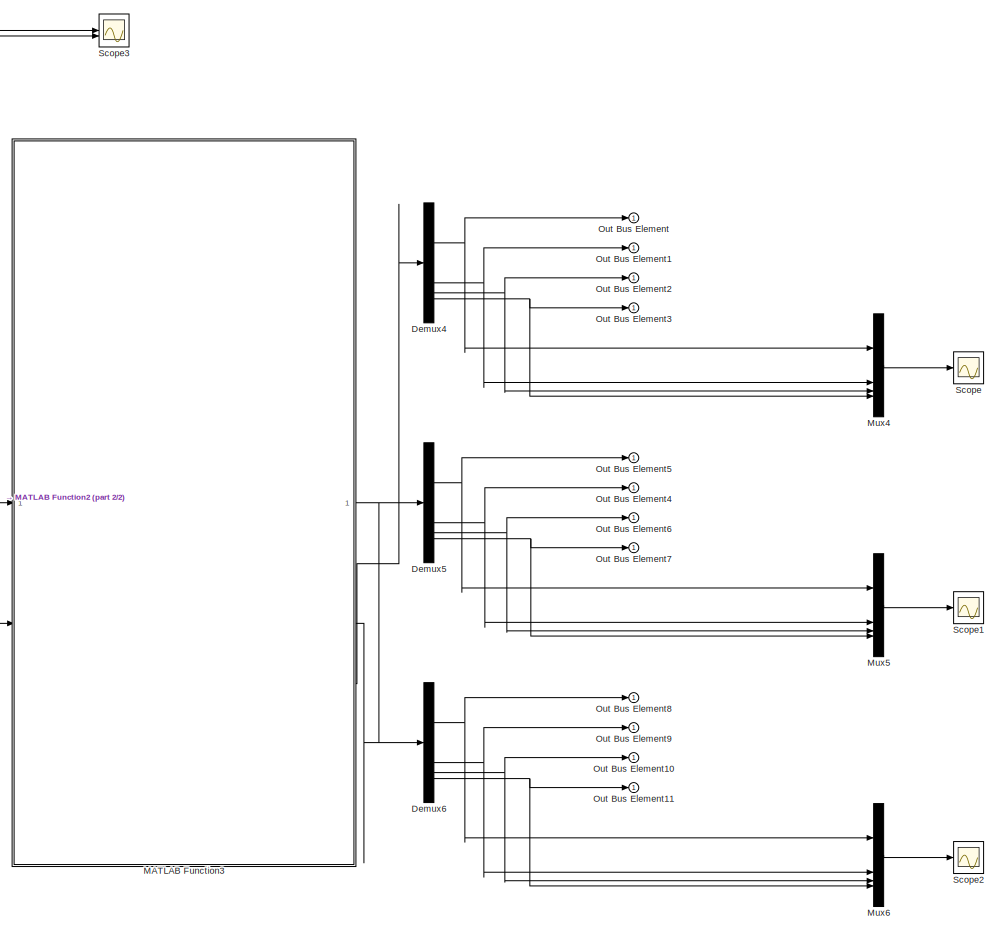
[diagram: Subsystem1 - part 1/2, right side, full height]
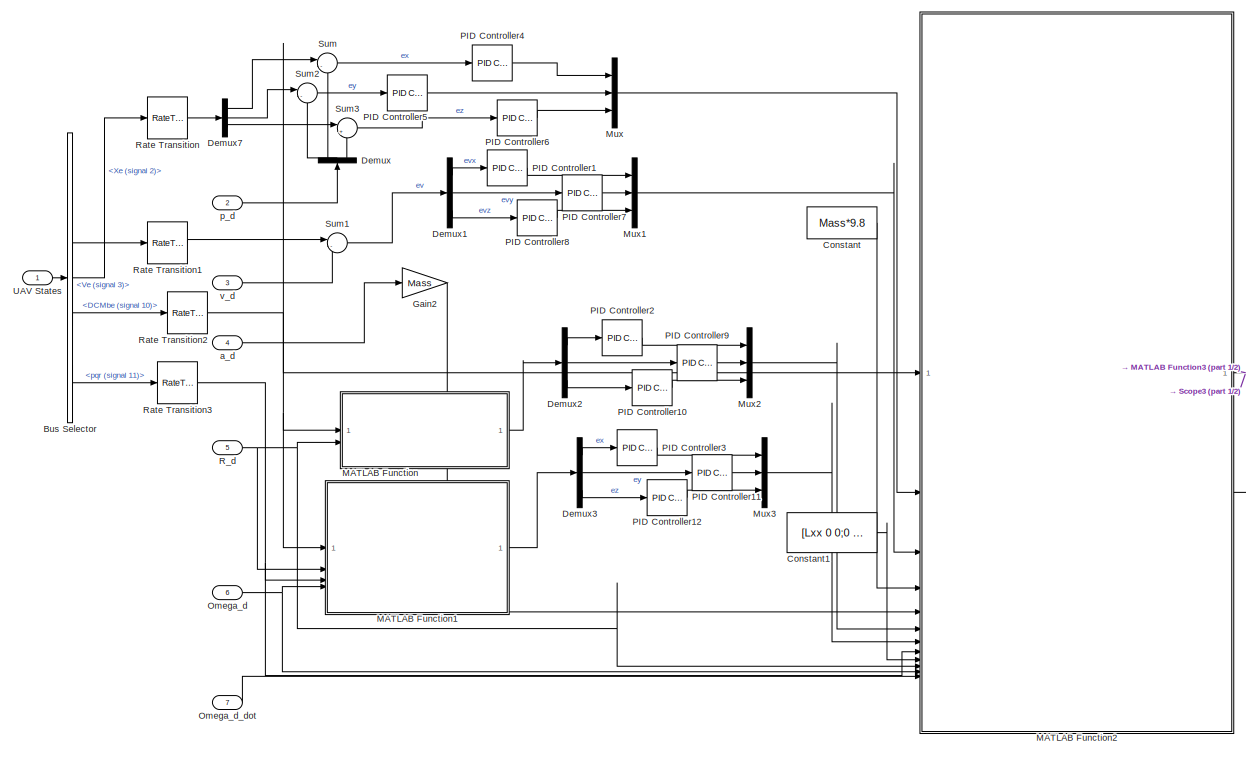
[diagram: Subsystem1 - part 2/2, left side, full height]
BLOCK [SubSystem] Subsystem1
BLOCK [BusSelector] Subsystem1/Bus Selector
  OutputSignals = Xe (signal 2),Ve (signal 3),DCMbe (signal 10),pqr (signal 11)
BLOCK [Constant] Subsystem1/Constant
  Value = Mass*9.8
BLOCK [Constant] Subsystem1/Constant1
  Value = [Lxx 0 0;0 Lyy 0;0 0 Lzz]
BLOCK [Demux] Subsystem1/Demux
  NameLocation = right
  Outputs = 3
BLOCK [Demux] Subsystem1/Demux1
  Outputs = 3
BLOCK [Demux] Subsystem1/Demux2
  Outputs = 3
BLOCK [Demux] Subsystem1/Demux3
  Outputs = 3
BLOCK [Demux] Subsystem1/Demux4
BLOCK [Demux] Subsystem1/Demux5
BLOCK [Demux] Subsystem1/Demux6
BLOCK [Demux] Subsystem1/Demux7
  Outputs = 3
BLOCK [Gain] Subsystem1/Gain2
  Gain = Mass
BLOCK [SubSystem] Subsystem1/MATLAB Function
  ErrorFcn = Stateflow.Translate.translate
  PermitHierarchicalResolution = ExplicitOnly
  SFBlockType = MATLAB Function
  TreatAsAtomicUnit = on
BLOCK [Demux] Subsystem1/MATLAB Function/ Demux 
  Outputs = 1
BLOCK [S-Function] Subsystem1/MATLAB Function/ SFunction 
  EnableBusSupport = off
  FunctionName = sf_sfun
  PortCounts = [2 2]
  SFcnIsStateOwnerBlock = off
  SFunctionDeploymentMode = off
  Tag = Stateflow S-Function 4
BLOCK [Terminator] Subsystem1/MATLAB Function/ Terminator 
BLOCK [Inport] Subsystem1/MATLAB Function/R
BLOCK [Inport] Subsystem1/MATLAB Function/Rd
  Port = 2
BLOCK [Outport] Subsystem1/MATLAB Function/eR
BLOCK [SubSystem] Subsystem1/MATLAB Function1
  ErrorFcn = Stateflow.Translate.translate
  PermitHierarchicalResolution = ExplicitOnly
  SFBlockType = MATLAB Function
  TreatAsAtomicUnit = on
BLOCK [Demux] Subsystem1/MATLAB Function1/ Demux 
  Outputs = 1
BLOCK [S-Function] Subsystem1/MATLAB Function1/ SFunction 
  EnableBusSupport = off
  FunctionName = sf_sfun
  PortCounts = [4 2]
  SFcnIsStateOwnerBlock = off
  SFunctionDeploymentMode = off
  Tag = Stateflow S-Function 5
BLOCK [Terminator] Subsystem1/MATLAB Function1/ Terminator 
BLOCK [Inport] Subsystem1/MATLAB Function1/R
BLOCK [Inport] Subsystem1/MATLAB Function1/Rd
  Port = 2
BLOCK [Outport] Subsystem1/MATLAB Function1/eOmega
BLOCK [Inport] Subsystem1/MATLAB Function1/omega
  Port = 3
BLOCK [Inport] Subsystem1/MATLAB Function1/omega_d
  Port = 4
BLOCK [SubSystem] Subsystem1/MATLAB Function2
  ErrorFcn = Stateflow.Translate.translate
  PermitHierarchicalResolution = ExplicitOnly
  SFBlockType = MATLAB Function
  TreatAsAtomicUnit = on
BLOCK [Demux] Subsystem1/MATLAB Function2/ Demux 
  Outputs = 1
BLOCK [S-Function] Subsystem1/MATLAB Function2/ SFunction 
  EnableBusSupport = off
  FunctionName = sf_sfun
  PortCounts = [12 3]
  SFcnIsStateOwnerBlock = off
  SFunctionDeploymentMode = off
  Tag = Stateflow S-Function 6
BLOCK [Terminator] Subsystem1/MATLAB Function2/ Terminator 
BLOCK [Inport] Subsystem1/MATLAB Function2/J
  Port = 9
BLOCK [Inport] Subsystem1/MATLAB Function2/R
BLOCK [Inport] Subsystem1/MATLAB Function2/R_d
  Port = 10
BLOCK [Outport] Subsystem1/MATLAB Function2/fd
BLOCK [Inport] Subsystem1/MATLAB Function2/kReR
  Port = 6
BLOCK [Inport] Subsystem1/MATLAB Function2/kpep
  Port = 2
BLOCK [Inport] Subsystem1/MATLAB Function2/kvev
  Port = 3
BLOCK [Inport] Subsystem1/MATLAB Function2/kwew
  Port = 7
BLOCK [Inport] Subsystem1/MATLAB Function2/ma_d
  Port = 5
BLOCK [Inport] Subsystem1/MATLAB Function2/mg
  Port = 4
BLOCK [Inport] Subsystem1/MATLAB Function2/omega
  Port = 8
BLOCK [Inport] Subsystem1/MATLAB Function2/omega_d
  Port = 11
BLOCK [Inport] Subsystem1/MATLAB Function2/omega_d_dot
  Port = 12
BLOCK [Outport] Subsystem1/MATLAB Function2/tau_d
  Port = 2
BLOCK [SubSystem] Subsystem1/MATLAB Function3
  ErrorFcn = Stateflow.Translate.translate
  PermitHierarchicalResolution = ExplicitOnly
  SFBlockType = MATLAB Function
  TreatAsAtomicUnit = on
BLOCK [Demux] Subsystem1/MATLAB Function3/ Demux 
  Outputs = 1
BLOCK [S-Function] Subsystem1/MATLAB Function3/ SFunction 
  EnableBusSupport = off
  FunctionName = sf_sfun
  PortCounts = [2 4]
  SFcnIsStateOwnerBlock = off
  SFunctionDeploymentMode = off
  Tag = Stateflow S-Function 7
BLOCK [Terminator] Subsystem1/MATLAB Function3/ Terminator 
BLOCK [Outport] Subsystem1/MATLAB Function3/Omega
  Port = 3
BLOCK [Outport] Subsystem1/MATLAB Function3/alpha
BLOCK [Outport] Subsystem1/MATLAB Function3/beta
  Port = 2
BLOCK [Inport] Subsystem1/MATLAB Function3/fd
BLOCK [Inport] Subsystem1/MATLAB Function3/tau
  Port = 2
BLOCK [Mux] Subsystem1/Mux
  DisplayOption = bar
  Inputs = 3
BLOCK [Mux] Subsystem1/Mux1
  DisplayOption = bar
  Inputs = 3
BLOCK [Mux] Subsystem1/Mux2
  DisplayOption = bar
  Inputs = 3
BLOCK [Mux] Subsystem1/Mux3
  DisplayOption = bar
  Inputs = 3
BLOCK [Mux] Subsystem1/Mux4
  DisplayOption = bar
BLOCK [Mux] Subsystem1/Mux5
  DisplayOption = bar
BLOCK [Mux] Subsystem1/Mux6
  DisplayOption = bar
BLOCK [Inport] Subsystem1/Omega_d
  Port = 6
BLOCK [Inport] Subsystem1/Omega_d_dot
  Port = 7
BLOCK [Outport] Subsystem1/Out Bus Element
BLOCK [Outport] Subsystem1/Out Bus Element1
BLOCK [Outport] Subsystem1/Out Bus Element10
BLOCK [Outport] Subsystem1/Out Bus Element11
BLOCK [Outport] Subsystem1/Out Bus Element2
BLOCK [Outport] Subsystem1/Out Bus Element3
BLOCK [Outport] Subsystem1/Out Bus Element4
BLOCK [Outport] Subsystem1/Out Bus Element5
BLOCK [Outport] Subsystem1/Out Bus Element6
BLOCK [Outport] Subsystem1/Out Bus Element7
BLOCK [Outport] Subsystem1/Out Bus Element8
BLOCK [Outport] Subsystem1/Out Bus Element9
BLOCK [Reference] Subsystem1/PID Controller1  REF=slpidlib/PID Controller
  LibrarySourceBlock = simulink/Continuous/PID Controller
  SourceBlock = slpidlib/PID Controller
  SourceType = PID 1dof
BLOCK [Reference] Subsystem1/PID Controller10  REF=slpidlib/PID Controller
  LibrarySourceBlock = simulink/Continuous/PID Controller
  SourceBlock = slpidlib/PID Controller
  SourceType = PID 1dof
BLOCK [Reference] Subsystem1/PID Controller11  REF=slpidlib/PID Controller
  LibrarySourceBlock = simulink/Continuous/PID Controller
  SourceBlock = slpidlib/PID Controller
  SourceType = PID 1dof
BLOCK [Reference] Subsystem1/PID Controller12  REF=slpidlib/PID Controller
  LibrarySourceBlock = simulink/Continuous/PID Controller
  SourceBlock = slpidlib/PID Controller
  SourceType = PID 1dof
BLOCK [Reference] Subsystem1/PID Controller2  REF=slpidlib/PID Controller
  LibrarySourceBlock = simulink/Continuous/PID Controller
  SourceBlock = slpidlib/PID Controller
  SourceType = PID 1dof
BLOCK [Reference] Subsystem1/PID Controller3  REF=slpidlib/PID Controller
  LibrarySourceBlock = simulink/Continuous/PID Controller
  SourceBlock = slpidlib/PID Controller
  SourceType = PID 1dof
BLOCK [Reference] Subsystem1/PID Controller4  REF=slpidlib/PID Controller
  LibrarySourceBlock = simulink/Continuous/PID Controller
  SourceBlock = slpidlib/PID Controller
  SourceType = PID 1dof
BLOCK [Reference] Subsystem1/PID Controller5  REF=slpidlib/PID Controller
  LibrarySourceBlock = simulink/Continuous/PID Controller
  SourceBlock = slpidlib/PID Controller
  SourceType = PID 1dof
BLOCK [Reference] Subsystem1/PID Controller6  REF=slpidlib/PID Controller
  LibrarySourceBlock = simulink/Continuous/PID Controller
  SourceBlock = slpidlib/PID Controller
  SourceType = PID 1dof
BLOCK [Reference] Subsystem1/PID Controller7  REF=slpidlib/PID Controller
  LibrarySourceBlock = simulink/Continuous/PID Controller
  SourceBlock = slpidlib/PID Controller
  SourceType = PID 1dof
BLOCK [Reference] Subsystem1/PID Controller8  REF=slpidlib/PID Controller
  LibrarySourceBlock = simulink/Continuous/PID Controller
  SourceBlock = slpidlib/PID Controller
  SourceType = PID 1dof
BLOCK [Reference] Subsystem1/PID Controller9  REF=slpidlib/PID Controller
  LibrarySourceBlock = simulink/Continuous/PID Controller
  SourceBlock = slpidlib/PID Controller
  SourceType = PID 1dof
BLOCK [Inport] Subsystem1/R_d
  Port = 5
BLOCK [RateTransition] Subsystem1/Rate Transition
  OutPortSampleTime = tss
BLOCK [RateTransition] Subsystem1/Rate Transition1
  OutPortSampleTime = tss
BLOCK [RateTransition] Subsystem1/Rate Transition2
  OutPortSampleTime = tss
BLOCK [RateTransition] Subsystem1/Rate Transition3
  OutPortSampleTime = tss
BLOCK [Scope] Subsystem1/Scope
  ActiveDisplayYMaximum = 1794.3045482841947
  ActiveDisplayYMinimum = -239.41553771313602
  DataLoggingVariableName = ScopeData2
  Floating = off
  GraphicalSettings = {"Style":{"BackgroundColor":[0.12941176470588237,0.12941176470588237,0.12941176470588237],"AxesColor":[0.07058823529411765,0.07058823529411765,0.07058823529411765],"LabelsColor":[0.8509803921568627,0.8509803921568627,0.8509803921568627],"PreserveColors":false,"Visible":[true,true,true,true],"LineStyle":["-","-","-","-"],"LineWidth":[1.5,1.5,1.5,1.5],"BarWidth":[0.9,0.9,0.9,0.9],"LineColor":["auto"...<+2386ch>
  MultipleDisplayCache = [{"MaxYLimMag":25.653177676970788,"MaxYLimReal":1794.3045482841947,"MinYLimMag":23.557985982604087,"MinYLimReal":-239.41553771313602,"PlotAsMagnitudePhase":false,"ShowGrid":true,"ShowLegend":false,"Title":"%<SignalLabel>","YLabel":""}]
  NumInputPorts = 1
  ScopeFrameLocation = container
  Visible = on
  WasSavedAsWebScope = on
  WindowPosition = [1.000000,49.000000,1920.000000,1009.000000,]
BLOCK [Scope] Subsystem1/Scope1
  ActiveDisplayYMaximum = 5.3328354419928372
  ActiveDisplayYMinimum = -7.46045590481177
  DataLoggingVariableName = ScopeData3
  Floating = off
  GraphicalSettings = {"Style":{"BackgroundColor":[0.12941176470588237,0.12941176470588237,0.12941176470588237],"AxesColor":[0.07058823529411765,0.07058823529411765,0.07058823529411765],"LabelsColor":[0.8509803921568627,0.8509803921568627,0.8509803921568627],"PreserveColors":false,"Visible":[true,true,true,true],"LineStyle":["-","-","-","-"],"LineWidth":[1.5,1.5,1.5,1.5],"BarWidth":[0.9,0.9,0.9,0.9],"LineColor":["auto"...<+2342ch>
  MultipleDisplayCache = [{"MaxYLimMag":3.9269897650109589,"MaxYLimReal":5.3328354419928372,"MinYLimMag":0,"MinYLimReal":-7.46045590481177,"PlotAsMagnitudePhase":false,"ShowGrid":true,"ShowLegend":true,"Title":"%<SignalLabel>","YLabel":""}]
  NumInputPorts = 1
  ScopeFrameLocation = container
  ShowLegend = on
  Visible = on
  WasSavedAsWebScope = on
  WindowPosition = [1.000000,49.000000,1920.000000,1009.000000,]
BLOCK [Scope] Subsystem1/Scope2
  ActiveDisplayYMaximum = 1.5340459487771441
  ActiveDisplayYMinimum = -1.8716162142605544
  DataLoggingVariableName = ScopeData4
  Floating = off
  GraphicalSettings = {"Style":{"BackgroundColor":[0.12941176470588237,0.12941176470588237,0.12941176470588237],"AxesColor":[0.07058823529411765,0.07058823529411765,0.07058823529411765],"LabelsColor":[0.8509803921568627,0.8509803921568627,0.8509803921568627],"PreserveColors":false,"Visible":[true,true,true,true],"LineStyle":["-","-","-","-"],"LineWidth":[1.5,1.5,1.5,1.5],"BarWidth":[0.9,0.9,0.9,0.9],"LineColor":["auto"...<+2352ch>
  MultipleDisplayCache = [{"MaxYLimMag":0.15574571323368086,"MaxYLimReal":1.5340459487771441,"MinYLimMag":0,"MinYLimReal":-1.8716162142605544,"PlotAsMagnitudePhase":false,"ShowGrid":true,"ShowLegend":false,"Title":"%<SignalLabel>","YLabel":""}]
  NumInputPorts = 1
  ScopeFrameLocation = container
  Visible = on
  WasSavedAsWebScope = on
  WindowPosition = [1.000000,49.000000,1920.000000,1009.000000,]
BLOCK [Scope] Subsystem1/Scope3
  ActiveDisplayYMaximum = 498.1726107697848
  ActiveDisplayYMinimum = -163.88287412142537
  DataLoggingVariableName = ScopeData1
  Floating = off
  GraphicalSettings = {"Style":{"BackgroundColor":[0.12941176470588237,0.12941176470588237,0.12941176470588237],"AxesColor":[0.07058823529411765,0.07058823529411765,0.07058823529411765],"LabelsColor":[0.8509803921568627,0.8509803921568627,0.8509803921568627],"PreserveColors":false,"Visible":[true,true,true,true,true,true],"LineStyle":["-","-","-","-","-","-"],"LineWidth":[1.5,1.5,1.5,1.5,1.5,1.5],"BarWidth":[0.9,0.9,0....<+2961ch>
  LayoutDimensionsString = [2,1]
  MultipleDisplayCache = [{"MaxYLimMag":10,"MaxYLimReal":498.1726107697848,"MinYLimMag":0,"MinYLimReal":-163.88287412142537,"PlotAsMagnitudePhase":false,"ShowGrid":true,"ShowLegend":false,"Title":"%<SignalLabel>","YLabel":""},{"MaxYLimMag":10,"MaxYLimReal":10,"MinYLimMag":0,"MinYLimReal":-10,"PlotAsMagnitudePhase":false,"ShowGrid":true,"ShowLegend":false,"Title":"%<SignalLabel>","YLabel":""}]
  NumInputPorts = 2
  ScopeFrameLocation = window
  WasSavedAsWebScope = on
  WindowPosition = [680.000000,330.000000,560.000000,420.000000,]
BLOCK [Sum] Subsystem1/Sum
  Inputs = |-+
BLOCK [Sum] Subsystem1/Sum1
  Inputs = |-+
BLOCK [Sum] Subsystem1/Sum2
  Inputs = |-+
BLOCK [Sum] Subsystem1/Sum3
  Inputs = |++
BLOCK [Inport] Subsystem1/UAV States
BLOCK [Inport] Subsystem1/a_d
  Port = 4
BLOCK [Inport] Subsystem1/p_d
  Port = 2
BLOCK [Inport] Subsystem1/v_d
  Port = 3
BLOCK [SubSystem] Subsystem2
BLOCK [BusSelector] Subsystem2/Bus Selector
  OutputSignals = Xe (signal 2),pqr (signal 11)
BLOCK [Reference] Subsystem2/Trajectory  REF=uavutilslib/UAV Animation
  SourceBlock = uavutilslib/UAV Animation
  SourceType = uav.sluav.internal.system.UAVAnimation
BLOCK [Inport] Subsystem2/UAVState
BLOCK [SubSystem] Subsystem3
BLOCK [FromWorkspace] Subsystem3/From Workspace
  VariableName = Xcmd
BLOCK [FromWorkspace] Subsystem3/From Workspace1
  VariableName = Ycmd
BLOCK [FromWorkspace] Subsystem3/From Workspace10
  VariableName = pitchcmd
BLOCK [FromWorkspace] Subsystem3/From Workspace11
  VariableName = yawcmd
BLOCK [FromWorkspace] Subsystem3/From Workspace12
  VariableName = qcmd
BLOCK [FromWorkspace] Subsystem3/From Workspace13
  VariableName = rcmd
BLOCK [FromWorkspace] Subsystem3/From Workspace14
  VariableName = pcmd
BLOCK [FromWorkspace] Subsystem3/From Workspace15
  VariableName = qcmd_d
BLOCK [FromWorkspace] Subsystem3/From Workspace16
  VariableName = rcmd_d
BLOCK [FromWorkspace] Subsystem3/From Workspace17
  VariableName = pcmd_d
BLOCK [FromWorkspace] Subsystem3/From Workspace2
  VariableName = Zcmd
BLOCK [FromWorkspace] Subsystem3/From Workspace3
  VariableName = Vycmd
BLOCK [FromWorkspace] Subsystem3/From Workspace4
  VariableName = Vxcmd
BLOCK [FromWorkspace] Subsystem3/From Workspace5
  VariableName = Vzcmd
BLOCK [FromWorkspace] Subsystem3/From Workspace6
  VariableName = Aycmd
BLOCK [FromWorkspace] Subsystem3/From Workspace7
  VariableName = Axcmd
BLOCK [FromWorkspace] Subsystem3/From Workspace8
  VariableName = Azcmd
BLOCK [FromWorkspace] Subsystem3/From Workspace9
  VariableName = rollcmd
BLOCK [SubSystem] Subsystem3/MATLAB Function1
  ErrorFcn = Stateflow.Translate.translate
  PermitHierarchicalResolution = ExplicitOnly
  SFBlockType = MATLAB Function
  TreatAsAtomicUnit = on
BLOCK [Demux] Subsystem3/MATLAB Function1/ Demux 
  Outputs = 1
BLOCK [S-Function] Subsystem3/MATLAB Function1/ SFunction 
  EnableBusSupport = off
  FunctionName = sf_sfun
  PortCounts = [3 2]
  SFcnIsStateOwnerBlock = off
  SFunctionDeploymentMode = off
  Tag = Stateflow S-Function 9
BLOCK [Terminator] Subsystem3/MATLAB Function1/ Terminator 
BLOCK [Outport] Subsystem3/MATLAB Function1/R_d
BLOCK [Inport] Subsystem3/MATLAB Function1/pitch
  Port = 2
BLOCK [Inport] Subsystem3/MATLAB Function1/roll
BLOCK [Inport] Subsystem3/MATLAB Function1/yaw
  Port = 3
BLOCK [Mux] Subsystem3/Mux
  DisplayOption = bar
  Inputs = 3
BLOCK [Mux] Subsystem3/Mux1
  DisplayOption = bar
  Inputs = 3
BLOCK [Mux] Subsystem3/Mux2
  DisplayOption = bar
  Inputs = 3
BLOCK [Mux] Subsystem3/Mux3
  DisplayOption = bar
  Inputs = 3
BLOCK [Mux] Subsystem3/Mux4
  DisplayOption = bar
  Inputs = 3
BLOCK [Outport] Subsystem3/Omega_d
  Port = 5
BLOCK [Outport] Subsystem3/Omega_d_dot
  Port = 6
BLOCK [Outport] Subsystem3/R_d
  Port = 4
BLOCK [Outport] Subsystem3/a_d
  Port = 3
BLOCK [Outport] Subsystem3/p_d
BLOCK [Outport] Subsystem3/v_d
  Port = 2
BLOCK [ToWorkspace] To Workspace
  FixptAsFi = on
  MaxDataPoints = inf
  SampleTime = -1
  SaveFormat = Timeseries
  VariableName = Time
ANNOTATION (root): Visualization
ANNOTATION Subsystem/MorphEUS Dynamics: Forces and Moments - VTOL UAV plant model and weather model 6DOF (Euler Angles) - Integrate the six-degrees-of-freedom equations of motion in body axis. Ground Truth Bus - converts UAV States into bus
ANNOTATION Subsystem/MorphEUS Dynamics/Subsystem/Aerodynamic Forces: The drag equation quantifies the drag force on a UAV: F = 0.5 * ρ * V² * Cd * A : F : Drag force ρ (rho) : Air density V : Velocity of the UAV Cd : Drag coefficient A : Reference area
ANNOTATION Subsystem/MorphEUS Dynamics/Subsystem/Ground Model: Body is assumed to be a rigid point mass on ground for contact force calculations. Normal force is modelled as a spring mass damper. Friction is modelled using Soft Coulomb model.
ANNOTATION Subsystem/MorphEUS Dynamics/Subsystem/Ground Model/Friction Force/Soft Coulomb Friction: Pennestrì, E., Rossi, V., Salvini, P. et al. Review and comparison of dry friction force models. Nonlinear Dyn 83, 1785–1801 (2016). https://doi.org/10.1007/s11071-015-2485-3
ANNOTATION Subsystem/MorphEUS Dynamics/Subsystem/Propulsion: Rotor Numbering : Rotor 1 : Front left Rotor 2 : Front right Rotor 3 : Rear right Rotor 4 : Rear left
ANNOTATION Subsystem/MorphEUS Dynamics/Subsystem/Propulsion: TurnDirection : Propeller spin direction, specified as a scalar. Input of 1 sets propeller to spin clockwise, and -1 sets propeller to spin counter clockwise seen from above
ANNOTATION Subsystem/MorphEUS Dynamics/Subsystem/Propulsion: Beta2
ANNOTATION Subsystem/MorphEUS Dynamics/Subsystem/Propulsion: Arm1
ANNOTATION Subsystem/MorphEUS Dynamics/Subsystem/Propulsion: Arm2
ANNOTATION Subsystem/MorphEUS Dynamics/Subsystem/Propulsion: Arm3
ANNOTATION Subsystem/MorphEUS Dynamics/Subsystem/Propulsion: Arm4
ANNOTATION Subsystem/MorphEUS Dynamics/Subsystem/Propulsion: Rotor Parameters
ANNOTATION Subsystem/MorphEUS Dynamics/Subsystem/Propulsion: ServoDynamics
ANNOTATION Subsystem/MorphEUS Dynamics/Subsystem/Propulsion: Sum of Forces
ANNOTATION Subsystem/MorphEUS Dynamics/Subsystem/Propulsion: Sum of Moments
LINE Bus Selector:1 -> Demux:1
LINE Bus Selector:2 -> Demux1:1
NET Clock:1 -> MATLAB Function:1, To Workspace:1
LINE Demux1:1 -> Mux3:2
LINE Demux1:2 -> Mux4:2
LINE Demux1:3 -> Mux5:2
LINE Demux:1 -> Mux:2
LINE Demux:2 -> Mux1:2
LINE Demux:3 -> Mux2:2
LINE From Workspace10:1 -> Mux4:1
LINE From Workspace11:1 -> Mux5:1
LINE From Workspace1:1 -> Mux1:1
LINE From Workspace2:1 -> Mux2:1
LINE From Workspace9:1 -> Mux3:1
LINE From Workspace:1 -> Mux:1
LINE MATLAB Function:1 -> Display:1
LINE Mux1:1 -> Scope:2
LINE Mux2:1 -> Scope:3
LINE Mux3:1 -> Scope:4
LINE Mux4:1 -> Scope:5
LINE Mux5:1 -> Scope:6
LINE Mux:1 -> Scope:1
LINE Subsystem/Actuator:1 -> Subsystem/MorphEUS Dynamics:1
NET Subsystem/MorphEUS Dynamics/6DOF (Euler Angles):1 -> Subsystem/MorphEUS Dynamics/Feedback:1, Subsystem/MorphEUS Dynamics/Ground Truth Bus:1
NET Subsystem/MorphEUS Dynamics/6DOF (Euler Angles):2 -> Subsystem/MorphEUS Dynamics/Feedback:2, Subsystem/MorphEUS Dynamics/Ground Truth Bus:2
NET Subsystem/MorphEUS Dynamics/6DOF (Euler Angles):3 -> Subsystem/MorphEUS Dynamics/Feedback:3, Subsystem/MorphEUS Dynamics/Ground Truth Bus:3
NET Subsystem/MorphEUS Dynamics/6DOF (Euler Angles):4 -> Subsystem/MorphEUS Dynamics/Feedback:4, Subsystem/MorphEUS Dynamics/Ground Truth Bus:4
NET Subsystem/MorphEUS Dynamics/6DOF (Euler Angles):5 -> Subsystem/MorphEUS Dynamics/Feedback:5, Subsystem/MorphEUS Dynamics/Ground Truth Bus:5
NET Subsystem/MorphEUS Dynamics/6DOF (Euler Angles):6 -> Subsystem/MorphEUS Dynamics/Feedback:6, Subsystem/MorphEUS Dynamics/Ground Truth Bus:6
LINE Subsystem/MorphEUS Dynamics/6DOF (Euler Angles):7 -> Subsystem/MorphEUS Dynamics/Terminator:1
LINE Subsystem/MorphEUS Dynamics/6DOF (Euler Angles):8 -> Subsystem/MorphEUS Dynamics/Ground Truth Bus:7
LINE Subsystem/MorphEUS Dynamics/6DOF (Euler Angles):9 -> Subsystem/MorphEUS Dynamics/Ground Truth Bus:8
LINE Subsystem/MorphEUS Dynamics/Actuator:1 -> Subsystem/MorphEUS Dynamics/Subsystem:1
NET Subsystem/MorphEUS Dynamics/Feedback/DCMbe:1 -> Subsystem/MorphEUS Dynamics/Feedback/Bus Element Out7:1, Subsystem/MorphEUS Dynamics/Feedback/Direction Cosine Matrix to Quaternions:1
LINE Subsystem/MorphEUS Dynamics/Feedback/Direction Cosine Matrix to Quaternions:1 -> Subsystem/MorphEUS Dynamics/Feedback/Bus Element Out8:1
LINE Subsystem/MorphEUS Dynamics/Feedback/Euler:1 -> Subsystem/MorphEUS Dynamics/Feedback/Reshape:1
LINE Subsystem/MorphEUS Dynamics/Feedback/MATLAB Function1:1 -> Subsystem/MorphEUS Dynamics/Feedback/Bus Element Out:1
LINE Subsystem/MorphEUS Dynamics/Feedback/MATLAB Function1:2 -> Subsystem/MorphEUS Dynamics/Feedback/Bus Element Out1:1
LINE Subsystem/MorphEUS Dynamics/Feedback/Reshape1:1 -> Subsystem/MorphEUS Dynamics/Feedback/Bus Element Out6:1
NET Subsystem/MorphEUS Dynamics/Feedback/Reshape:1 -> Subsystem/MorphEUS Dynamics/Feedback/Bus Element Out5:1, Subsystem/MorphEUS Dynamics/Feedback/Selector:1
LINE Subsystem/MorphEUS Dynamics/Feedback/RotorParameters:1 -> Subsystem/MorphEUS Dynamics/Feedback/Bus Element Out2:1
LINE Subsystem/MorphEUS Dynamics/Feedback/Selector:1 -> Subsystem/MorphEUS Dynamics/Feedback/Bus Element Out13:1
LINE Subsystem/MorphEUS Dynamics/Feedback/Vb:1 -> Subsystem/MorphEUS Dynamics/Feedback/Reshape1:1
NET Subsystem/MorphEUS Dynamics/Feedback/Ve:1 -> Subsystem/MorphEUS Dynamics/Feedback/Bus Element Out14:1, Subsystem/MorphEUS Dynamics/Feedback/Bus Element Out4:1, Subsystem/MorphEUS Dynamics/Feedback/MATLAB Function1:1
LINE Subsystem/MorphEUS Dynamics/Feedback/Xe:1 -> Subsystem/MorphEUS Dynamics/Feedback/Bus Element Out3:1
LINE Subsystem/MorphEUS Dynamics/Feedback/pqr:1 -> Subsystem/MorphEUS Dynamics/Feedback/Bus Element Out9:1
LINE Subsystem/MorphEUS Dynamics/Feedback:1 -> Subsystem/MorphEUS Dynamics/Subsystem:2
LINE Subsystem/MorphEUS Dynamics/Ground Truth Bus/Abb:1 -> Subsystem/MorphEUS Dynamics/Ground Truth Bus/Bus Creator:12
LINE Subsystem/MorphEUS Dynamics/Ground Truth Bus/Abe:1 -> Subsystem/MorphEUS Dynamics/Ground Truth Bus/Bus Creator:13
LINE Subsystem/MorphEUS Dynamics/Ground Truth Bus/Bus Creator:1 -> Subsystem/MorphEUS Dynamics/Ground Truth Bus/UAV States:1
NET Subsystem/MorphEUS Dynamics/Ground Truth Bus/DCMbe:1 -> Subsystem/MorphEUS Dynamics/Ground Truth Bus/Bus Creator:10, Subsystem/MorphEUS Dynamics/Ground Truth Bus/Direction Cosine Matrix to Quaternions:1
LINE Subsystem/MorphEUS Dynamics/Ground Truth Bus/Direction Cosine Matrix to Quaternions:1 -> Subsystem/MorphEUS Dynamics/Ground Truth Bus/Bus Creator:9
LINE Subsystem/MorphEUS Dynamics/Ground Truth Bus/Euler:1 -> Subsystem/MorphEUS Dynamics/Ground Truth Bus/Reshape:1
LINE Subsystem/MorphEUS Dynamics/Ground Truth Bus/MATLAB Function1:1 -> Subsystem/MorphEUS Dynamics/Ground Truth Bus/Bus Creator:5
LINE Subsystem/MorphEUS Dynamics/Ground Truth Bus/MATLAB Function1:2 -> Subsystem/MorphEUS Dynamics/Ground Truth Bus/Bus Creator:6
LINE Subsystem/MorphEUS Dynamics/Ground Truth Bus/Reshape1:1 -> Subsystem/MorphEUS Dynamics/Ground Truth Bus/Bus Creator:1
NET Subsystem/MorphEUS Dynamics/Ground Truth Bus/Reshape:1 -> Subsystem/MorphEUS Dynamics/Ground Truth Bus/Bus Creator:7, Subsystem/MorphEUS Dynamics/Ground Truth Bus/Selector:1
LINE Subsystem/MorphEUS Dynamics/Ground Truth Bus/RotorParams:1 -> Subsystem/MorphEUS Dynamics/Ground Truth Bus/Bus Creator:14
LINE Subsystem/MorphEUS Dynamics/Ground Truth Bus/Selector:1 -> Subsystem/MorphEUS Dynamics/Ground Truth Bus/Bus Creator:8
LINE Subsystem/MorphEUS Dynamics/Ground Truth Bus/Vb:1 -> Subsystem/MorphEUS Dynamics/Ground Truth Bus/Reshape1:1
NET Subsystem/MorphEUS Dynamics/Ground Truth Bus/Ve:1 -> Subsystem/MorphEUS Dynamics/Ground Truth Bus/Bus Creator:3, Subsystem/MorphEUS Dynamics/Ground Truth Bus/Bus Creator:4, Subsystem/MorphEUS Dynamics/Ground Truth Bus/MATLAB Function1:1
LINE Subsystem/MorphEUS Dynamics/Ground Truth Bus/Xe:1 -> Subsystem/MorphEUS Dynamics/Ground Truth Bus/Bus Creator:2
LINE Subsystem/MorphEUS Dynamics/Ground Truth Bus/pqr:1 -> Subsystem/MorphEUS Dynamics/Ground Truth Bus/Bus Creator:11
LINE Subsystem/MorphEUS Dynamics/Ground Truth Bus:1 -> Subsystem/MorphEUS Dynamics/States:1
NET Subsystem/MorphEUS Dynamics/Rate Transition:1 -> Subsystem/MorphEUS Dynamics/Feedback:7, Subsystem/MorphEUS Dynamics/Ground Truth Bus:9
LINE Subsystem/MorphEUS Dynamics/Subsystem/Actuator:1 -> Subsystem/MorphEUS Dynamics/Subsystem/Propulsion:2
LINE Subsystem/MorphEUS Dynamics/Subsystem/Add1:1 -> Subsystem/MorphEUS Dynamics/Subsystem/M:1
LINE Subsystem/MorphEUS Dynamics/Subsystem/Add:1 -> Subsystem/MorphEUS Dynamics/Subsystem/F:1
LINE Subsystem/MorphEUS Dynamics/Subsystem/Aerodynamic Forces/Bus Selector2:1 -> Subsystem/MorphEUS Dynamics/Subsystem/Aerodynamic Forces/Matrix Multiply:1
LINE Subsystem/MorphEUS Dynamics/Subsystem/Aerodynamic Forces/Bus Selector2:2 -> Subsystem/MorphEUS Dynamics/Subsystem/Aerodynamic Forces/Vair:1
LINE Subsystem/MorphEUS Dynamics/Subsystem/Aerodynamic Forces/Compute Air Data/MATLAB Function:1 -> Subsystem/MorphEUS Dynamics/Subsystem/Aerodynamic Forces/Compute Air Data/F:1
LINE Subsystem/MorphEUS Dynamics/Subsystem/Aerodynamic Forces/Compute Air Data/Rho:1 -> Subsystem/MorphEUS Dynamics/Subsystem/Aerodynamic Forces/Compute Air Data/Terminator:1
LINE Subsystem/MorphEUS Dynamics/Subsystem/Aerodynamic Forces/Compute Air Data/Vb:1 -> Subsystem/MorphEUS Dynamics/Subsystem/Aerodynamic Forces/Compute Air Data/MATLAB Function:1
LINE Subsystem/MorphEUS Dynamics/Subsystem/Aerodynamic Forces/Compute Air Data:1 -> Subsystem/MorphEUS Dynamics/Subsystem/Aerodynamic Forces/F:1
LINE Subsystem/MorphEUS Dynamics/Subsystem/Aerodynamic Forces/Matrix Multiply:1 -> Subsystem/MorphEUS Dynamics/Subsystem/Aerodynamic Forces/Compute Air Data:1
LINE Subsystem/MorphEUS Dynamics/Subsystem/Aerodynamic Forces/Rho:1 -> Subsystem/MorphEUS Dynamics/Subsystem/Aerodynamic Forces/Compute Air Data:2
LINE Subsystem/MorphEUS Dynamics/Subsystem/Aerodynamic Forces/UAVState:1 -> Subsystem/MorphEUS Dynamics/Subsystem/Aerodynamic Forces/Bus Selector2:1
LINE Subsystem/MorphEUS Dynamics/Subsystem/Aerodynamic Forces/Vair:1 -> Subsystem/MorphEUS Dynamics/Subsystem/Aerodynamic Forces/Matrix Multiply:2
LINE Subsystem/MorphEUS Dynamics/Subsystem/Aerodynamic Forces/Wind_e:1 -> Subsystem/MorphEUS Dynamics/Subsystem/Aerodynamic Forces/Vair:2
LINE Subsystem/MorphEUS Dynamics/Subsystem/Aerodynamic Forces:1 -> Subsystem/MorphEUS Dynamics/Subsystem/Add:3
NET Subsystem/MorphEUS Dynamics/Subsystem/Bus Selector1:1 -> Subsystem/MorphEUS Dynamics/Subsystem/Gravity:1, Subsystem/MorphEUS Dynamics/Subsystem/Ground Model:1
LINE Subsystem/MorphEUS Dynamics/Subsystem/Bus Selector1:2 -> Subsystem/MorphEUS Dynamics/Subsystem/Ground Model:2
LINE Subsystem/MorphEUS Dynamics/Subsystem/Bus Selector1:3 -> Subsystem/MorphEUS Dynamics/Subsystem/Ground Model:3
NET Subsystem/MorphEUS Dynamics/Subsystem/Constant:1 -> Subsystem/MorphEUS Dynamics/Subsystem/Aerodynamic Forces:2, Subsystem/MorphEUS Dynamics/Subsystem/Propulsion:1
LINE Subsystem/MorphEUS Dynamics/Subsystem/Gain1:1 -> Subsystem/MorphEUS Dynamics/Subsystem/Mux:2
LINE Subsystem/MorphEUS Dynamics/Subsystem/Gain2:1 -> Subsystem/MorphEUS Dynamics/Subsystem/Mux:3
LINE Subsystem/MorphEUS Dynamics/Subsystem/Gain:1 -> Subsystem/MorphEUS Dynamics/Subsystem/Mux:1
LINE Subsystem/MorphEUS Dynamics/Subsystem/Gravity/Constant:1 -> Subsystem/MorphEUS Dynamics/Subsystem/Gravity/Matrix Multiply:2
LINE Subsystem/MorphEUS Dynamics/Subsystem/Gravity/DCM_be:1 -> Subsystem/MorphEUS Dynamics/Subsystem/Gravity/Matrix Multiply:1
LINE Subsystem/MorphEUS Dynamics/Subsystem/Gravity/Gain:1 -> Subsystem/MorphEUS Dynamics/Subsystem/Gravity/F_g:1
LINE Subsystem/MorphEUS Dynamics/Subsystem/Gravity/Matrix Multiply:1 -> Subsystem/MorphEUS Dynamics/Subsystem/Gravity/Gain:1
LINE Subsystem/MorphEUS Dynamics/Subsystem/Gravity:1 -> Subsystem/MorphEUS Dynamics/Subsystem/Add:2
LINE Subsystem/MorphEUS Dynamics/Subsystem/Ground Model/Constant:1 -> Subsystem/MorphEUS Dynamics/Subsystem/Ground Model/Mb_contact:1
LINE Subsystem/MorphEUS Dynamics/Subsystem/Ground Model/DCMbe:1 -> Subsystem/MorphEUS Dynamics/Subsystem/Ground Model/Matrix Multiply:1
LINE Subsystem/MorphEUS Dynamics/Subsystem/Ground Model/Friction Force/Fn:1 -> Subsystem/MorphEUS Dynamics/Subsystem/Ground Model/Friction Force/Product:2
LINE Subsystem/MorphEUS Dynamics/Subsystem/Ground Model/Friction Force/Product:1 -> Subsystem/MorphEUS Dynamics/Subsystem/Ground Model/Friction Force/Unary Minus:1
LINE Subsystem/MorphEUS Dynamics/Subsystem/Ground Model/Friction Force/Soft Coulomb Friction/Tanh:1 -> Subsystem/MorphEUS Dynamics/Subsystem/Ground Model/Friction Force/Soft Coulomb Friction/friction coefficient:1
LINE Subsystem/MorphEUS Dynamics/Subsystem/Ground Model/Friction Force/Soft Coulomb Friction/V:1 -> Subsystem/MorphEUS Dynamics/Subsystem/Ground Model/Friction Force/Soft Coulomb Friction/vd:1
LINE Subsystem/MorphEUS Dynamics/Subsystem/Ground Model/Friction Force/Soft Coulomb Friction/friction coefficient:1 -> Subsystem/MorphEUS Dynamics/Subsystem/Ground Model/Friction Force/Soft Coulomb Friction/Out1:1
LINE Subsystem/MorphEUS Dynamics/Subsystem/Ground Model/Friction Force/Soft Coulomb Friction/vd:1 -> Subsystem/MorphEUS Dynamics/Subsystem/Ground Model/Friction Force/Soft Coulomb Friction/Tanh:1
LINE Subsystem/MorphEUS Dynamics/Subsystem/Ground Model/Friction Force/Soft Coulomb Friction:1 -> Subsystem/MorphEUS Dynamics/Subsystem/Ground Model/Friction Force/Product:1
LINE Subsystem/MorphEUS Dynamics/Subsystem/Ground Model/Friction Force/Unary Minus:1 -> Subsystem/MorphEUS Dynamics/Subsystem/Ground Model/Friction Force/Friction:1
LINE Subsystem/MorphEUS Dynamics/Subsystem/Ground Model/Friction Force/V:1 -> Subsystem/MorphEUS Dynamics/Subsystem/Ground Model/Friction Force/Soft Coulomb Friction:1
LINE Subsystem/MorphEUS Dynamics/Subsystem/Ground Model/Friction Force:1 -> Subsystem/MorphEUS Dynamics/Subsystem/Ground Model/Mux1:1
LINE Subsystem/MorphEUS Dynamics/Subsystem/Ground Model/Matrix Multiply:1 -> Subsystem/MorphEUS Dynamics/Subsystem/Ground Model/Fb_contact:1
LINE Subsystem/MorphEUS Dynamics/Subsystem/Ground Model/Mux1:1 -> Subsystem/MorphEUS Dynamics/Subsystem/Ground Model/Matrix Multiply:2
LINE Subsystem/MorphEUS Dynamics/Subsystem/Ground Model/Normal Force/Add:1 -> Subsystem/MorphEUS Dynamics/Subsystem/Ground Model/Normal Force/Switch:3
LINE Subsystem/MorphEUS Dynamics/Subsystem/Ground Model/Normal Force/Constant:1 -> Subsystem/MorphEUS Dynamics/Subsystem/Ground Model/Normal Force/Switch:1
LINE Subsystem/MorphEUS Dynamics/Subsystem/Ground Model/Normal Force/Damper:1 -> Subsystem/MorphEUS Dynamics/Subsystem/Ground Model/Normal Force/Add:2
LINE Subsystem/MorphEUS Dynamics/Subsystem/Ground Model/Normal Force/Saturation:1 -> Subsystem/MorphEUS Dynamics/Subsystem/Ground Model/Normal Force/Normal:1
LINE Subsystem/MorphEUS Dynamics/Subsystem/Ground Model/Normal Force/Spring Kp:1 -> Subsystem/MorphEUS Dynamics/Subsystem/Ground Model/Normal Force/Add:1
LINE Subsystem/MorphEUS Dynamics/Subsystem/Ground Model/Normal Force/Switch:1 -> Subsystem/MorphEUS Dynamics/Subsystem/Ground Model/Normal Force/Saturation:1
LINE Subsystem/MorphEUS Dynamics/Subsystem/Ground Model/Normal Force/Unary Minus1:1 -> Subsystem/MorphEUS Dynamics/Subsystem/Ground Model/Normal Force/Damper:1
NET Subsystem/MorphEUS Dynamics/Subsystem/Ground Model/Normal Force/Unary Minus:1 -> Subsystem/MorphEUS Dynamics/Subsystem/Ground Model/Normal Force/Spring Kp:1, Subsystem/MorphEUS Dynamics/Subsystem/Ground Model/Normal Force/Switch:2
LINE Subsystem/MorphEUS Dynamics/Subsystem/Ground Model/Normal Force/Vz:1 -> Subsystem/MorphEUS Dynamics/Subsystem/Ground Model/Normal Force/Unary Minus1:1
LINE Subsystem/MorphEUS Dynamics/Subsystem/Ground Model/Normal Force/Z:1 -> Subsystem/MorphEUS Dynamics/Subsystem/Ground Model/Normal Force/Unary Minus:1
NET Subsystem/MorphEUS Dynamics/Subsystem/Ground Model/Normal Force:1 -> Subsystem/MorphEUS Dynamics/Subsystem/Ground Model/Friction Force:2, Subsystem/MorphEUS Dynamics/Subsystem/Ground Model/Unary Minus1:1
LINE Subsystem/MorphEUS Dynamics/Subsystem/Ground Model/Selector1:1 -> Subsystem/MorphEUS Dynamics/Subsystem/Ground Model/Normal Force:1
LINE Subsystem/MorphEUS Dynamics/Subsystem/Ground Model/Selector2:1 -> Subsystem/MorphEUS Dynamics/Subsystem/Ground Model/Friction Force:1
LINE Subsystem/MorphEUS Dynamics/Subsystem/Ground Model/Selector:1 -> Subsystem/MorphEUS Dynamics/Subsystem/Ground Model/Normal Force:2
LINE Subsystem/MorphEUS Dynamics/Subsystem/Ground Model/Unary Minus1:1 -> Subsystem/MorphEUS Dynamics/Subsystem/Ground Model/Mux1:2
NET Subsystem/MorphEUS Dynamics/Subsystem/Ground Model/Ve:1 -> Subsystem/MorphEUS Dynamics/Subsystem/Ground Model/Selector1:1, Subsystem/MorphEUS Dynamics/Subsystem/Ground Model/Selector2:1
LINE Subsystem/MorphEUS Dynamics/Subsystem/Ground Model/Xe:1 -> Subsystem/MorphEUS Dynamics/Subsystem/Ground Model/Selector:1
LINE Subsystem/MorphEUS Dynamics/Subsystem/Ground Model:1 -> Subsystem/MorphEUS Dynamics/Subsystem/Reshape:1
LINE Subsystem/MorphEUS Dynamics/Subsystem/Ground Model:2 -> Subsystem/MorphEUS Dynamics/Subsystem/Add1:2
LINE Subsystem/MorphEUS Dynamics/Subsystem/Mux:1 -> Subsystem/MorphEUS Dynamics/Subsystem/Aerodynamic Forces:1
LINE Subsystem/MorphEUS Dynamics/Subsystem/Propulsion/Add1:1 -> Subsystem/MorphEUS Dynamics/Subsystem/Propulsion/M:1
LINE Subsystem/MorphEUS Dynamics/Subsystem/Propulsion/Add:1 -> Subsystem/MorphEUS Dynamics/Subsystem/Propulsion/F:1
LINE Subsystem/MorphEUS Dynamics/Subsystem/Propulsion/Bus Creator:1 -> Subsystem/MorphEUS Dynamics/Subsystem/Propulsion/RotorParameters:1
LINE Subsystem/MorphEUS Dynamics/Subsystem/Propulsion/Constant10:1 -> Subsystem/MorphEUS Dynamics/Subsystem/Propulsion/Bus Creator:15
LINE Subsystem/MorphEUS Dynamics/Subsystem/Propulsion/Constant12:1 -> Subsystem/MorphEUS Dynamics/Subsystem/Propulsion/Bus Creator:16
LINE Subsystem/MorphEUS Dynamics/Subsystem/Propulsion/Constant1:1 -> Subsystem/MorphEUS Dynamics/Subsystem/Propulsion/Subsystem2:6
LINE Subsystem/MorphEUS Dynamics/Subsystem/Propulsion/Constant2:1 -> Subsystem/MorphEUS Dynamics/Subsystem/Propulsion/Subsystem1:4
LINE Subsystem/MorphEUS Dynamics/Subsystem/Propulsion/Constant3:1 -> Subsystem/MorphEUS Dynamics/Subsystem/Propulsion/Subsystem1:6
LINE Subsystem/MorphEUS Dynamics/Subsystem/Propulsion/Constant4:1 -> Subsystem/MorphEUS Dynamics/Subsystem/Propulsion/Subsystem4:4
LINE Subsystem/MorphEUS Dynamics/Subsystem/Propulsion/Constant5:1 -> Subsystem/MorphEUS Dynamics/Subsystem/Propulsion/Subsystem4:6
LINE Subsystem/MorphEUS Dynamics/Subsystem/Propulsion/Constant6:1 -> Subsystem/MorphEUS Dynamics/Subsystem/Propulsion/Subsystem3:4
LINE Subsystem/MorphEUS Dynamics/Subsystem/Propulsion/Constant7:1 -> Subsystem/MorphEUS Dynamics/Subsystem/Propulsion/Subsystem3:6
LINE Subsystem/MorphEUS Dynamics/Subsystem/Propulsion/Constant8:1 -> Subsystem/MorphEUS Dynamics/Subsystem/Propulsion/Bus Creator:13
LINE Subsystem/MorphEUS Dynamics/Subsystem/Propulsion/Constant9:1 -> Subsystem/MorphEUS Dynamics/Subsystem/Propulsion/Bus Creator:14
LINE Subsystem/MorphEUS Dynamics/Subsystem/Propulsion/Constant:1 -> Subsystem/MorphEUS Dynamics/Subsystem/Propulsion/Subsystem2:4
LINE Subsystem/MorphEUS Dynamics/Subsystem/Propulsion/From10:1 -> Subsystem/MorphEUS Dynamics/Subsystem/Propulsion/Subsystem3:2
LINE Subsystem/MorphEUS Dynamics/Subsystem/Propulsion/From11:1 -> Subsystem/MorphEUS Dynamics/Subsystem/Propulsion/Subsystem3:8
LINE Subsystem/MorphEUS Dynamics/Subsystem/Propulsion/From12:1 -> Subsystem/MorphEUS Dynamics/Subsystem/Propulsion/Bus Creator:1
LINE Subsystem/MorphEUS Dynamics/Subsystem/Propulsion/From13:1 -> Subsystem/MorphEUS Dynamics/Subsystem/Propulsion/Bus Creator:2
LINE Subsystem/MorphEUS Dynamics/Subsystem/Propulsion/From14:1 -> Subsystem/MorphEUS Dynamics/Subsystem/Propulsion/Bus Creator:3
LINE Subsystem/MorphEUS Dynamics/Subsystem/Propulsion/From15:1 -> Subsystem/MorphEUS Dynamics/Subsystem/Propulsion/Bus Creator:4
LINE Subsystem/MorphEUS Dynamics/Subsystem/Propulsion/From16:1 -> Subsystem/MorphEUS Dynamics/Subsystem/Propulsion/Bus Creator:5
LINE Subsystem/MorphEUS Dynamics/Subsystem/Propulsion/From17:1 -> Subsystem/MorphEUS Dynamics/Subsystem/Propulsion/Bus Creator:6
LINE Subsystem/MorphEUS Dynamics/Subsystem/Propulsion/From18:1 -> Subsystem/MorphEUS Dynamics/Subsystem/Propulsion/Bus Creator:7
LINE Subsystem/MorphEUS Dynamics/Subsystem/Propulsion/From19:1 -> Subsystem/MorphEUS Dynamics/Subsystem/Propulsion/Bus Creator:8
LINE Subsystem/MorphEUS Dynamics/Subsystem/Propulsion/From1:1 -> Subsystem/MorphEUS Dynamics/Subsystem/Propulsion/Subsystem2:2
LINE Subsystem/MorphEUS Dynamics/Subsystem/Propulsion/From20:1 -> Subsystem/MorphEUS Dynamics/Subsystem/Propulsion/Bus Creator:9
LINE Subsystem/MorphEUS Dynamics/Subsystem/Propulsion/From21:1 -> Subsystem/MorphEUS Dynamics/Subsystem/Propulsion/Bus Creator:10
LINE Subsystem/MorphEUS Dynamics/Subsystem/Propulsion/From22:1 -> Subsystem/MorphEUS Dynamics/Subsystem/Propulsion/Bus Creator:11
LINE Subsystem/MorphEUS Dynamics/Subsystem/Propulsion/From23:1 -> Subsystem/MorphEUS Dynamics/Subsystem/Propulsion/Bus Creator:12
LINE Subsystem/MorphEUS Dynamics/Subsystem/Propulsion/From24:1 -> Subsystem/MorphEUS Dynamics/Subsystem/Propulsion/Add:1
LINE Subsystem/MorphEUS Dynamics/Subsystem/Propulsion/From25:1 -> Subsystem/MorphEUS Dynamics/Subsystem/Propulsion/Add:2
LINE Subsystem/MorphEUS Dynamics/Subsystem/Propulsion/From26:1 -> Subsystem/MorphEUS Dynamics/Subsystem/Propulsion/Add:3
LINE Subsystem/MorphEUS Dynamics/Subsystem/Propulsion/From27:1 -> Subsystem/MorphEUS Dynamics/Subsystem/Propulsion/Add:4
LINE Subsystem/MorphEUS Dynamics/Subsystem/Propulsion/From28:1 -> Subsystem/MorphEUS Dynamics/Subsystem/Propulsion/Add1:1
LINE Subsystem/MorphEUS Dynamics/Subsystem/Propulsion/From29:1 -> Subsystem/MorphEUS Dynamics/Subsystem/Propulsion/Add1:2
LINE Subsystem/MorphEUS Dynamics/Subsystem/Propulsion/From2:1 -> Subsystem/MorphEUS Dynamics/Subsystem/Propulsion/Subsystem2:8
LINE Subsystem/MorphEUS Dynamics/Subsystem/Propulsion/From30:1 -> Subsystem/MorphEUS Dynamics/Subsystem/Propulsion/Add1:3
LINE Subsystem/MorphEUS Dynamics/Subsystem/Propulsion/From31:1 -> Subsystem/MorphEUS Dynamics/Subsystem/Propulsion/Add1:4
LINE Subsystem/MorphEUS Dynamics/Subsystem/Propulsion/From3:1 -> Subsystem/MorphEUS Dynamics/Subsystem/Propulsion/Subsystem1:1
LINE Subsystem/MorphEUS Dynamics/Subsystem/Propulsion/From4:1 -> Subsystem/MorphEUS Dynamics/Subsystem/Propulsion/Subsystem1:2
LINE Subsystem/MorphEUS Dynamics/Subsystem/Propulsion/From5:1 -> Subsystem/MorphEUS Dynamics/Subsystem/Propulsion/Subsystem1:8
LINE Subsystem/MorphEUS Dynamics/Subsystem/Propulsion/From6:1 -> Subsystem/MorphEUS Dynamics/Subsystem/Propulsion/Subsystem4:1
LINE Subsystem/MorphEUS Dynamics/Subsystem/Propulsion/From7:1 -> Subsystem/MorphEUS Dynamics/Subsystem/Propulsion/Subsystem4:2
LINE Subsystem/MorphEUS Dynamics/Subsystem/Propulsion/From8:1 -> Subsystem/MorphEUS Dynamics/Subsystem/Propulsion/Subsystem4:8
LINE Subsystem/MorphEUS Dynamics/Subsystem/Propulsion/From9:1 -> Subsystem/MorphEUS Dynamics/Subsystem/Propulsion/Subsystem3:1
LINE Subsystem/MorphEUS Dynamics/Subsystem/Propulsion/From:1 -> Subsystem/MorphEUS Dynamics/Subsystem/Propulsion/Subsystem2:1
LINE Subsystem/MorphEUS Dynamics/Subsystem/Propulsion/In Bus Element10:1 -> Subsystem/MorphEUS Dynamics/Subsystem/Propulsion/Subsystem:5
LINE Subsystem/MorphEUS Dynamics/Subsystem/Propulsion/In Bus Element11:1 -> Subsystem/MorphEUS Dynamics/Subsystem/Propulsion/Subsystem:6
LINE Subsystem/MorphEUS Dynamics/Subsystem/Propulsion/In Bus Element12:1 -> Subsystem/MorphEUS Dynamics/Subsystem/Propulsion/Subsystem:7
LINE Subsystem/MorphEUS Dynamics/Subsystem/Propulsion/In Bus Element13:1 -> Subsystem/MorphEUS Dynamics/Subsystem/Propulsion/Subsystem:8
LINE Subsystem/MorphEUS Dynamics/Subsystem/Propulsion/In Bus Element14:1 -> Subsystem/MorphEUS Dynamics/Subsystem/Propulsion/Subsystem1:3
LINE Subsystem/MorphEUS Dynamics/Subsystem/Propulsion/In Bus Element15:1 -> Subsystem/MorphEUS Dynamics/Subsystem/Propulsion/Subsystem1:5
LINE Subsystem/MorphEUS Dynamics/Subsystem/Propulsion/In Bus Element17:1 -> Subsystem/MorphEUS Dynamics/Subsystem/Propulsion/Subsystem1:7
LINE Subsystem/MorphEUS Dynamics/Subsystem/Propulsion/In Bus Element18:1 -> Subsystem/MorphEUS Dynamics/Subsystem/Propulsion/Subsystem4:7
LINE Subsystem/MorphEUS Dynamics/Subsystem/Propulsion/In Bus Element19:1 -> Subsystem/MorphEUS Dynamics/Subsystem/Propulsion/Subsystem4:5
LINE Subsystem/MorphEUS Dynamics/Subsystem/Propulsion/In Bus Element20:1 -> Subsystem/MorphEUS Dynamics/Subsystem/Propulsion/Subsystem4:3
LINE Subsystem/MorphEUS Dynamics/Subsystem/Propulsion/In Bus Element23:1 -> Subsystem/MorphEUS Dynamics/Subsystem/Propulsion/Subsystem3:3
LINE Subsystem/MorphEUS Dynamics/Subsystem/Propulsion/In Bus Element24:1 -> Subsystem/MorphEUS Dynamics/Subsystem/Propulsion/Subsystem3:5
LINE Subsystem/MorphEUS Dynamics/Subsystem/Propulsion/In Bus Element25:1 -> Subsystem/MorphEUS Dynamics/Subsystem/Propulsion/Subsystem3:7
LINE Subsystem/MorphEUS Dynamics/Subsystem/Propulsion/In Bus Element4:1 -> Subsystem/MorphEUS Dynamics/Subsystem/Propulsion/Subsystem2:5
LINE Subsystem/MorphEUS Dynamics/Subsystem/Propulsion/In Bus Element5:1 -> Subsystem/MorphEUS Dynamics/Subsystem/Propulsion/Subsystem2:7
LINE Subsystem/MorphEUS Dynamics/Subsystem/Propulsion/In Bus Element6:1 -> Subsystem/MorphEUS Dynamics/Subsystem/Propulsion/Subsystem:1
LINE Subsystem/MorphEUS Dynamics/Subsystem/Propulsion/In Bus Element7:1 -> Subsystem/MorphEUS Dynamics/Subsystem/Propulsion/Subsystem:2
LINE Subsystem/MorphEUS Dynamics/Subsystem/Propulsion/In Bus Element8:1 -> Subsystem/MorphEUS Dynamics/Subsystem/Propulsion/Subsystem:3
LINE Subsystem/MorphEUS Dynamics/Subsystem/Propulsion/In Bus Element9:1 -> Subsystem/MorphEUS Dynamics/Subsystem/Propulsion/Subsystem:4
LINE Subsystem/MorphEUS Dynamics/Subsystem/Propulsion/In Bus Element:1 -> Subsystem/MorphEUS Dynamics/Subsystem/Propulsion/Subsystem2:3
LINE Subsystem/MorphEUS Dynamics/Subsystem/Propulsion/Rho:1 -> Subsystem/MorphEUS Dynamics/Subsystem/Propulsion/Goto11:1
LINE Subsystem/MorphEUS Dynamics/Subsystem/Propulsion/Servo Dynamics1:1 -> Subsystem/MorphEUS Dynamics/Subsystem/Propulsion/Goto14:1
LINE Subsystem/MorphEUS Dynamics/Subsystem/Propulsion/Servo Dynamics2:1 -> Subsystem/MorphEUS Dynamics/Subsystem/Propulsion/Goto20:1
LINE Subsystem/MorphEUS Dynamics/Subsystem/Propulsion/Servo Dynamics3:1 -> Subsystem/MorphEUS Dynamics/Subsystem/Propulsion/Goto17:1
LINE Subsystem/MorphEUS Dynamics/Subsystem/Propulsion/Servo Dynamics5:1 -> Subsystem/MorphEUS Dynamics/Subsystem/Propulsion/Goto10:1
LINE Subsystem/MorphEUS Dynamics/Subsystem/Propulsion/Subsystem/Gain1:1 -> Subsystem/MorphEUS Dynamics/Subsystem/Propulsion/Subsystem/Servo Dynamics2:1
LINE Subsystem/MorphEUS Dynamics/Subsystem/Propulsion/Subsystem/Gain2:1 -> Subsystem/MorphEUS Dynamics/Subsystem/Propulsion/Subsystem/Servo Dynamics:1
LINE Subsystem/MorphEUS Dynamics/Subsystem/Propulsion/Subsystem/Gain3:1 -> Subsystem/MorphEUS Dynamics/Subsystem/Propulsion/Subsystem/Servo Dynamics1:1
LINE Subsystem/MorphEUS Dynamics/Subsystem/Propulsion/Subsystem/Gain4:1 -> Subsystem/MorphEUS Dynamics/Subsystem/Propulsion/Subsystem/Servo Dynamics3:1
LINE Subsystem/MorphEUS Dynamics/Subsystem/Propulsion/Subsystem/Gain5:1 -> Subsystem/MorphEUS Dynamics/Subsystem/Propulsion/Subsystem/Servo Dynamics4:1
LINE Subsystem/MorphEUS Dynamics/Subsystem/Propulsion/Subsystem/Gain6:1 -> Subsystem/MorphEUS Dynamics/Subsystem/Propulsion/Subsystem/Servo Dynamics5:1
LINE Subsystem/MorphEUS Dynamics/Subsystem/Propulsion/Subsystem/Gain7:1 -> Subsystem/MorphEUS Dynamics/Subsystem/Propulsion/Subsystem/Servo Dynamics6:1
LINE Subsystem/MorphEUS Dynamics/Subsystem/Propulsion/Subsystem/Gain8:1 -> Subsystem/MorphEUS Dynamics/Subsystem/Propulsion/Subsystem/Servo Dynamics7:1
LINE Subsystem/MorphEUS Dynamics/Subsystem/Propulsion/Subsystem/IC1:1 -> Subsystem/MorphEUS Dynamics/Subsystem/Propulsion/Subsystem/Alpha1:1
LINE Subsystem/MorphEUS Dynamics/Subsystem/Propulsion/Subsystem/IC2:1 -> Subsystem/MorphEUS Dynamics/Subsystem/Propulsion/Subsystem/Alpha4:1
LINE Subsystem/MorphEUS Dynamics/Subsystem/Propulsion/Subsystem/IC3:1 -> Subsystem/MorphEUS Dynamics/Subsystem/Propulsion/Subsystem/Alpha3:1
LINE Subsystem/MorphEUS Dynamics/Subsystem/Propulsion/Subsystem/IC4:1 -> Subsystem/MorphEUS Dynamics/Subsystem/Propulsion/Subsystem/Beta2:1
LINE Subsystem/MorphEUS Dynamics/Subsystem/Propulsion/Subsystem/IC5:1 -> Subsystem/MorphEUS Dynamics/Subsystem/Propulsion/Subsystem/Beta1:1
LINE Subsystem/MorphEUS Dynamics/Subsystem/Propulsion/Subsystem/IC6:1 -> Subsystem/MorphEUS Dynamics/Subsystem/Propulsion/Subsystem/Beta4:1
LINE Subsystem/MorphEUS Dynamics/Subsystem/Propulsion/Subsystem/IC7:1 -> Subsystem/MorphEUS Dynamics/Subsystem/Propulsion/Subsystem/Beta3:1
LINE Subsystem/MorphEUS Dynamics/Subsystem/Propulsion/Subsystem/IC:1 -> Subsystem/MorphEUS Dynamics/Subsystem/Propulsion/Subsystem/Alpha2:1
LINE Subsystem/MorphEUS Dynamics/Subsystem/Propulsion/Subsystem/Servo Dynamics1:1 -> Subsystem/MorphEUS Dynamics/Subsystem/Propulsion/Subsystem/IC:1
LINE Subsystem/MorphEUS Dynamics/Subsystem/Propulsion/Subsystem/Servo Dynamics2:1 -> Subsystem/MorphEUS Dynamics/Subsystem/Propulsion/Subsystem/IC3:1
LINE Subsystem/MorphEUS Dynamics/Subsystem/Propulsion/Subsystem/Servo Dynamics3:1 -> Subsystem/MorphEUS Dynamics/Subsystem/Propulsion/Subsystem/IC2:1
LINE Subsystem/MorphEUS Dynamics/Subsystem/Propulsion/Subsystem/Servo Dynamics4:1 -> Subsystem/MorphEUS Dynamics/Subsystem/Propulsion/Subsystem/IC5:1
LINE Subsystem/MorphEUS Dynamics/Subsystem/Propulsion/Subsystem/Servo Dynamics5:1 -> Subsystem/MorphEUS Dynamics/Subsystem/Propulsion/Subsystem/IC4:1
LINE Subsystem/MorphEUS Dynamics/Subsystem/Propulsion/Subsystem/Servo Dynamics6:1 -> Subsystem/MorphEUS Dynamics/Subsystem/Propulsion/Subsystem/IC7:1
LINE Subsystem/MorphEUS Dynamics/Subsystem/Propulsion/Subsystem/Servo Dynamics7:1 -> Subsystem/MorphEUS Dynamics/Subsystem/Propulsion/Subsystem/IC6:1
LINE Subsystem/MorphEUS Dynamics/Subsystem/Propulsion/Subsystem/Servo Dynamics:1 -> Subsystem/MorphEUS Dynamics/Subsystem/Propulsion/Subsystem/IC1:1
LINE Subsystem/MorphEUS Dynamics/Subsystem/Propulsion/Subsystem/ServoA1:1 -> Subsystem/MorphEUS Dynamics/Subsystem/Propulsion/Subsystem/Gain2:1
LINE Subsystem/MorphEUS Dynamics/Subsystem/Propulsion/Subsystem/ServoA2:1 -> Subsystem/MorphEUS Dynamics/Subsystem/Propulsion/Subsystem/Gain3:1
LINE Subsystem/MorphEUS Dynamics/Subsystem/Propulsion/Subsystem/ServoA3:1 -> Subsystem/MorphEUS Dynamics/Subsystem/Propulsion/Subsystem/Gain1:1
LINE Subsystem/MorphEUS Dynamics/Subsystem/Propulsion/Subsystem/ServoA4:1 -> Subsystem/MorphEUS Dynamics/Subsystem/Propulsion/Subsystem/Gain4:1
LINE Subsystem/MorphEUS Dynamics/Subsystem/Propulsion/Subsystem/ServoB1:1 -> Subsystem/MorphEUS Dynamics/Subsystem/Propulsion/Subsystem/Gain5:1
LINE Subsystem/MorphEUS Dynamics/Subsystem/Propulsion/Subsystem/ServoB2:1 -> Subsystem/MorphEUS Dynamics/Subsystem/Propulsion/Subsystem/Gain6:1
LINE Subsystem/MorphEUS Dynamics/Subsystem/Propulsion/Subsystem/ServoB3:1 -> Subsystem/MorphEUS Dynamics/Subsystem/Propulsion/Subsystem/Gain7:1
LINE Subsystem/MorphEUS Dynamics/Subsystem/Propulsion/Subsystem/ServoB4:1 -> Subsystem/MorphEUS Dynamics/Subsystem/Propulsion/Subsystem/Gain8:1
NET Subsystem/MorphEUS Dynamics/Subsystem/Propulsion/Subsystem1/Add:1 -> Subsystem/MorphEUS Dynamics/Subsystem/Propulsion/Subsystem1/M:1, Subsystem/MorphEUS Dynamics/Subsystem/Propulsion/Subsystem1/Scope1:2
LINE Subsystem/MorphEUS Dynamics/Subsystem/Propulsion/Subsystem1/Alpha:1 -> Subsystem/MorphEUS Dynamics/Subsystem/Propulsion/Subsystem1/Subsystem1:1
NET Subsystem/MorphEUS Dynamics/Subsystem/Propulsion/Subsystem1/Arm:1 -> Subsystem/MorphEUS Dynamics/Subsystem/Propulsion/Subsystem1/Cross Product:1, Subsystem/MorphEUS Dynamics/Subsystem/Propulsion/Subsystem1/Subsystem:2
LINE Subsystem/MorphEUS Dynamics/Subsystem/Propulsion/Subsystem1/Beta :1 -> Subsystem/MorphEUS Dynamics/Subsystem/Propulsion/Subsystem1/Subsystem1:2
LINE Subsystem/MorphEUS Dynamics/Subsystem/Propulsion/Subsystem1/Cross Product:1 -> Subsystem/MorphEUS Dynamics/Subsystem/Propulsion/Subsystem1/Add:1
NET Subsystem/MorphEUS Dynamics/Subsystem/Propulsion/Subsystem1/Omega1:1 -> Subsystem/MorphEUS Dynamics/Subsystem/Propulsion/Subsystem1/Rotor1:1, Subsystem/MorphEUS Dynamics/Subsystem/Propulsion/Subsystem1/Rotor:1, Subsystem/MorphEUS Dynamics/Subsystem/Propulsion/Subsystem1/w:1
LINE Subsystem/MorphEUS Dynamics/Subsystem/Propulsion/Subsystem1/Product:1 -> Subsystem/MorphEUS Dynamics/Subsystem/Propulsion/Subsystem1/Add:2
NET Subsystem/MorphEUS Dynamics/Subsystem/Propulsion/Subsystem1/Rho:1 -> Subsystem/MorphEUS Dynamics/Subsystem/Propulsion/Subsystem1/Rotor1:2, Subsystem/MorphEUS Dynamics/Subsystem/Propulsion/Subsystem1/Rotor:2
LINE Subsystem/MorphEUS Dynamics/Subsystem/Propulsion/Subsystem1/Rotor1:1 -> Subsystem/MorphEUS Dynamics/Subsystem/Propulsion/Subsystem1/Sum:2
LINE Subsystem/MorphEUS Dynamics/Subsystem/Propulsion/Subsystem1/Rotor1:2 -> Subsystem/MorphEUS Dynamics/Subsystem/Propulsion/Subsystem1/Sum1:2
LINE Subsystem/MorphEUS Dynamics/Subsystem/Propulsion/Subsystem1/Rotor:1 -> Subsystem/MorphEUS Dynamics/Subsystem/Propulsion/Subsystem1/Sum:1
LINE Subsystem/MorphEUS Dynamics/Subsystem/Propulsion/Subsystem1/Rotor:2 -> Subsystem/MorphEUS Dynamics/Subsystem/Propulsion/Subsystem1/Sum1:1
LINE Subsystem/MorphEUS Dynamics/Subsystem/Propulsion/Subsystem1/Subsystem/Cross Product:1 -> Subsystem/MorphEUS Dynamics/Subsystem/Propulsion/Subsystem1/Subsystem/Sum:2
LINE Subsystem/MorphEUS Dynamics/Subsystem/Propulsion/Subsystem1/Subsystem/Reshape:1 -> Subsystem/MorphEUS Dynamics/Subsystem/Propulsion/Subsystem1/Subsystem/Sum:1
LINE Subsystem/MorphEUS Dynamics/Subsystem/Propulsion/Subsystem1/Subsystem/Sum:1 -> Subsystem/MorphEUS Dynamics/Subsystem/Propulsion/Subsystem1/Subsystem/Vout:1
LINE Subsystem/MorphEUS Dynamics/Subsystem/Propulsion/Subsystem1/Subsystem/Vb:1 -> Subsystem/MorphEUS Dynamics/Subsystem/Propulsion/Subsystem1/Subsystem/Reshape:1
LINE Subsystem/MorphEUS Dynamics/Subsystem/Propulsion/Subsystem1/Subsystem/a:1 -> Subsystem/MorphEUS Dynamics/Subsystem/Propulsion/Subsystem1/Subsystem/Cross Product:1
LINE Subsystem/MorphEUS Dynamics/Subsystem/Propulsion/Subsystem1/Subsystem/b:1 -> Subsystem/MorphEUS Dynamics/Subsystem/Propulsion/Subsystem1/Subsystem/Cross Product:2
LINE Subsystem/MorphEUS Dynamics/Subsystem/Propulsion/Subsystem1/Subsystem1/Alpha:1 -> Subsystem/MorphEUS Dynamics/Subsystem/Propulsion/Subsystem1/Subsystem1/Mux:2
LINE Subsystem/MorphEUS Dynamics/Subsystem/Propulsion/Subsystem1/Subsystem1/Beta:1 -> Subsystem/MorphEUS Dynamics/Subsystem/Propulsion/Subsystem1/Subsystem1/Mux:3
LINE Subsystem/MorphEUS Dynamics/Subsystem/Propulsion/Subsystem1/Subsystem1/Constant1:1 -> Subsystem/MorphEUS Dynamics/Subsystem/Propulsion/Subsystem1/Subsystem1/Mux1:1
LINE Subsystem/MorphEUS Dynamics/Subsystem/Propulsion/Subsystem1/Subsystem1/Constant3:1 -> Subsystem/MorphEUS Dynamics/Subsystem/Propulsion/Subsystem1/Subsystem1/Mux1:3
LINE Subsystem/MorphEUS Dynamics/Subsystem/Propulsion/Subsystem1/Subsystem1/Constant:1 -> Subsystem/MorphEUS Dynamics/Subsystem/Propulsion/Subsystem1/Subsystem1/Mux:1
LINE Subsystem/MorphEUS Dynamics/Subsystem/Propulsion/Subsystem1/Subsystem1/Coordinate Transformation Conversion:1 -> Subsystem/MorphEUS Dynamics/Subsystem/Propulsion/Subsystem1/Subsystem1/MatrixMultiply:1
LINE Subsystem/MorphEUS Dynamics/Subsystem/Propulsion/Subsystem1/Subsystem1/Fmotor:1 -> Subsystem/MorphEUS Dynamics/Subsystem/Propulsion/Subsystem1/Subsystem1/Product:1
LINE Subsystem/MorphEUS Dynamics/Subsystem/Propulsion/Subsystem1/Subsystem1/MatrixMultiply:1 -> Subsystem/MorphEUS Dynamics/Subsystem/Propulsion/Subsystem1/Subsystem1/Fbody:1
LINE Subsystem/MorphEUS Dynamics/Subsystem/Propulsion/Subsystem1/Subsystem1/Mux1:1 -> Subsystem/MorphEUS Dynamics/Subsystem/Propulsion/Subsystem1/Subsystem1/Product:2
LINE Subsystem/MorphEUS Dynamics/Subsystem/Propulsion/Subsystem1/Subsystem1/Mux:1 -> Subsystem/MorphEUS Dynamics/Subsystem/Propulsion/Subsystem1/Subsystem1/Coordinate Transformation Conversion:1
LINE Subsystem/MorphEUS Dynamics/Subsystem/Propulsion/Subsystem1/Subsystem1/Product:1 -> Subsystem/MorphEUS Dynamics/Subsystem/Propulsion/Subsystem1/Subsystem1/MatrixMultiply:2
LINE Subsystem/MorphEUS Dynamics/Subsystem/Propulsion/Subsystem1/Subsystem1/TurnDirection:1 -> Subsystem/MorphEUS Dynamics/Subsystem/Propulsion/Subsystem1/Subsystem1/Mux1:2
NET Subsystem/MorphEUS Dynamics/Subsystem/Propulsion/Subsystem1/Subsystem1:1 -> Subsystem/MorphEUS Dynamics/Subsystem/Propulsion/Subsystem1/Cross Product:2, Subsystem/MorphEUS Dynamics/Subsystem/Propulsion/Subsystem1/F:1, Subsystem/MorphEUS Dynamics/Subsystem/Propulsion/Subsystem1/Scope1:1
NET Subsystem/MorphEUS Dynamics/Subsystem/Propulsion/Subsystem1/Subsystem:1 -> Subsystem/MorphEUS Dynamics/Subsystem/Propulsion/Subsystem1/Rotor1:3, Subsystem/MorphEUS Dynamics/Subsystem/Propulsion/Subsystem1/Rotor:3
NET Subsystem/MorphEUS Dynamics/Subsystem/Propulsion/Subsystem1/Sum1:1 -> Subsystem/MorphEUS Dynamics/Subsystem/Propulsion/Subsystem1/Product:2, Subsystem/MorphEUS Dynamics/Subsystem/Propulsion/Subsystem1/Scope3:2
NET Subsystem/MorphEUS Dynamics/Subsystem/Propulsion/Subsystem1/Sum:1 -> Subsystem/MorphEUS Dynamics/Subsystem/Propulsion/Subsystem1/Scope3:1, Subsystem/MorphEUS Dynamics/Subsystem/Propulsion/Subsystem1/Subsystem1:3
NET Subsystem/MorphEUS Dynamics/Subsystem/Propulsion/Subsystem1/TurnDirection:1 -> Subsystem/MorphEUS Dynamics/Subsystem/Propulsion/Subsystem1/Product:1, Subsystem/MorphEUS Dynamics/Subsystem/Propulsion/Subsystem1/Subsystem1:4
LINE Subsystem/MorphEUS Dynamics/Subsystem/Propulsion/Subsystem1/Vb:1 -> Subsystem/MorphEUS Dynamics/Subsystem/Propulsion/Subsystem1/Subsystem:1
NET Subsystem/MorphEUS Dynamics/Subsystem/Propulsion/Subsystem1/pqr:1 -> Subsystem/MorphEUS Dynamics/Subsystem/Propulsion/Subsystem1/Rotor1:4, Subsystem/MorphEUS Dynamics/Subsystem/Propulsion/Subsystem1/Rotor:4, Subsystem/MorphEUS Dynamics/Subsystem/Propulsion/Subsystem1/Subsystem:3
LINE Subsystem/MorphEUS Dynamics/Subsystem/Propulsion/Subsystem1:1 -> Subsystem/MorphEUS Dynamics/Subsystem/Propulsion/Goto12:1
LINE Subsystem/MorphEUS Dynamics/Subsystem/Propulsion/Subsystem1:2 -> Subsystem/MorphEUS Dynamics/Subsystem/Propulsion/Goto13:1
LINE Subsystem/MorphEUS Dynamics/Subsystem/Propulsion/Subsystem1:3 -> Subsystem/MorphEUS Dynamics/Subsystem/Propulsion/Servo Dynamics1:1
LINE Subsystem/MorphEUS Dynamics/Subsystem/Propulsion/Subsystem2/Add:1 -> Subsystem/MorphEUS Dynamics/Subsystem/Propulsion/Subsystem2/M:1
LINE Subsystem/MorphEUS Dynamics/Subsystem/Propulsion/Subsystem2/Alpha:1 -> Subsystem/MorphEUS Dynamics/Subsystem/Propulsion/Subsystem2/Subsystem1:1
NET Subsystem/MorphEUS Dynamics/Subsystem/Propulsion/Subsystem2/Arm:1 -> Subsystem/MorphEUS Dynamics/Subsystem/Propulsion/Subsystem2/Cross Product:1, Subsystem/MorphEUS Dynamics/Subsystem/Propulsion/Subsystem2/Subsystem:2
LINE Subsystem/MorphEUS Dynamics/Subsystem/Propulsion/Subsystem2/Beta :1 -> Subsystem/MorphEUS Dynamics/Subsystem/Propulsion/Subsystem2/Subsystem1:2
LINE Subsystem/MorphEUS Dynamics/Subsystem/Propulsion/Subsystem2/Cross Product:1 -> Subsystem/MorphEUS Dynamics/Subsystem/Propulsion/Subsystem2/Add:1
NET Subsystem/MorphEUS Dynamics/Subsystem/Propulsion/Subsystem2/Omega1:1 -> Subsystem/MorphEUS Dynamics/Subsystem/Propulsion/Subsystem2/Rotor1:1, Subsystem/MorphEUS Dynamics/Subsystem/Propulsion/Subsystem2/Rotor:1, Subsystem/MorphEUS Dynamics/Subsystem/Propulsion/Subsystem2/w:1
LINE Subsystem/MorphEUS Dynamics/Subsystem/Propulsion/Subsystem2/Product:1 -> Subsystem/MorphEUS Dynamics/Subsystem/Propulsion/Subsystem2/Add:2
NET Subsystem/MorphEUS Dynamics/Subsystem/Propulsion/Subsystem2/Rho:1 -> Subsystem/MorphEUS Dynamics/Subsystem/Propulsion/Subsystem2/Rotor1:2, Subsystem/MorphEUS Dynamics/Subsystem/Propulsion/Subsystem2/Rotor:2
LINE Subsystem/MorphEUS Dynamics/Subsystem/Propulsion/Subsystem2/Rotor1:1 -> Subsystem/MorphEUS Dynamics/Subsystem/Propulsion/Subsystem2/Sum:2
LINE Subsystem/MorphEUS Dynamics/Subsystem/Propulsion/Subsystem2/Rotor1:2 -> Subsystem/MorphEUS Dynamics/Subsystem/Propulsion/Subsystem2/Sum1:2
LINE Subsystem/MorphEUS Dynamics/Subsystem/Propulsion/Subsystem2/Rotor:1 -> Subsystem/MorphEUS Dynamics/Subsystem/Propulsion/Subsystem2/Sum:1
LINE Subsystem/MorphEUS Dynamics/Subsystem/Propulsion/Subsystem2/Rotor:2 -> Subsystem/MorphEUS Dynamics/Subsystem/Propulsion/Subsystem2/Sum1:1
LINE Subsystem/MorphEUS Dynamics/Subsystem/Propulsion/Subsystem2/Subsystem/Cross Product:1 -> Subsystem/MorphEUS Dynamics/Subsystem/Propulsion/Subsystem2/Subsystem/Sum:2
LINE Subsystem/MorphEUS Dynamics/Subsystem/Propulsion/Subsystem2/Subsystem/Reshape:1 -> Subsystem/MorphEUS Dynamics/Subsystem/Propulsion/Subsystem2/Subsystem/Sum:1
LINE Subsystem/MorphEUS Dynamics/Subsystem/Propulsion/Subsystem2/Subsystem/Sum:1 -> Subsystem/MorphEUS Dynamics/Subsystem/Propulsion/Subsystem2/Subsystem/Vout:1
LINE Subsystem/MorphEUS Dynamics/Subsystem/Propulsion/Subsystem2/Subsystem/Vb:1 -> Subsystem/MorphEUS Dynamics/Subsystem/Propulsion/Subsystem2/Subsystem/Reshape:1
LINE Subsystem/MorphEUS Dynamics/Subsystem/Propulsion/Subsystem2/Subsystem/a:1 -> Subsystem/MorphEUS Dynamics/Subsystem/Propulsion/Subsystem2/Subsystem/Cross Product:1
LINE Subsystem/MorphEUS Dynamics/Subsystem/Propulsion/Subsystem2/Subsystem/b:1 -> Subsystem/MorphEUS Dynamics/Subsystem/Propulsion/Subsystem2/Subsystem/Cross Product:2
LINE Subsystem/MorphEUS Dynamics/Subsystem/Propulsion/Subsystem2/Subsystem1/Alpha:1 -> Subsystem/MorphEUS Dynamics/Subsystem/Propulsion/Subsystem2/Subsystem1/Mux:2
LINE Subsystem/MorphEUS Dynamics/Subsystem/Propulsion/Subsystem2/Subsystem1/Beta:1 -> Subsystem/MorphEUS Dynamics/Subsystem/Propulsion/Subsystem2/Subsystem1/Mux:3
LINE Subsystem/MorphEUS Dynamics/Subsystem/Propulsion/Subsystem2/Subsystem1/Constant1:1 -> Subsystem/MorphEUS Dynamics/Subsystem/Propulsion/Subsystem2/Subsystem1/Mux1:1
LINE Subsystem/MorphEUS Dynamics/Subsystem/Propulsion/Subsystem2/Subsystem1/Constant3:1 -> Subsystem/MorphEUS Dynamics/Subsystem/Propulsion/Subsystem2/Subsystem1/Mux1:3
LINE Subsystem/MorphEUS Dynamics/Subsystem/Propulsion/Subsystem2/Subsystem1/Constant:1 -> Subsystem/MorphEUS Dynamics/Subsystem/Propulsion/Subsystem2/Subsystem1/Mux:1
LINE Subsystem/MorphEUS Dynamics/Subsystem/Propulsion/Subsystem2/Subsystem1/Coordinate Transformation Conversion:1 -> Subsystem/MorphEUS Dynamics/Subsystem/Propulsion/Subsystem2/Subsystem1/MatrixMultiply:1
LINE Subsystem/MorphEUS Dynamics/Subsystem/Propulsion/Subsystem2/Subsystem1/Fmotor:1 -> Subsystem/MorphEUS Dynamics/Subsystem/Propulsion/Subsystem2/Subsystem1/Product:1
LINE Subsystem/MorphEUS Dynamics/Subsystem/Propulsion/Subsystem2/Subsystem1/MatrixMultiply:1 -> Subsystem/MorphEUS Dynamics/Subsystem/Propulsion/Subsystem2/Subsystem1/Fbody:1
LINE Subsystem/MorphEUS Dynamics/Subsystem/Propulsion/Subsystem2/Subsystem1/Mux1:1 -> Subsystem/MorphEUS Dynamics/Subsystem/Propulsion/Subsystem2/Subsystem1/Product:2
LINE Subsystem/MorphEUS Dynamics/Subsystem/Propulsion/Subsystem2/Subsystem1/Mux:1 -> Subsystem/MorphEUS Dynamics/Subsystem/Propulsion/Subsystem2/Subsystem1/Coordinate Transformation Conversion:1
LINE Subsystem/MorphEUS Dynamics/Subsystem/Propulsion/Subsystem2/Subsystem1/Product:1 -> Subsystem/MorphEUS Dynamics/Subsystem/Propulsion/Subsystem2/Subsystem1/MatrixMultiply:2
LINE Subsystem/MorphEUS Dynamics/Subsystem/Propulsion/Subsystem2/Subsystem1/TurnDirection:1 -> Subsystem/MorphEUS Dynamics/Subsystem/Propulsion/Subsystem2/Subsystem1/Mux1:2
NET Subsystem/MorphEUS Dynamics/Subsystem/Propulsion/Subsystem2/Subsystem1:1 -> Subsystem/MorphEUS Dynamics/Subsystem/Propulsion/Subsystem2/Cross Product:2, Subsystem/MorphEUS Dynamics/Subsystem/Propulsion/Subsystem2/F:1
NET Subsystem/MorphEUS Dynamics/Subsystem/Propulsion/Subsystem2/Subsystem:1 -> Subsystem/MorphEUS Dynamics/Subsystem/Propulsion/Subsystem2/Rotor1:3, Subsystem/MorphEUS Dynamics/Subsystem/Propulsion/Subsystem2/Rotor:3
LINE Subsystem/MorphEUS Dynamics/Subsystem/Propulsion/Subsystem2/Sum1:1 -> Subsystem/MorphEUS Dynamics/Subsystem/Propulsion/Subsystem2/Product:2
LINE Subsystem/MorphEUS Dynamics/Subsystem/Propulsion/Subsystem2/Sum:1 -> Subsystem/MorphEUS Dynamics/Subsystem/Propulsion/Subsystem2/Subsystem1:3
NET Subsystem/MorphEUS Dynamics/Subsystem/Propulsion/Subsystem2/TurnDirection:1 -> Subsystem/MorphEUS Dynamics/Subsystem/Propulsion/Subsystem2/Product:1, Subsystem/MorphEUS Dynamics/Subsystem/Propulsion/Subsystem2/Subsystem1:4
LINE Subsystem/MorphEUS Dynamics/Subsystem/Propulsion/Subsystem2/Vb:1 -> Subsystem/MorphEUS Dynamics/Subsystem/Propulsion/Subsystem2/Subsystem:1
NET Subsystem/MorphEUS Dynamics/Subsystem/Propulsion/Subsystem2/pqr:1 -> Subsystem/MorphEUS Dynamics/Subsystem/Propulsion/Subsystem2/Rotor1:4, Subsystem/MorphEUS Dynamics/Subsystem/Propulsion/Subsystem2/Rotor:4, Subsystem/MorphEUS Dynamics/Subsystem/Propulsion/Subsystem2/Subsystem:3
LINE Subsystem/MorphEUS Dynamics/Subsystem/Propulsion/Subsystem2:1 -> Subsystem/MorphEUS Dynamics/Subsystem/Propulsion/Goto:1
LINE Subsystem/MorphEUS Dynamics/Subsystem/Propulsion/Subsystem2:2 -> Subsystem/MorphEUS Dynamics/Subsystem/Propulsion/Goto1:1
LINE Subsystem/MorphEUS Dynamics/Subsystem/Propulsion/Subsystem2:3 -> Subsystem/MorphEUS Dynamics/Subsystem/Propulsion/Servo Dynamics5:1
LINE Subsystem/MorphEUS Dynamics/Subsystem/Propulsion/Subsystem3/Add:1 -> Subsystem/MorphEUS Dynamics/Subsystem/Propulsion/Subsystem3/M:1
LINE Subsystem/MorphEUS Dynamics/Subsystem/Propulsion/Subsystem3/Alpha:1 -> Subsystem/MorphEUS Dynamics/Subsystem/Propulsion/Subsystem3/Subsystem1:1
NET Subsystem/MorphEUS Dynamics/Subsystem/Propulsion/Subsystem3/Arm:1 -> Subsystem/MorphEUS Dynamics/Subsystem/Propulsion/Subsystem3/Cross Product:1, Subsystem/MorphEUS Dynamics/Subsystem/Propulsion/Subsystem3/Subsystem:2
LINE Subsystem/MorphEUS Dynamics/Subsystem/Propulsion/Subsystem3/Beta :1 -> Subsystem/MorphEUS Dynamics/Subsystem/Propulsion/Subsystem3/Subsystem1:2
LINE Subsystem/MorphEUS Dynamics/Subsystem/Propulsion/Subsystem3/Cross Product:1 -> Subsystem/MorphEUS Dynamics/Subsystem/Propulsion/Subsystem3/Add:1
NET Subsystem/MorphEUS Dynamics/Subsystem/Propulsion/Subsystem3/Omega1:1 -> Subsystem/MorphEUS Dynamics/Subsystem/Propulsion/Subsystem3/Rotor1:1, Subsystem/MorphEUS Dynamics/Subsystem/Propulsion/Subsystem3/Rotor:1, Subsystem/MorphEUS Dynamics/Subsystem/Propulsion/Subsystem3/w:1
LINE Subsystem/MorphEUS Dynamics/Subsystem/Propulsion/Subsystem3/Product:1 -> Subsystem/MorphEUS Dynamics/Subsystem/Propulsion/Subsystem3/Add:2
NET Subsystem/MorphEUS Dynamics/Subsystem/Propulsion/Subsystem3/Rho:1 -> Subsystem/MorphEUS Dynamics/Subsystem/Propulsion/Subsystem3/Rotor1:2, Subsystem/MorphEUS Dynamics/Subsystem/Propulsion/Subsystem3/Rotor:2
LINE Subsystem/MorphEUS Dynamics/Subsystem/Propulsion/Subsystem3/Rotor1:1 -> Subsystem/MorphEUS Dynamics/Subsystem/Propulsion/Subsystem3/Sum:2
LINE Subsystem/MorphEUS Dynamics/Subsystem/Propulsion/Subsystem3/Rotor1:2 -> Subsystem/MorphEUS Dynamics/Subsystem/Propulsion/Subsystem3/Sum1:2
LINE Subsystem/MorphEUS Dynamics/Subsystem/Propulsion/Subsystem3/Rotor:1 -> Subsystem/MorphEUS Dynamics/Subsystem/Propulsion/Subsystem3/Sum:1
LINE Subsystem/MorphEUS Dynamics/Subsystem/Propulsion/Subsystem3/Rotor:2 -> Subsystem/MorphEUS Dynamics/Subsystem/Propulsion/Subsystem3/Sum1:1
LINE Subsystem/MorphEUS Dynamics/Subsystem/Propulsion/Subsystem3/Subsystem/Cross Product:1 -> Subsystem/MorphEUS Dynamics/Subsystem/Propulsion/Subsystem3/Subsystem/Sum:2
LINE Subsystem/MorphEUS Dynamics/Subsystem/Propulsion/Subsystem3/Subsystem/Reshape:1 -> Subsystem/MorphEUS Dynamics/Subsystem/Propulsion/Subsystem3/Subsystem/Sum:1
LINE Subsystem/MorphEUS Dynamics/Subsystem/Propulsion/Subsystem3/Subsystem/Sum:1 -> Subsystem/MorphEUS Dynamics/Subsystem/Propulsion/Subsystem3/Subsystem/Vout:1
LINE Subsystem/MorphEUS Dynamics/Subsystem/Propulsion/Subsystem3/Subsystem/Vb:1 -> Subsystem/MorphEUS Dynamics/Subsystem/Propulsion/Subsystem3/Subsystem/Reshape:1
LINE Subsystem/MorphEUS Dynamics/Subsystem/Propulsion/Subsystem3/Subsystem/a:1 -> Subsystem/MorphEUS Dynamics/Subsystem/Propulsion/Subsystem3/Subsystem/Cross Product:1
LINE Subsystem/MorphEUS Dynamics/Subsystem/Propulsion/Subsystem3/Subsystem/b:1 -> Subsystem/MorphEUS Dynamics/Subsystem/Propulsion/Subsystem3/Subsystem/Cross Product:2
LINE Subsystem/MorphEUS Dynamics/Subsystem/Propulsion/Subsystem3/Subsystem1/Alpha:1 -> Subsystem/MorphEUS Dynamics/Subsystem/Propulsion/Subsystem3/Subsystem1/Mux:2
LINE Subsystem/MorphEUS Dynamics/Subsystem/Propulsion/Subsystem3/Subsystem1/Beta:1 -> Subsystem/MorphEUS Dynamics/Subsystem/Propulsion/Subsystem3/Subsystem1/Mux:3
LINE Subsystem/MorphEUS Dynamics/Subsystem/Propulsion/Subsystem3/Subsystem1/Constant1:1 -> Subsystem/MorphEUS Dynamics/Subsystem/Propulsion/Subsystem3/Subsystem1/Mux1:1
LINE Subsystem/MorphEUS Dynamics/Subsystem/Propulsion/Subsystem3/Subsystem1/Constant3:1 -> Subsystem/MorphEUS Dynamics/Subsystem/Propulsion/Subsystem3/Subsystem1/Mux1:3
LINE Subsystem/MorphEUS Dynamics/Subsystem/Propulsion/Subsystem3/Subsystem1/Constant:1 -> Subsystem/MorphEUS Dynamics/Subsystem/Propulsion/Subsystem3/Subsystem1/Mux:1
LINE Subsystem/MorphEUS Dynamics/Subsystem/Propulsion/Subsystem3/Subsystem1/Coordinate Transformation Conversion:1 -> Subsystem/MorphEUS Dynamics/Subsystem/Propulsion/Subsystem3/Subsystem1/MatrixMultiply:1
LINE Subsystem/MorphEUS Dynamics/Subsystem/Propulsion/Subsystem3/Subsystem1/Fmotor:1 -> Subsystem/MorphEUS Dynamics/Subsystem/Propulsion/Subsystem3/Subsystem1/Product:1
LINE Subsystem/MorphEUS Dynamics/Subsystem/Propulsion/Subsystem3/Subsystem1/MatrixMultiply:1 -> Subsystem/MorphEUS Dynamics/Subsystem/Propulsion/Subsystem3/Subsystem1/Fbody:1
LINE Subsystem/MorphEUS Dynamics/Subsystem/Propulsion/Subsystem3/Subsystem1/Mux1:1 -> Subsystem/MorphEUS Dynamics/Subsystem/Propulsion/Subsystem3/Subsystem1/Product:2
LINE Subsystem/MorphEUS Dynamics/Subsystem/Propulsion/Subsystem3/Subsystem1/Mux:1 -> Subsystem/MorphEUS Dynamics/Subsystem/Propulsion/Subsystem3/Subsystem1/Coordinate Transformation Conversion:1
LINE Subsystem/MorphEUS Dynamics/Subsystem/Propulsion/Subsystem3/Subsystem1/Product:1 -> Subsystem/MorphEUS Dynamics/Subsystem/Propulsion/Subsystem3/Subsystem1/MatrixMultiply:2
LINE Subsystem/MorphEUS Dynamics/Subsystem/Propulsion/Subsystem3/Subsystem1/TurnDirection:1 -> Subsystem/MorphEUS Dynamics/Subsystem/Propulsion/Subsystem3/Subsystem1/Mux1:2
NET Subsystem/MorphEUS Dynamics/Subsystem/Propulsion/Subsystem3/Subsystem1:1 -> Subsystem/MorphEUS Dynamics/Subsystem/Propulsion/Subsystem3/Cross Product:2, Subsystem/MorphEUS Dynamics/Subsystem/Propulsion/Subsystem3/F:1
NET Subsystem/MorphEUS Dynamics/Subsystem/Propulsion/Subsystem3/Subsystem:1 -> Subsystem/MorphEUS Dynamics/Subsystem/Propulsion/Subsystem3/Rotor1:3, Subsystem/MorphEUS Dynamics/Subsystem/Propulsion/Subsystem3/Rotor:3
LINE Subsystem/MorphEUS Dynamics/Subsystem/Propulsion/Subsystem3/Sum1:1 -> Subsystem/MorphEUS Dynamics/Subsystem/Propulsion/Subsystem3/Product:2
LINE Subsystem/MorphEUS Dynamics/Subsystem/Propulsion/Subsystem3/Sum:1 -> Subsystem/MorphEUS Dynamics/Subsystem/Propulsion/Subsystem3/Subsystem1:3
NET Subsystem/MorphEUS Dynamics/Subsystem/Propulsion/Subsystem3/TurnDirection:1 -> Subsystem/MorphEUS Dynamics/Subsystem/Propulsion/Subsystem3/Product:1, Subsystem/MorphEUS Dynamics/Subsystem/Propulsion/Subsystem3/Subsystem1:4
LINE Subsystem/MorphEUS Dynamics/Subsystem/Propulsion/Subsystem3/Vb:1 -> Subsystem/MorphEUS Dynamics/Subsystem/Propulsion/Subsystem3/Subsystem:1
NET Subsystem/MorphEUS Dynamics/Subsystem/Propulsion/Subsystem3/pqr:1 -> Subsystem/MorphEUS Dynamics/Subsystem/Propulsion/Subsystem3/Rotor1:4, Subsystem/MorphEUS Dynamics/Subsystem/Propulsion/Subsystem3/Rotor:4, Subsystem/MorphEUS Dynamics/Subsystem/Propulsion/Subsystem3/Subsystem:3
LINE Subsystem/MorphEUS Dynamics/Subsystem/Propulsion/Subsystem3:1 -> Subsystem/MorphEUS Dynamics/Subsystem/Propulsion/Goto18:1
LINE Subsystem/MorphEUS Dynamics/Subsystem/Propulsion/Subsystem3:2 -> Subsystem/MorphEUS Dynamics/Subsystem/Propulsion/Goto19:1
LINE Subsystem/MorphEUS Dynamics/Subsystem/Propulsion/Subsystem3:3 -> Subsystem/MorphEUS Dynamics/Subsystem/Propulsion/Servo Dynamics2:1
LINE Subsystem/MorphEUS Dynamics/Subsystem/Propulsion/Subsystem4/Add:1 -> Subsystem/MorphEUS Dynamics/Subsystem/Propulsion/Subsystem4/M:1
LINE Subsystem/MorphEUS Dynamics/Subsystem/Propulsion/Subsystem4/Alpha:1 -> Subsystem/MorphEUS Dynamics/Subsystem/Propulsion/Subsystem4/Subsystem1:1
NET Subsystem/MorphEUS Dynamics/Subsystem/Propulsion/Subsystem4/Arm:1 -> Subsystem/MorphEUS Dynamics/Subsystem/Propulsion/Subsystem4/Cross Product:1, Subsystem/MorphEUS Dynamics/Subsystem/Propulsion/Subsystem4/Subsystem:2
LINE Subsystem/MorphEUS Dynamics/Subsystem/Propulsion/Subsystem4/Beta :1 -> Subsystem/MorphEUS Dynamics/Subsystem/Propulsion/Subsystem4/Subsystem1:2
LINE Subsystem/MorphEUS Dynamics/Subsystem/Propulsion/Subsystem4/Cross Product:1 -> Subsystem/MorphEUS Dynamics/Subsystem/Propulsion/Subsystem4/Add:1
NET Subsystem/MorphEUS Dynamics/Subsystem/Propulsion/Subsystem4/Omega1:1 -> Subsystem/MorphEUS Dynamics/Subsystem/Propulsion/Subsystem4/Rotor1:1, Subsystem/MorphEUS Dynamics/Subsystem/Propulsion/Subsystem4/Rotor:1, Subsystem/MorphEUS Dynamics/Subsystem/Propulsion/Subsystem4/w:1
LINE Subsystem/MorphEUS Dynamics/Subsystem/Propulsion/Subsystem4/Product:1 -> Subsystem/MorphEUS Dynamics/Subsystem/Propulsion/Subsystem4/Add:2
NET Subsystem/MorphEUS Dynamics/Subsystem/Propulsion/Subsystem4/Rho:1 -> Subsystem/MorphEUS Dynamics/Subsystem/Propulsion/Subsystem4/Rotor1:2, Subsystem/MorphEUS Dynamics/Subsystem/Propulsion/Subsystem4/Rotor:2
LINE Subsystem/MorphEUS Dynamics/Subsystem/Propulsion/Subsystem4/Rotor1:1 -> Subsystem/MorphEUS Dynamics/Subsystem/Propulsion/Subsystem4/Sum:2
LINE Subsystem/MorphEUS Dynamics/Subsystem/Propulsion/Subsystem4/Rotor1:2 -> Subsystem/MorphEUS Dynamics/Subsystem/Propulsion/Subsystem4/Sum1:2
LINE Subsystem/MorphEUS Dynamics/Subsystem/Propulsion/Subsystem4/Rotor:1 -> Subsystem/MorphEUS Dynamics/Subsystem/Propulsion/Subsystem4/Sum:1
LINE Subsystem/MorphEUS Dynamics/Subsystem/Propulsion/Subsystem4/Rotor:2 -> Subsystem/MorphEUS Dynamics/Subsystem/Propulsion/Subsystem4/Sum1:1
LINE Subsystem/MorphEUS Dynamics/Subsystem/Propulsion/Subsystem4/Subsystem/Cross Product:1 -> Subsystem/MorphEUS Dynamics/Subsystem/Propulsion/Subsystem4/Subsystem/Sum:2
LINE Subsystem/MorphEUS Dynamics/Subsystem/Propulsion/Subsystem4/Subsystem/Reshape:1 -> Subsystem/MorphEUS Dynamics/Subsystem/Propulsion/Subsystem4/Subsystem/Sum:1
LINE Subsystem/MorphEUS Dynamics/Subsystem/Propulsion/Subsystem4/Subsystem/Sum:1 -> Subsystem/MorphEUS Dynamics/Subsystem/Propulsion/Subsystem4/Subsystem/Vout:1
LINE Subsystem/MorphEUS Dynamics/Subsystem/Propulsion/Subsystem4/Subsystem/Vb:1 -> Subsystem/MorphEUS Dynamics/Subsystem/Propulsion/Subsystem4/Subsystem/Reshape:1
LINE Subsystem/MorphEUS Dynamics/Subsystem/Propulsion/Subsystem4/Subsystem/a:1 -> Subsystem/MorphEUS Dynamics/Subsystem/Propulsion/Subsystem4/Subsystem/Cross Product:1
LINE Subsystem/MorphEUS Dynamics/Subsystem/Propulsion/Subsystem4/Subsystem/b:1 -> Subsystem/MorphEUS Dynamics/Subsystem/Propulsion/Subsystem4/Subsystem/Cross Product:2
LINE Subsystem/MorphEUS Dynamics/Subsystem/Propulsion/Subsystem4/Subsystem1/Alpha:1 -> Subsystem/MorphEUS Dynamics/Subsystem/Propulsion/Subsystem4/Subsystem1/Mux:2
LINE Subsystem/MorphEUS Dynamics/Subsystem/Propulsion/Subsystem4/Subsystem1/Beta:1 -> Subsystem/MorphEUS Dynamics/Subsystem/Propulsion/Subsystem4/Subsystem1/Mux:3
LINE Subsystem/MorphEUS Dynamics/Subsystem/Propulsion/Subsystem4/Subsystem1/Constant1:1 -> Subsystem/MorphEUS Dynamics/Subsystem/Propulsion/Subsystem4/Subsystem1/Mux1:1
LINE Subsystem/MorphEUS Dynamics/Subsystem/Propulsion/Subsystem4/Subsystem1/Constant3:1 -> Subsystem/MorphEUS Dynamics/Subsystem/Propulsion/Subsystem4/Subsystem1/Mux1:3
LINE Subsystem/MorphEUS Dynamics/Subsystem/Propulsion/Subsystem4/Subsystem1/Constant:1 -> Subsystem/MorphEUS Dynamics/Subsystem/Propulsion/Subsystem4/Subsystem1/Mux:1
LINE Subsystem/MorphEUS Dynamics/Subsystem/Propulsion/Subsystem4/Subsystem1/Coordinate Transformation Conversion:1 -> Subsystem/MorphEUS Dynamics/Subsystem/Propulsion/Subsystem4/Subsystem1/MatrixMultiply:1
LINE Subsystem/MorphEUS Dynamics/Subsystem/Propulsion/Subsystem4/Subsystem1/Fmotor:1 -> Subsystem/MorphEUS Dynamics/Subsystem/Propulsion/Subsystem4/Subsystem1/Product:1
LINE Subsystem/MorphEUS Dynamics/Subsystem/Propulsion/Subsystem4/Subsystem1/MatrixMultiply:1 -> Subsystem/MorphEUS Dynamics/Subsystem/Propulsion/Subsystem4/Subsystem1/Fbody:1
LINE Subsystem/MorphEUS Dynamics/Subsystem/Propulsion/Subsystem4/Subsystem1/Mux1:1 -> Subsystem/MorphEUS Dynamics/Subsystem/Propulsion/Subsystem4/Subsystem1/Product:2
LINE Subsystem/MorphEUS Dynamics/Subsystem/Propulsion/Subsystem4/Subsystem1/Mux:1 -> Subsystem/MorphEUS Dynamics/Subsystem/Propulsion/Subsystem4/Subsystem1/Coordinate Transformation Conversion:1
LINE Subsystem/MorphEUS Dynamics/Subsystem/Propulsion/Subsystem4/Subsystem1/Product:1 -> Subsystem/MorphEUS Dynamics/Subsystem/Propulsion/Subsystem4/Subsystem1/MatrixMultiply:2
LINE Subsystem/MorphEUS Dynamics/Subsystem/Propulsion/Subsystem4/Subsystem1/TurnDirection:1 -> Subsystem/MorphEUS Dynamics/Subsystem/Propulsion/Subsystem4/Subsystem1/Mux1:2
NET Subsystem/MorphEUS Dynamics/Subsystem/Propulsion/Subsystem4/Subsystem1:1 -> Subsystem/MorphEUS Dynamics/Subsystem/Propulsion/Subsystem4/Cross Product:2, Subsystem/MorphEUS Dynamics/Subsystem/Propulsion/Subsystem4/F:1
NET Subsystem/MorphEUS Dynamics/Subsystem/Propulsion/Subsystem4/Subsystem:1 -> Subsystem/MorphEUS Dynamics/Subsystem/Propulsion/Subsystem4/Rotor1:3, Subsystem/MorphEUS Dynamics/Subsystem/Propulsion/Subsystem4/Rotor:3
LINE Subsystem/MorphEUS Dynamics/Subsystem/Propulsion/Subsystem4/Sum1:1 -> Subsystem/MorphEUS Dynamics/Subsystem/Propulsion/Subsystem4/Product:2
LINE Subsystem/MorphEUS Dynamics/Subsystem/Propulsion/Subsystem4/Sum:1 -> Subsystem/MorphEUS Dynamics/Subsystem/Propulsion/Subsystem4/Subsystem1:3
NET Subsystem/MorphEUS Dynamics/Subsystem/Propulsion/Subsystem4/TurnDirection:1 -> Subsystem/MorphEUS Dynamics/Subsystem/Propulsion/Subsystem4/Product:1, Subsystem/MorphEUS Dynamics/Subsystem/Propulsion/Subsystem4/Subsystem1:4
LINE Subsystem/MorphEUS Dynamics/Subsystem/Propulsion/Subsystem4/Vb:1 -> Subsystem/MorphEUS Dynamics/Subsystem/Propulsion/Subsystem4/Subsystem:1
NET Subsystem/MorphEUS Dynamics/Subsystem/Propulsion/Subsystem4/pqr:1 -> Subsystem/MorphEUS Dynamics/Subsystem/Propulsion/Subsystem4/Rotor1:4, Subsystem/MorphEUS Dynamics/Subsystem/Propulsion/Subsystem4/Rotor:4, Subsystem/MorphEUS Dynamics/Subsystem/Propulsion/Subsystem4/Subsystem:3
LINE Subsystem/MorphEUS Dynamics/Subsystem/Propulsion/Subsystem4:1 -> Subsystem/MorphEUS Dynamics/Subsystem/Propulsion/Goto15:1
LINE Subsystem/MorphEUS Dynamics/Subsystem/Propulsion/Subsystem4:2 -> Subsystem/MorphEUS Dynamics/Subsystem/Propulsion/Goto16:1
LINE Subsystem/MorphEUS Dynamics/Subsystem/Propulsion/Subsystem4:3 -> Subsystem/MorphEUS Dynamics/Subsystem/Propulsion/Servo Dynamics3:1
LINE Subsystem/MorphEUS Dynamics/Subsystem/Propulsion/Subsystem:1 -> Subsystem/MorphEUS Dynamics/Subsystem/Propulsion/Goto2:1
LINE Subsystem/MorphEUS Dynamics/Subsystem/Propulsion/Subsystem:2 -> Subsystem/MorphEUS Dynamics/Subsystem/Propulsion/Goto3:1
LINE Subsystem/MorphEUS Dynamics/Subsystem/Propulsion/Subsystem:3 -> Subsystem/MorphEUS Dynamics/Subsystem/Propulsion/Goto4:1
LINE Subsystem/MorphEUS Dynamics/Subsystem/Propulsion/Subsystem:4 -> Subsystem/MorphEUS Dynamics/Subsystem/Propulsion/Goto5:1
LINE Subsystem/MorphEUS Dynamics/Subsystem/Propulsion/Subsystem:5 -> Subsystem/MorphEUS Dynamics/Subsystem/Propulsion/Goto6:1
LINE Subsystem/MorphEUS Dynamics/Subsystem/Propulsion/Subsystem:6 -> Subsystem/MorphEUS Dynamics/Subsystem/Propulsion/Goto7:1
LINE Subsystem/MorphEUS Dynamics/Subsystem/Propulsion/Subsystem:7 -> Subsystem/MorphEUS Dynamics/Subsystem/Propulsion/Goto8:1
LINE Subsystem/MorphEUS Dynamics/Subsystem/Propulsion/Subsystem:8 -> Subsystem/MorphEUS Dynamics/Subsystem/Propulsion/Goto9:1
LINE Subsystem/MorphEUS Dynamics/Subsystem/Propulsion:1 -> Subsystem/MorphEUS Dynamics/Subsystem/RotorParams:1
NET Subsystem/MorphEUS Dynamics/Subsystem/Propulsion:2 -> Subsystem/MorphEUS Dynamics/Subsystem/Add1:1, Subsystem/MorphEUS Dynamics/Subsystem/Scope:2
NET Subsystem/MorphEUS Dynamics/Subsystem/Propulsion:3 -> Subsystem/MorphEUS Dynamics/Subsystem/Add:1, Subsystem/MorphEUS Dynamics/Subsystem/Scope:1
LINE Subsystem/MorphEUS Dynamics/Subsystem/Reshape:1 -> Subsystem/MorphEUS Dynamics/Subsystem/Add:4
NET Subsystem/MorphEUS Dynamics/Subsystem/States:1 -> Subsystem/MorphEUS Dynamics/Subsystem/Aerodynamic Forces:3, Subsystem/MorphEUS Dynamics/Subsystem/Bus Selector1:1, Subsystem/MorphEUS Dynamics/Subsystem/Propulsion:3
LINE Subsystem/MorphEUS Dynamics/Subsystem/Vx_Wind:1 -> Subsystem/MorphEUS Dynamics/Subsystem/Gain:1
LINE Subsystem/MorphEUS Dynamics/Subsystem/Vy_Wind:1 -> Subsystem/MorphEUS Dynamics/Subsystem/Gain1:1
LINE Subsystem/MorphEUS Dynamics/Subsystem/Vz_Wind:1 -> Subsystem/MorphEUS Dynamics/Subsystem/Gain2:1
NET Subsystem/MorphEUS Dynamics/Subsystem:1 -> Subsystem/MorphEUS Dynamics/6DOF (Euler Angles):1, Subsystem/MorphEUS Dynamics/Scope3:1
NET Subsystem/MorphEUS Dynamics/Subsystem:2 -> Subsystem/MorphEUS Dynamics/6DOF (Euler Angles):2, Subsystem/MorphEUS Dynamics/Scope3:2
LINE Subsystem/MorphEUS Dynamics/Subsystem:3 -> Subsystem/MorphEUS Dynamics/Rate Transition:1
NET Subsystem/MorphEUS Dynamics:1 -> Subsystem/Subsystem:1, Subsystem/UAVState:1
LINE Subsystem/Subsystem/Rate Transition:1 -> Subsystem/Subsystem/SensorData:1
LINE Subsystem/Subsystem/UAVStates:1 -> Subsystem/Subsystem/Rate Transition:1
LINE Subsystem/Subsystem:1 -> Subsystem/SensorData:1
LINE Subsystem1/Bus Selector:1 -> Subsystem1/Rate Transition:1
LINE Subsystem1/Bus Selector:2 -> Subsystem1/Rate Transition1:1
LINE Subsystem1/Bus Selector:3 -> Subsystem1/Rate Transition2:1
LINE Subsystem1/Bus Selector:4 -> Subsystem1/Rate Transition3:1
LINE Subsystem1/Constant1:1 -> Subsystem1/MATLAB Function2:9
LINE Subsystem1/Constant:1 -> Subsystem1/MATLAB Function2:4
LINE Subsystem1/Demux1:1 -> Subsystem1/PID Controller1:1
LINE Subsystem1/Demux1:2 -> Subsystem1/PID Controller7:1
LINE Subsystem1/Demux1:3 -> Subsystem1/PID Controller8:1
LINE Subsystem1/Demux2:1 -> Subsystem1/PID Controller2:1
LINE Subsystem1/Demux2:2 -> Subsystem1/PID Controller9:1
LINE Subsystem1/Demux2:3 -> Subsystem1/PID Controller10:1
LINE Subsystem1/Demux3:1 -> Subsystem1/PID Controller3:1
LINE Subsystem1/Demux3:2 -> Subsystem1/PID Controller11:1
LINE Subsystem1/Demux3:3 -> Subsystem1/PID Controller12:1
NET Subsystem1/Demux4:1 -> Subsystem1/Mux4:1, Subsystem1/Out Bus Element:1
NET Subsystem1/Demux4:2 -> Subsystem1/Mux4:2, Subsystem1/Out Bus Element1:1
NET Subsystem1/Demux4:3 -> Subsystem1/Mux4:3, Subsystem1/Out Bus Element2:1
NET Subsystem1/Demux4:4 -> Subsystem1/Mux4:4, Subsystem1/Out Bus Element3:1
NET Subsystem1/Demux5:1 -> Subsystem1/Mux5:1, Subsystem1/Out Bus Element5:1
NET Subsystem1/Demux5:2 -> Subsystem1/Mux5:2, Subsystem1/Out Bus Element4:1
NET Subsystem1/Demux5:3 -> Subsystem1/Mux5:3, Subsystem1/Out Bus Element6:1
NET Subsystem1/Demux5:4 -> Subsystem1/Mux5:4, Subsystem1/Out Bus Element7:1
NET Subsystem1/Demux6:1 -> Subsystem1/Mux6:1, Subsystem1/Out Bus Element8:1
NET Subsystem1/Demux6:2 -> Subsystem1/Mux6:2, Subsystem1/Out Bus Element9:1
NET Subsystem1/Demux6:3 -> Subsystem1/Mux6:3, Subsystem1/Out Bus Element10:1
NET Subsystem1/Demux6:4 -> Subsystem1/Mux6:4, Subsystem1/Out Bus Element11:1
LINE Subsystem1/Demux7:1 -> Subsystem1/Sum:1
LINE Subsystem1/Demux7:2 -> Subsystem1/Sum2:1
LINE Subsystem1/Demux7:3 -> Subsystem1/Sum3:1
LINE Subsystem1/Demux:1 -> Subsystem1/Sum:2
LINE Subsystem1/Demux:2 -> Subsystem1/Sum2:2
LINE Subsystem1/Demux:3 -> Subsystem1/Sum3:2
LINE Subsystem1/Gain2:1 -> Subsystem1/MATLAB Function2:5
LINE Subsystem1/MATLAB Function1:1 -> Subsystem1/Demux3:1
NET Subsystem1/MATLAB Function2:1 -> Subsystem1/MATLAB Function3:1, Subsystem1/Scope3:1
NET Subsystem1/MATLAB Function2:2 -> Subsystem1/MATLAB Function3:2, Subsystem1/Scope3:2
LINE Subsystem1/MATLAB Function3:1 -> Subsystem1/Demux5:1
LINE Subsystem1/MATLAB Function3:2 -> Subsystem1/Demux6:1
LINE Subsystem1/MATLAB Function3:3 -> Subsystem1/Demux4:1
LINE Subsystem1/MATLAB Function:1 -> Subsystem1/Demux2:1
LINE Subsystem1/Mux1:1 -> Subsystem1/MATLAB Function2:3
LINE Subsystem1/Mux2:1 -> Subsystem1/MATLAB Function2:6
LINE Subsystem1/Mux3:1 -> Subsystem1/MATLAB Function2:7
LINE Subsystem1/Mux4:1 -> Subsystem1/Scope:1
LINE Subsystem1/Mux5:1 -> Subsystem1/Scope1:1
LINE Subsystem1/Mux6:1 -> Subsystem1/Scope2:1
LINE Subsystem1/Mux:1 -> Subsystem1/MATLAB Function2:2
NET Subsystem1/Omega_d:1 -> Subsystem1/MATLAB Function1:4, Subsystem1/MATLAB Function2:11
LINE Subsystem1/Omega_d_dot:1 -> Subsystem1/MATLAB Function2:12
LINE Subsystem1/PID Controller10:1 -> Subsystem1/Mux2:3
LINE Subsystem1/PID Controller11:1 -> Subsystem1/Mux3:2
LINE Subsystem1/PID Controller12:1 -> Subsystem1/Mux3:3
LINE Subsystem1/PID Controller1:1 -> Subsystem1/Mux1:1
LINE Subsystem1/PID Controller2:1 -> Subsystem1/Mux2:1
LINE Subsystem1/PID Controller3:1 -> Subsystem1/Mux3:1
LINE Subsystem1/PID Controller4:1 -> Subsystem1/Mux:1
LINE Subsystem1/PID Controller5:1 -> Subsystem1/Mux:2
LINE Subsystem1/PID Controller6:1 -> Subsystem1/Mux:3
LINE Subsystem1/PID Controller7:1 -> Subsystem1/Mux1:2
LINE Subsystem1/PID Controller8:1 -> Subsystem1/Mux1:3
LINE Subsystem1/PID Controller9:1 -> Subsystem1/Mux2:2
NET Subsystem1/R_d:1 -> Subsystem1/MATLAB Function1:2, Subsystem1/MATLAB Function2:10, Subsystem1/MATLAB Function:2
LINE Subsystem1/Rate Transition1:1 -> Subsystem1/Sum1:1
NET Subsystem1/Rate Transition2:1 -> Subsystem1/MATLAB Function1:1, Subsystem1/MATLAB Function2:1, Subsystem1/MATLAB Function:1
NET Subsystem1/Rate Transition3:1 -> Subsystem1/MATLAB Function1:3, Subsystem1/MATLAB Function2:8
LINE Subsystem1/Rate Transition:1 -> Subsystem1/Demux7:1
LINE Subsystem1/Sum1:1 -> Subsystem1/Demux1:1
LINE Subsystem1/Sum2:1 -> Subsystem1/PID Controller5:1
LINE Subsystem1/Sum3:1 -> Subsystem1/PID Controller6:1
LINE Subsystem1/Sum:1 -> Subsystem1/PID Controller4:1
LINE Subsystem1/UAV States:1 -> Subsystem1/Bus Selector:1
LINE Subsystem1/a_d:1 -> Subsystem1/Gain2:1
LINE Subsystem1/p_d:1 -> Subsystem1/Demux:1
LINE Subsystem1/v_d:1 -> Subsystem1/Sum1:2
LINE Subsystem1:1 -> Subsystem:1
LINE Subsystem2/Bus Selector:1 -> Subsystem2/Trajectory:1
LINE Subsystem2/Bus Selector:2 -> Subsystem2/Trajectory:2
LINE Subsystem2/UAVState:1 -> Subsystem2/Bus Selector:1
LINE Subsystem3/From Workspace10:1 -> Subsystem3/MATLAB Function1:2
LINE Subsystem3/From Workspace11:1 -> Subsystem3/MATLAB Function1:3
LINE Subsystem3/From Workspace12:1 -> Subsystem3/Mux3:2
LINE Subsystem3/From Workspace13:1 -> Subsystem3/Mux3:3
LINE Subsystem3/From Workspace14:1 -> Subsystem3/Mux3:1
LINE Subsystem3/From Workspace15:1 -> Subsystem3/Mux4:2
LINE Subsystem3/From Workspace16:1 -> Subsystem3/Mux4:3
LINE Subsystem3/From Workspace17:1 -> Subsystem3/Mux4:1
LINE Subsystem3/From Workspace1:1 -> Subsystem3/Mux:2
LINE Subsystem3/From Workspace2:1 -> Subsystem3/Mux:3
LINE Subsystem3/From Workspace3:1 -> Subsystem3/Mux1:2
LINE Subsystem3/From Workspace4:1 -> Subsystem3/Mux1:1
LINE Subsystem3/From Workspace5:1 -> Subsystem3/Mux1:3
LINE Subsystem3/From Workspace6:1 -> Subsystem3/Mux2:2
LINE Subsystem3/From Workspace7:1 -> Subsystem3/Mux2:1
LINE Subsystem3/From Workspace8:1 -> Subsystem3/Mux2:3
LINE Subsystem3/From Workspace9:1 -> Subsystem3/MATLAB Function1:1
LINE Subsystem3/From Workspace:1 -> Subsystem3/Mux:1
LINE Subsystem3/MATLAB Function1:1 -> Subsystem3/R_d:1
LINE Subsystem3/Mux1:1 -> Subsystem3/v_d:1
LINE Subsystem3/Mux2:1 -> Subsystem3/a_d:1
LINE Subsystem3/Mux3:1 -> Subsystem3/Omega_d:1
LINE Subsystem3/Mux4:1 -> Subsystem3/Omega_d_dot:1
LINE Subsystem3/Mux:1 -> Subsystem3/p_d:1
LINE Subsystem3:1 -> Subsystem1:2
LINE Subsystem3:2 -> Subsystem1:3
LINE Subsystem3:3 -> Subsystem1:4
LINE Subsystem3:4 -> Subsystem1:5
LINE Subsystem3:5 -> Subsystem1:6
LINE Subsystem3:6 -> Subsystem1:7
LINE Subsystem:1 -> Subsystem1:1
NET Subsystem:2 -> Bus Selector:1, Subsystem2:1
note: NET lines group one-source signal fan-out (src -> all destinations, sorted); 1:1 wires keep LINE
CHART Subsystem3/MATLAB Function1 states=1 transitions=1
  STATE_LABEL 'eML_blk_kernel()'
  STATE_LABEL 'SCRIPT:\nfunction R_d = fcn(roll, pitch, yaw)\n\n    Rx = [1, 0, 0;\n          0, cos(roll), -sin(roll);\n          0, sin(roll),  cos(roll)];\n    Ry = [cos(pitch), 0, sin(pitch);\n          0,       1,      0;\n         -sin(pitch),0, cos(pitch)];\n    Rz = [cos(yaw), -sin(yaw), 0;\n          sin(yaw),  cos(yaw), 0;\n          0,           0,    1];\n\n    % Rd theo thứ tự Z * X * Y\n    R_d = Rz * Rx * Ry;\n'
CHART Subsystem/MorphEUS Dynamics/Feedback/MATLAB Function1 states=1 transitions=1
  STATE_LABEL 'eML_blk_kernel()'
  STATE_LABEL 'SCRIPT:\nfunction [course, gndSpeed] = fcn(vxyz)\n\nvx = vxyz(1);\nvy = vxyz(2);\ncourse = atan2(vy, vx);\ngndSpeed = norm([vx vy 0]);'
CHART Subsystem/MorphEUS Dynamics/Subsystem/Aerodynamic Forces/Compute Air Data/MATLAB Function states=1 transitions=1
  STATE_LABEL 'eML_blk_kernel()'
  STATE_LABEL 'SCRIPT:\nfunction F = fcn(v)\n% Vb   : [3x1] vector vận tốc trong body frame (u,v,w) (m/s)\n% rho  : mật độ không khí (kg/m^3)\n% Cd   : hệ số cản (dimensionless)\n% Af   : diện tích mặt cản tham chiếu (m^2)\n% \n% F_drag : [3x1] vector lực cản trong body frame (N)\nvx = v(1);\nvy = v(2);\nvz = v(3);\n\nrho = 1.225;\nCd = 1;\nAf = 0.04;\nF = [0.5*rho*Cd*Af*vx^2 , 0.5*rho*Cd*Af*vy^2 , 0.5*rho*Cd*Af*vz^2];\n\n'
CHART Subsystem/MorphEUS Dynamics/Ground Truth Bus/MATLAB Function1 states=1 transitions=1
  STATE_LABEL 'eML_blk_kernel()'
  STATE_LABEL 'SCRIPT:\nfunction [course, gndSpeed] = fcn(vxyz)\n\nvx = vxyz(1);\nvy = vxyz(2);\ncourse = atan2(vy, vx);\ngndSpeed = norm([vx vy 0]);'
CHART Subsystem1/MATLAB Function states=1 transitions=1
  STATE_LABEL 'eML_blk_kernel()'
  STATE_LABEL "SCRIPT:\nfunction eR = RotationMatrixError(R, Rd)\n% Compute attitude error vector eR between R and Rd\n% Inputs:\n%   R  - current rotation matrix (3x3)\n%   Rd - desired rotation matrix (3x3)\n% Output:\n%   eR - attitude error vector (3x1)\n\n% Skew-symmetric error matrix\nE = 0.5 * (Rd' * R - R' * Rd);\n\n% vee-map: extract vector from skew matrix\neR = [E(3,2); E(1,3); E(2,1)];\nend"
CHART Subsystem1/MATLAB Function1 states=1 transitions=1
  STATE_LABEL 'eML_blk_kernel()'
  STATE_LABEL "SCRIPT:\nfunction eOmega = omegaError(R, Rd, omega, omega_d)\n% Compute angular velocity error eOmega\n% Inputs:\n%   R      - current rotation matrix (3x3)\n%   Rd     - desired rotation matrix (3x3)\n%   omega  - current angular velocity (3x1)\n%   omega_d - desired angular velocity (3x1)\n% Output:\n%   eOmega - angular velocity error (3x1)\n\n% Formula: e_omega = omega - R' * Rd * omega_d\neOmega = omega ...<+25ch>"
CHART Subsystem1/MATLAB Function2 states=1 transitions=1
  STATE_LABEL 'eML_blk_kernel()'
  STATE_LABEL 'SCRIPT:\nfunction [fd, tau_d] = geometricController( R, kpep, ...\n                                           kvev, mg, ma_d, kReR, kwew, omega, ...\n                                           J, R_d, omega_d, omega_d_dot)\n% Generalized Geometric Controller\n% Inputs:\n%   p, v      - current position (3x1), velocity (3x1)\n%   R         - current rotation matrix (3x3)\n%   omega     - current angular ve...<+753ch>'
CHART Subsystem1/MATLAB Function3 states=1 transitions=1
  STATE_LABEL 'eML_blk_kernel()'
  STATE_LABEL 'SCRIPT:\nfunction [alpha, beta, Omega] = control_allocation(fd, tau)\n% function [Omega, alpha, beta] = controlAllocation(fd, tau)\n% % Compute thrust allocation for vectored-thrust quadrotor\n% % Inputs:\n% %   fd   - desired total thrust (scalar)\n% %   tau  - desired torques [tau_x; tau_y; tau_z]\n% %   lx, ly - half-length, half-breadth\n% %   ct   - coefficient relating Omega^2 to thrust magnitude\nkB...<+3433ch>'
CHART MATLAB Function states=1 transitions=1
  STATE_LABEL 'eML_blk_kernel()'
  STATE_LABEL 'SCRIPT:\nfunction mode = fcn(clock)\nif clock < 1\n    mode = 0;\nelse\n    mode = 1  ;  \nend\n\n'
CHART  states=0 transitions=0
CHART  states=0 transitions=0
CHART  states=0 transitions=0
CHART  states=0 transitions=0
CHART  states=0 transitions=0
CHART  states=0 transitions=0
CHART  states=0 transitions=0
CHART  states=0 transitions=0
CHART  states=0 transitions=0
